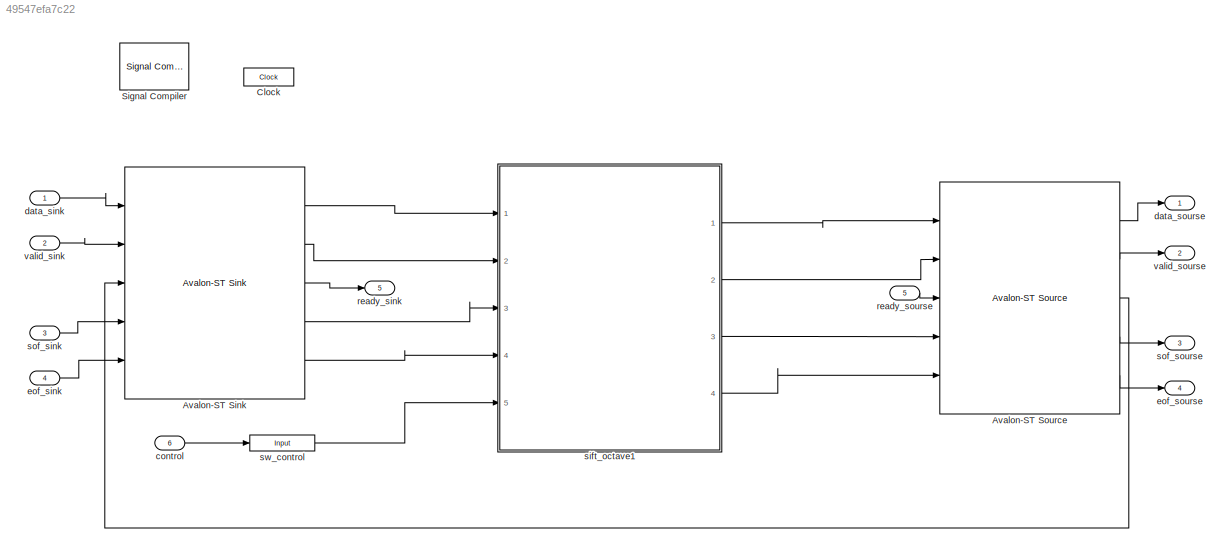
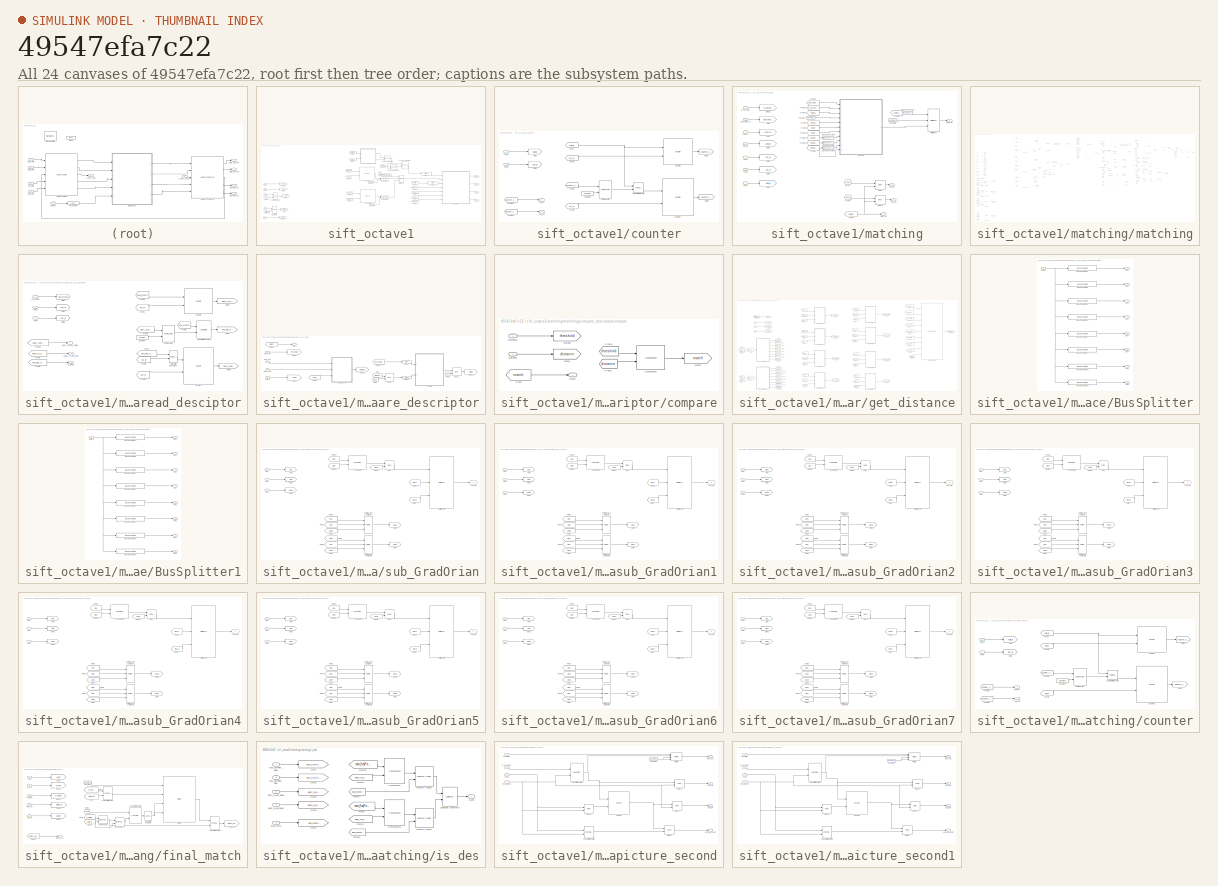
[diagram: thumbnail index - all 24 canvases of the model, root first then tree order]
MODEL slx_49547efa7c22
KIND model
CONFIG AbsTol = auto
CONFIG FixedStep = auto
CONFIG InitFcn = %% DSPBuilder Start\nalt_dspbuilder_update_model(bdroot)\n%% DSPBuilder End\n
CONFIG MaxStep = auto
CONFIG MinStep = auto
CONFIG RelTol = 1e-3
CONFIG SampleTimeConstraint = Unconstrained
CONFIG Solver = ode45
CONFIG SolverMode = Auto
CONFIG SolverName = ode45
CONFIG StartTime = 0.0
CONFIG StopTime = 10.0
BLOCK [Reference] Avalon-ST Sink  REF=allblocks_alteradspbuilder2/Avalon-ST Sink
  BusType = Unsigned Integer
  PORTTYPE = Output
  Ports = [5, 5]
  SourceBlock = allblocks_alteradspbuilder2/Avalon-ST Sink
  SourceType = Avalon-ST Sink AlteraBlockset
  SpecifyClock = off
  bwl = 24
  bwr = 0
  empty = off
  endOfPacket = on
  externalType = Inferred
  iofile = <userpath>\Desktop\final_sift_fpga\tb_matching\matching_Avalon-ST+Sink_data.salt,<userpath>\Desktop\final_sift_fpga\tb_matching\matching_Avalon-ST+Sink_valid.salt,<userpath>\Desktop\final_sift_fpga\tb_matching\matching_Avalon-ST+Sink_ready.capture,<userpath>\Desktop\final_sift_fpga\tb_matching\matching_Avalon-ST+Sink_startofpacket.salt,<userpath>\Desktop\final_sift_fpga\tb_matching\matching_Avalon...<+26ch>
  numOfChannels = 0
  numOfErrorDescriptors = 0
  readyLatency = 1
  startOfPacket = on
  symbolWidth = 8
  symbolsPerBeat = 3
BLOCK [Reference] Avalon-ST Source  REF=allblocks_alteradspbuilder2/Avalon-ST Source
  BusType = Unsigned Integer
  PORTTYPE = Input
  Ports = [5, 5]
  SourceBlock = allblocks_alteradspbuilder2/Avalon-ST Source
  SourceType = Avalon-ST Source AlteraBlockset
  SpecifyClock = off
  bwl = 24
  bwr = 0
  empty = off
  endOfPacket = on
  externalType = Inferred
  iofile = <userpath>\Desktop\final_sift_fpga\tb_matching\matching_Avalon-ST+Source_data.capture,<userpath>\Desktop\final_sift_fpga\tb_matching\matching_Avalon-ST+Source_valid.capture,<userpath>\Desktop\final_sift_fpga\tb_matching\matching_Avalon-ST+Source_ready.salt,<userpath>\Desktop\final_sift_fpga\tb_matching\matching_Avalon-ST+Source_startofpacket.capture,<userpath>\Desktop\final_sift_fpga\tb_matching\m...<+45ch>
  numOfChannels = 0
  numOfErrorDescriptors = 0
  readyLatency = 1
  startOfPacket = on
  symbolWidth = 8
  symbolsPerBeat = 3
BLOCK [Reference] Clock  REF=allblocks_alteradspbuilder2/Clock
  ClockPeriod = 10/1.5
  ClockPeriodUnit = ns
  Export = off
  PhaseOffset = 0
  Ports = []
  Reset = aclr
  ResetLatency = 0
  ResetRegisterCascadeDepth = 0
  ResetType = Active Low
  SampleTime = 1
  SimulationStartCycle = 5
  SourceBlock = allblocks_alteradspbuilder2/Clock
  SourceType = BaseClock AlteraBlockset
BLOCK [Reference] Signal Compiler  REF=allblocks_alteradspbuilder2/Signal Compiler
  DeviceFamily = Cyclone IV GX
  DeviceName = AUTO
  DisableEarlyHDLGeneration = off
  EnableSignalTap = off
  ExportDir = <path>\quartus\dsp_builder
  MAX10_ProgrammingMode = Internal Flash (SDM) Single Boot
  Ports = []
  SignalTapDepth = 128
  SourceBlock = allblocks_alteradspbuilder2/Signal Compiler
  SourceType = Signal Compiler AlteraBlockset
  StpClock = Clock
  StpUseDefaultClock = on
  UseBoardBlock = off
BLOCK [Inport] control
  IconDisplay = Port number
  Port = 6
BLOCK [Inport] data_sink
  IconDisplay = Port number
BLOCK [Outport] data_sourse
  IconDisplay = Port number
BLOCK [Inport] eof_sink
  IconDisplay = Port number
  Port = 4
BLOCK [Outport] eof_sourse
  IconDisplay = Port number
  Port = 4
BLOCK [Outport] ready_sink
  IconDisplay = Port number
  Port = 5
BLOCK [Inport] ready_sourse
  IconDisplay = Port number
  Port = 5
BLOCK [SubSystem] sift_octave1
  Ports = [5, 4]
  RequestExecContextInheritance = off
BLOCK [Reference] sift_octave1/AltBus1  REF=allblocks_alteradspbuilder2/AltBus
  BusType = Unsigned Integer
  Ports = [1, 1]
  SourceBlock = allblocks_alteradspbuilder2/AltBus
  SourceType = AltBus AlteraBlockset
  bwl = 148
  bwr = 0
  floatingPointInput = on
  floatingPointOutput = on
  logFile = <userpath>\Desktop\final_sift_fpga\tb_matching\matching_sift%5Foctave1_AltBus1.fixedpointlog
  logOutputs = off
  saturate = off
BLOCK [Reference] sift_octave1/AltBus5  REF=allblocks_alteradspbuilder2/AltBus
  BusType = Unsigned Integer
  Ports = [1, 1]
  SourceBlock = allblocks_alteradspbuilder2/AltBus
  SourceType = AltBus AlteraBlockset
  bwl = 18
  bwr = 0
  floatingPointInput = on
  floatingPointOutput = on
  logFile = <userpath>\Desktop\final_sift_fpga\tb_matching\matching_sift%5Foctave1_AltBus5.fixedpointlog
  logOutputs = off
  saturate = off
BLOCK [Reference] sift_octave1/Bus Concatenation  REF=allblocks_alteradspbuilder2/Bus Concatenation
  Ports = [2, 1]
  SourceBlock = allblocks_alteradspbuilder2/Bus Concatenation
  SourceType = Bus Concatenate AlteraBlockset
  awidth = 10
  bwidth = 10
  isSigned = off
  pipeline_display = 0
BLOCK [Reference] sift_octave1/Bus Concatenation1  REF=allblocks_alteradspbuilder2/Bus Concatenation
  Ports = [2, 1]
  SourceBlock = allblocks_alteradspbuilder2/Bus Concatenation
  SourceType = Bus Concatenate AlteraBlockset
  awidth = 108
  bwidth = 20
  isSigned = off
  pipeline_display = 0
BLOCK [Reference] sift_octave1/Bus Concatenation2  REF=allblocks_alteradspbuilder2/Bus Concatenation
  Ports = [2, 1]
  SourceBlock = allblocks_alteradspbuilder2/Bus Concatenation
  SourceType = Bus Concatenate AlteraBlockset
  awidth = 20
  bwidth = 128
  isSigned = off
  pipeline_display = 0
BLOCK [Reference] sift_octave1/Bus Conversion  REF=allblocks_alteradspbuilder2/Bus Conversion
  BusType = Unsigned Integer
  Ports = [1, 1]
  SourceBlock = allblocks_alteradspbuilder2/Bus Conversion
  SourceType = Bus Conversion AlteraBlockset
  bitToConnectToOutputLSB = 17
  bwl = 1
  bwr = 1
  ibwl = 18
  ibwr = 1
  pipeline_display = 0
  round = off
  saturate = off
BLOCK [Reference] sift_octave1/Comparator  REF=allblocks_alteradspbuilder2/Comparator
  Ports = [2, 1]
  SourceBlock = allblocks_alteradspbuilder2/Comparator
  SourceType = Comparator AlteraBlockset
  allowFloatingPointOverride = on
  direction = a == b
  logFile = <userpath>\Desktop\final_sift_fpga\tb_matching\matching_sift%5Foctave1_Comparator.fixedpointlog
  logOutputs = off
  pipeline_display = 0
BLOCK [Reference] sift_octave1/Comparator1  REF=allblocks_alteradspbuilder2/Comparator
  Ports = [2, 1]
  SourceBlock = allblocks_alteradspbuilder2/Comparator
  SourceType = Comparator AlteraBlockset
  allowFloatingPointOverride = on
  direction = a == b
  logFile = <userpath>\Desktop\final_sift_fpga\tb_matching\matching_sift%5Foctave1_Comparator1.fixedpointlog
  logOutputs = off
  pipeline_display = 0
BLOCK [Reference] sift_octave1/Constant  REF=allblocks_alteradspbuilder2/Constant
  BusType = Unsigned Integer
  Ports = [0, 1]
  SourceBlock = allblocks_alteradspbuilder2/Constant
  SourceType = Constant AlteraBlockset
  SpecifyClock = off
  allowFloatingPointOverride = on
  bwl = 20
  bwr = 0
  logFile = <userpath>\Desktop\final_sift_fpga\tb_matching\matching_sift%5Foctave1_Constant.fixedpointlog
  logOutputs = off
  mask_cst = 5999
  roundMode = Truncate
  satMode = Wrap
BLOCK [Reference] sift_octave1/Constant1  REF=allblocks_alteradspbuilder2/Constant
  BusType = Unsigned Integer
  Ports = [0, 1]
  SourceBlock = allblocks_alteradspbuilder2/Constant
  SourceType = Constant AlteraBlockset
  SpecifyClock = off
  allowFloatingPointOverride = on
  bwl = 108
  bwr = 0
  logFile = <userpath>\Desktop\final_sift_fpga\tb_matching\matching_sift%5Foctave1_Constant1.fixedpointlog
  logOutputs = off
  mask_cst = 0
  roundMode = Truncate
  satMode = Wrap
BLOCK [Reference] sift_octave1/Constant2  REF=allblocks_alteradspbuilder2/Constant
  BusType = Unsigned Integer
  Ports = [0, 1]
  SourceBlock = allblocks_alteradspbuilder2/Constant
  SourceType = Constant AlteraBlockset
  SpecifyClock = off
  allowFloatingPointOverride = on
  bwl = 20
  bwr = 0
  logFile = <userpath>\Desktop\final_sift_fpga\tb_matching\matching_sift%5Foctave1_Constant2.fixedpointlog
  logOutputs = off
  mask_cst = 4999
  roundMode = Truncate
  satMode = Wrap
BLOCK [Reference] sift_octave1/Counter  REF=allblocks_alteradspbuilder2/Counter
  BusType = Unsigned Integer
  Ports = [2, 1]
  SourceBlock = allblocks_alteradspbuilder2/Counter
  SourceType = Counter AlteraBlockset
  SpecifyClock = off
  bwl = 20
  bwr = 0
  direction = Increment
  modulo = 6000
  pipeline_display = 1
  svalue = 1
  use_clk_ena = off
  use_ena = on
  use_modulo = on
  use_sclr = on
  use_sload = off
  use_sset = off
BLOCK [Reference] sift_octave1/Counter1  REF=allblocks_alteradspbuilder2/Counter
  BusType = Unsigned Integer
  Ports = [2, 1]
  SourceBlock = allblocks_alteradspbuilder2/Counter
  SourceType = Counter AlteraBlockset
  SpecifyClock = off
  bwl = 20
  bwr = 0
  direction = Increment
  modulo = 5000
  pipeline_display = 1
  svalue = 1
  use_clk_ena = off
  use_ena = on
  use_modulo = on
  use_sclr = on
  use_sload = off
  use_sset = off
BLOCK [From] sift_octave1/From
  GotoTag = valid_in
BLOCK [From] sift_octave1/From1
  GotoTag = eof_in
BLOCK [From] sift_octave1/From12
  GotoTag = valid_in
BLOCK [From] sift_octave1/From18
  GotoTag = pixel_in
BLOCK [From] sift_octave1/From19
  GotoTag = eof_in
BLOCK [From] sift_octave1/From2
  GotoTag = valid_in
BLOCK [From] sift_octave1/From20
  GotoTag = sof_in
BLOCK [From] sift_octave1/From21
  GotoTag = control
BLOCK [From] sift_octave1/From3
  GotoTag = eof_in
BLOCK [From] sift_octave1/From4
  GotoTag = control
BLOCK [From] sift_octave1/From5
  GotoTag = valid_in
BLOCK [From] sift_octave1/From6
  GotoTag = valid_in
BLOCK [From] sift_octave1/From7
  GotoTag = valid_in
BLOCK [From] sift_octave1/From8
  GotoTag = eof_in
BLOCK [Goto] sift_octave1/Goto1
  GotoTag = pixel_in
BLOCK [Goto] sift_octave1/Goto11
  GotoTag = control
BLOCK [Goto] sift_octave1/Goto2
  GotoTag = valid_in
BLOCK [Goto] sift_octave1/Goto6
  GotoTag = sof_in
BLOCK [Goto] sift_octave1/Goto7
  GotoTag = eof_in
BLOCK [Reference] sift_octave1/Logical Bit Operator  REF=allblocks_alteradspbuilder2/Logical Bit Operator
  LogicalOperator = AND
  Ports = [2, 1]
  SourceBlock = allblocks_alteradspbuilder2/Logical Bit Operator
  SourceType = Logical Bit Operator AlteraBlockset
  pipeline_display = 0
  user_inputs = 2
BLOCK [Reference] sift_octave1/Logical Bit Operator1  REF=allblocks_alteradspbuilder2/Logical Bit Operator
  LogicalOperator = AND
  Ports = [2, 1]
  SourceBlock = allblocks_alteradspbuilder2/Logical Bit Operator
  SourceType = Logical Bit Operator AlteraBlockset
  pipeline_display = 0
  user_inputs = 2
BLOCK [Reference] sift_octave1/Multiplexer  REF=allblocks_alteradspbuilder2/Multiplexer
  Ports = [3, 1]
  SourceBlock = allblocks_alteradspbuilder2/Multiplexer
  SourceType = Multiplexer AlteraBlockset
  allowFloatingPointOverride = on
  logFile = <userpath>\Desktop\final_sift_fpga\tb_matching\matching_sift%5Foctave1_Multiplexer.fixedpointlog
  logOutputs = off
  numInputs = 2
  oneHot = off
  pipeline = 0
  pipeline_display = 0
  use_aclr = off
  use_ena = off
BLOCK [Inport] sift_octave1/control
  IconDisplay = Port number
  Port = 5
BLOCK [SubSystem] sift_octave1/counter
  Ports = [2, 2]
  RequestExecContextInheritance = off
BLOCK [Reference] sift_octave1/counter/Comparator  REF=allblocks_alteradspbuilder2/Comparator
  Ports = [2, 1]
  SourceBlock = allblocks_alteradspbuilder2/Comparator
  SourceType = Comparator AlteraBlockset
  allowFloatingPointOverride = on
  direction = a == b
  logFile = <userpath>\Desktop\PCIE_Display\custom_IP\tb_SIFT\SIFT_sift%5Foctave1_counter_Comparator.fixedpointlog
  logOutputs = off
  pipeline_display = 0
BLOCK [Reference] sift_octave1/counter/Constant  REF=allblocks_alteradspbuilder2/Constant
  BusType = Unsigned Integer
  Ports = [0, 1]
  SourceBlock = allblocks_alteradspbuilder2/Constant
  SourceType = Constant AlteraBlockset
  SpecifyClock = off
  allowFloatingPointOverride = on
  bwl = 10
  bwr = 0
  logFile = <userpath>\Desktop\PCIE_Display\custom_IP\tb_SIFT\SIFT_sift%5Foctave1_counter_Constant.fixedpointlog
  logOutputs = off
  mask_cst = 639
  roundMode = Truncate
  satMode = Wrap
BLOCK [Reference] sift_octave1/counter/Counter  REF=allblocks_alteradspbuilder2/Counter
  BusType = Unsigned Integer
  Ports = [2, 1]
  SourceBlock = allblocks_alteradspbuilder2/Counter
  SourceType = Counter AlteraBlockset
  SpecifyClock = off
  bwl = 10
  bwr = 0
  direction = Increment
  modulo = 640
  pipeline_display = 1
  svalue = 1
  use_clk_ena = off
  use_ena = on
  use_modulo = on
  use_sclr = on
  use_sload = off
  use_sset = off
BLOCK [Reference] sift_octave1/counter/Counter1  REF=allblocks_alteradspbuilder2/Counter
  BusType = Unsigned Integer
  Ports = [2, 1]
  SourceBlock = allblocks_alteradspbuilder2/Counter
  SourceType = Counter AlteraBlockset
  SpecifyClock = off
  bwl = 10
  bwr = 0
  direction = Increment
  modulo = 480
  pipeline_display = 1
  svalue = 0
  use_clk_ena = off
  use_ena = on
  use_modulo = on
  use_sclr = on
  use_sload = off
  use_sset = off
BLOCK [From] sift_octave1/counter/From
  GotoTag = valid_in
BLOCK [From] sift_octave1/counter/From1
  GotoTag = eof_in
BLOCK [From] sift_octave1/counter/From12
  GotoTag = counter_col
BLOCK [From] sift_octave1/counter/From13
  GotoTag = counter_row
BLOCK [From] sift_octave1/counter/From3
  GotoTag = eof_in
BLOCK [From] sift_octave1/counter/From4
  GotoTag = counter_col
BLOCK [Goto] sift_octave1/counter/Goto
  GotoTag = valid_in
BLOCK [Goto] sift_octave1/counter/Goto1
  GotoTag = eof_in
BLOCK [Goto] sift_octave1/counter/Goto3
  GotoTag = counter_col
BLOCK [Goto] sift_octave1/counter/Goto4
  GotoTag = counter_row
BLOCK [Reference] sift_octave1/counter/Logical Bit Operator  REF=allblocks_alteradspbuilder2/Logical Bit Operator
  LogicalOperator = AND
  Ports = [2, 1]
  SourceBlock = allblocks_alteradspbuilder2/Logical Bit Operator
  SourceType = Logical Bit Operator AlteraBlockset
  pipeline_display = 0
  user_inputs = 2
BLOCK [Outport] sift_octave1/counter/col_out
  IconDisplay = Port number
BLOCK [Inport] sift_octave1/counter/eof_in
  IconDisplay = Port number
  Port = 2
BLOCK [Outport] sift_octave1/counter/row_out
  IconDisplay = Port number
  Port = 2
BLOCK [Inport] sift_octave1/counter/valid_in
  IconDisplay = Port number
BLOCK [Inport] sift_octave1/eof_in
  IconDisplay = Port number
  Port = 4
BLOCK [Outport] sift_octave1/eof_out
  IconDisplay = Port number
  Port = 4
BLOCK [SubSystem] sift_octave1/matching
  Ports = [7, 4]
  RequestExecContextInheritance = off
BLOCK [Reference] sift_octave1/matching/Bus Conversion1  REF=allblocks_alteradspbuilder2/Bus Conversion
  BusType = Unsigned Integer
  Ports = [1, 1]
  SourceBlock = allblocks_alteradspbuilder2/Bus Conversion
  SourceType = Bus Conversion AlteraBlockset
  bitToConnectToOutputLSB = 16
  bwl = 1
  bwr = 1
  ibwl = 18
  ibwr = 1
  pipeline_display = 0
  round = off
  saturate = off
BLOCK [Reference] sift_octave1/matching/Bus Conversion2  REF=allblocks_alteradspbuilder2/Bus Conversion
  BusType = Unsigned Integer
  Ports = [1, 1]
  SourceBlock = allblocks_alteradspbuilder2/Bus Conversion
  SourceType = Bus Conversion AlteraBlockset
  bitToConnectToOutputLSB = 15
  bwl = 1
  bwr = 1
  ibwl = 18
  ibwr = 1
  pipeline_display = 0
  round = off
  saturate = off
BLOCK [Reference] sift_octave1/matching/Bus Conversion3  REF=allblocks_alteradspbuilder2/Bus Conversion
  BusType = Unsigned Integer
  Ports = [1, 1]
  SourceBlock = allblocks_alteradspbuilder2/Bus Conversion
  SourceType = Bus Conversion AlteraBlockset
  bitToConnectToOutputLSB = 3
  bwl = 1
  bwr = 1
  ibwl = 18
  ibwr = 1
  pipeline_display = 0
  round = off
  saturate = off
BLOCK [Reference] sift_octave1/matching/Bus Conversion5  REF=allblocks_alteradspbuilder2/Bus Conversion
  BusType = Unsigned Integer
  Ports = [1, 1]
  SourceBlock = allblocks_alteradspbuilder2/Bus Conversion
  SourceType = Bus Conversion AlteraBlockset
  bitToConnectToOutputLSB = 17
  bwl = 1
  bwr = 1
  ibwl = 18
  ibwr = 1
  pipeline_display = 0
  round = off
  saturate = off
BLOCK [Reference] sift_octave1/matching/Constant  REF=allblocks_alteradspbuilder2/Constant
  BusType = Unsigned Integer
  Ports = [0, 1]
  SourceBlock = allblocks_alteradspbuilder2/Constant
  SourceType = Constant AlteraBlockset
  SpecifyClock = off
  allowFloatingPointOverride = on
  bwl = 16
  bwr = 0
  logFile = <userpath>\Desktop\final_sift_fpga\tb_matching\matching_sift%5Foctave1_matching_Constant.fixedpointlog
  logOutputs = off
  mask_cst = 1
  roundMode = Truncate
  satMode = Wrap
BLOCK [Reference] sift_octave1/matching/Constant2  REF=allblocks_alteradspbuilder2/Constant
  BusType = Unsigned Integer
  Ports = [0, 1]
  SourceBlock = allblocks_alteradspbuilder2/Constant
  SourceType = Constant AlteraBlockset
  SpecifyClock = off
  allowFloatingPointOverride = on
  bwl = 24
  bwr = 0
  logFile = <userpath>\Desktop\final_sift_fpga\tb_matching\matching_sift%5Foctave1_matching_Constant2.fixedpointlog
  logOutputs = off
  mask_cst = 16711680
  roundMode = Truncate
  satMode = Wrap
BLOCK [Reference] sift_octave1/matching/Delay  REF=allblocks_alteradspbuilder2/Delay
  ClockPhase = 1
  Ports = [2, 1]
  SourceBlock = allblocks_alteradspbuilder2/Delay
  SourceType = Delay AlteraBlockset
  allowFloatingPointOverride = on
  logFile = <userpath>\Desktop\final_sift_fpga\tb_matching\matching_sift%5Foctave1_matching_Delay.fixedpointlog
  logOutputs = off
  pipeline = 4
  pipeline_display = 4
  reset_value = 1
  use_ena = on
  use_init = off
  use_sclr = off
BLOCK [Reference] sift_octave1/matching/Delay1  REF=allblocks_alteradspbuilder2/Delay
  ClockPhase = 1
  Ports = [2, 1]
  SourceBlock = allblocks_alteradspbuilder2/Delay
  SourceType = Delay AlteraBlockset
  allowFloatingPointOverride = on
  logFile = <userpath>\Desktop\final_sift_fpga\tb_matching\matching_sift%5Foctave1_matching_Delay1.fixedpointlog
  logOutputs = off
  pipeline = 4
  pipeline_display = 4
  reset_value = 1
  use_ena = on
  use_init = off
  use_sclr = off
BLOCK [From] sift_octave1/matching/From
  GotoTag = sof_in
BLOCK [From] sift_octave1/matching/From1
  GotoTag = control
BLOCK [From] sift_octave1/matching/From2
  GotoTag = pixel_in
BLOCK [From] sift_octave1/matching/From20
  GotoTag = eof_in
BLOCK [From] sift_octave1/matching/From21
  GotoTag = descriptor_in
BLOCK [From] sift_octave1/matching/From28
  GotoTag = control
BLOCK [From] sift_octave1/matching/From3
  GotoTag = sof_in
BLOCK [From] sift_octave1/matching/From34
  GotoTag = is_KeyPoint
BLOCK [From] sift_octave1/matching/From38
  GotoTag = valid_in
BLOCK [From] sift_octave1/matching/From39
  GotoTag = control
BLOCK [From] sift_octave1/matching/From4
  GotoTag = eof_in
BLOCK [From] sift_octave1/matching/From5
  GotoTag = valid_in
BLOCK [From] sift_octave1/matching/From6
  GotoTag = control
BLOCK [Goto] sift_octave1/matching/Goto
  GotoTag = descriptor_in
BLOCK [Goto] sift_octave1/matching/Goto1
  GotoTag = control
BLOCK [Goto] sift_octave1/matching/Goto2
  GotoTag = eof_in
BLOCK [Goto] sift_octave1/matching/Goto22
  GotoTag = is_KeyPoint
BLOCK [Goto] sift_octave1/matching/Goto3
  GotoTag = sof_in
BLOCK [Goto] sift_octave1/matching/Goto4
  GotoTag = valid_in
BLOCK [Goto] sift_octave1/matching/Goto6
  GotoTag = pixel_in
BLOCK [Reference] sift_octave1/matching/Multiplexer  REF=allblocks_alteradspbuilder2/Multiplexer
  Ports = [3, 1]
  SourceBlock = allblocks_alteradspbuilder2/Multiplexer
  SourceType = Multiplexer AlteraBlockset
  allowFloatingPointOverride = on
  logFile = <userpath>\Desktop\final_sift_fpga\tb_matching\matching_sift%5Foctave1_matching_Multiplexer.fixedpointlog
  logOutputs = off
  numInputs = 2
  oneHot = off
  pipeline = 0
  pipeline_display = 0
  use_aclr = off
  use_ena = off
BLOCK [Inport] sift_octave1/matching/control
  IconDisplay = Port number
  Port = 3
BLOCK [Inport] sift_octave1/matching/descriptor_in
  IconDisplay = Port number
BLOCK [Inport] sift_octave1/matching/eof_in
  IconDisplay = Port number
  Port = 5
BLOCK [Outport] sift_octave1/matching/eof_out
  IconDisplay = Port number
  Port = 3
BLOCK [Inport] sift_octave1/matching/is_KeyPoint
  IconDisplay = Port number
  Port = 2
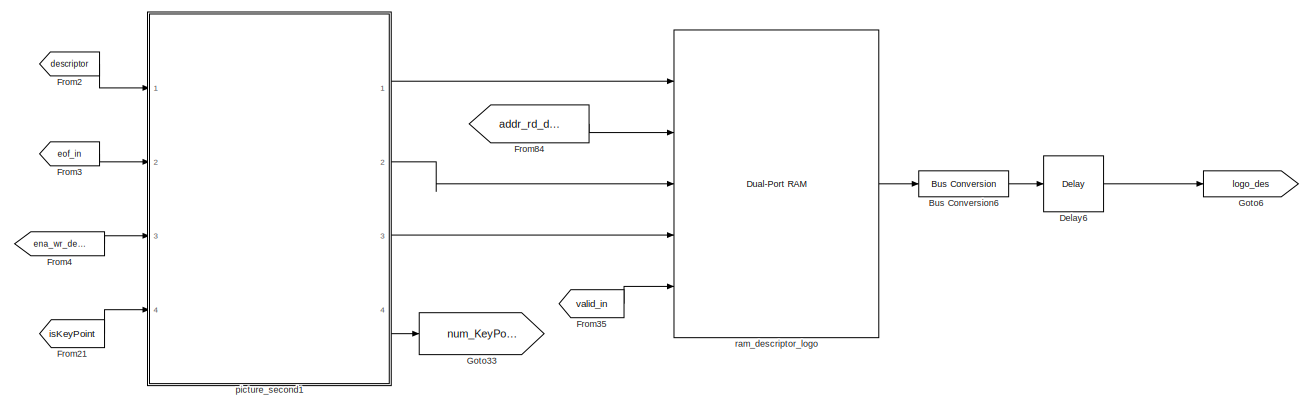
[diagram: sift_octave1/matching/matching - part 1/8, top left region]
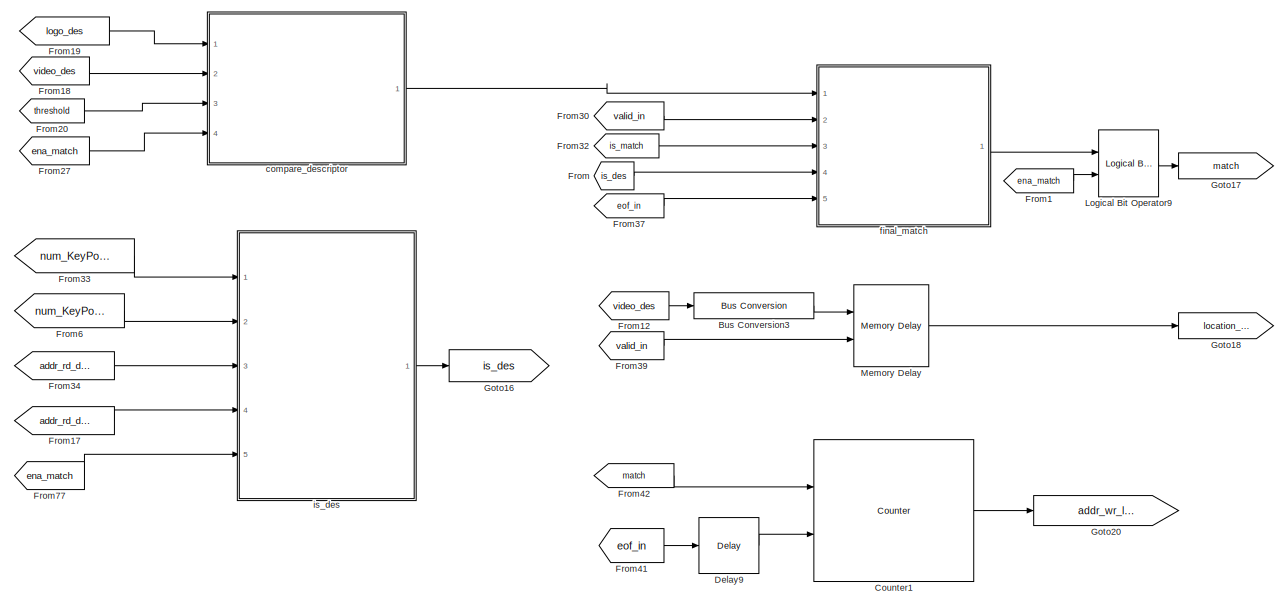
[diagram: sift_octave1/matching/matching - part 2/8, top center region]
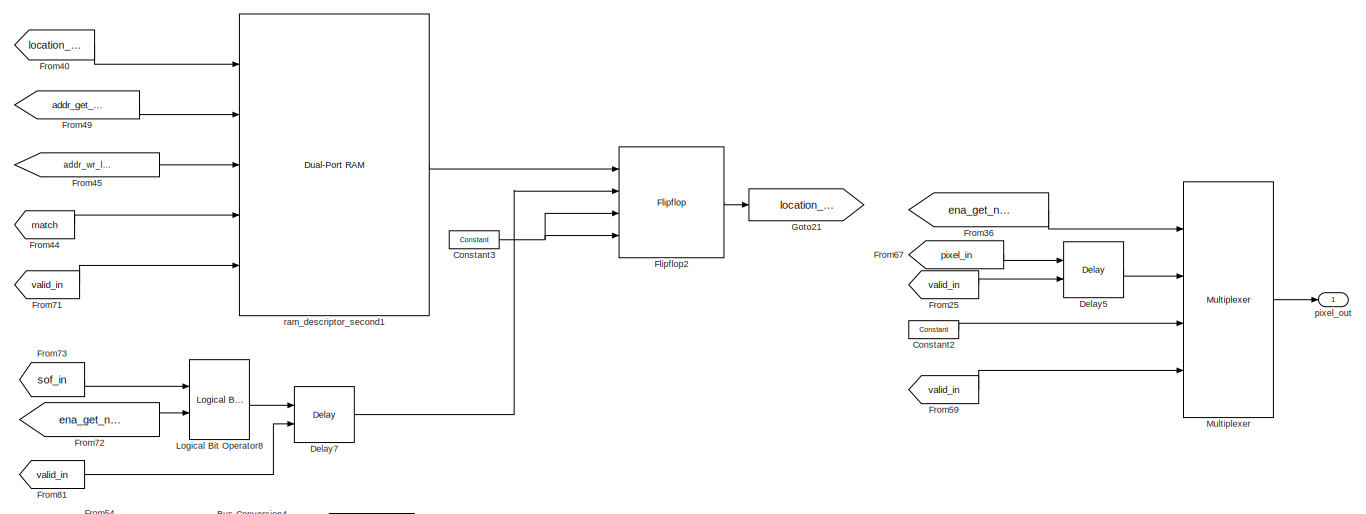
[diagram: sift_octave1/matching/matching - part 3/8, top right region]
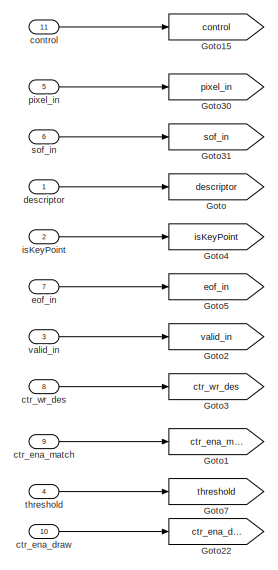
[diagram: sift_octave1/matching/matching - part 4/8, middle left region]
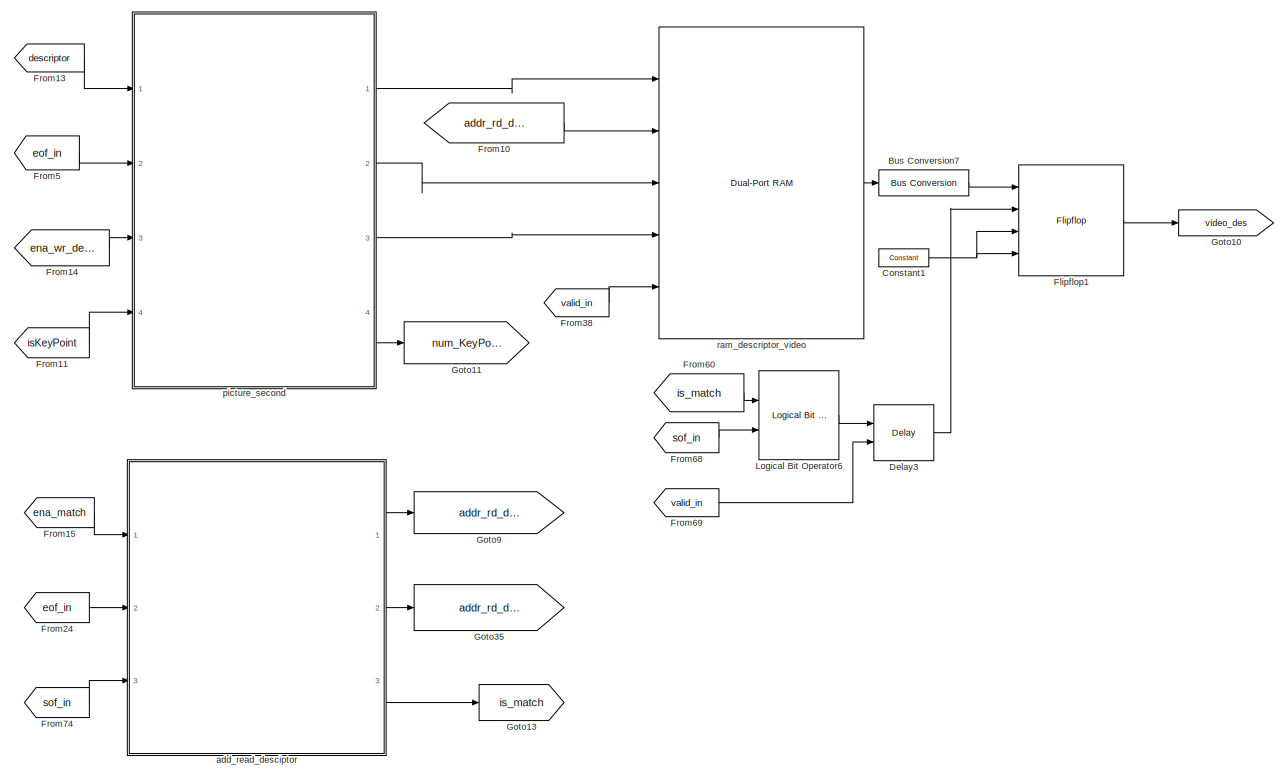
[diagram: sift_octave1/matching/matching - part 5/8, middle left region]
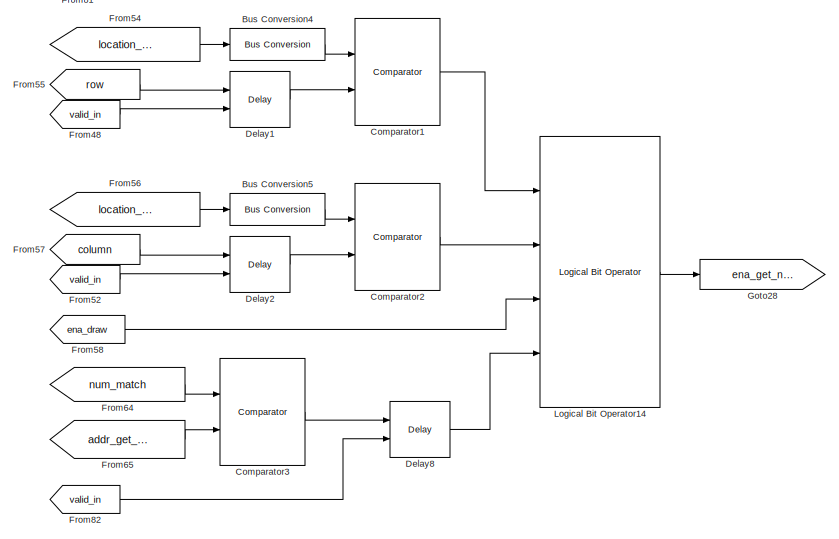
[diagram: sift_octave1/matching/matching - part 6/8, middle right region]
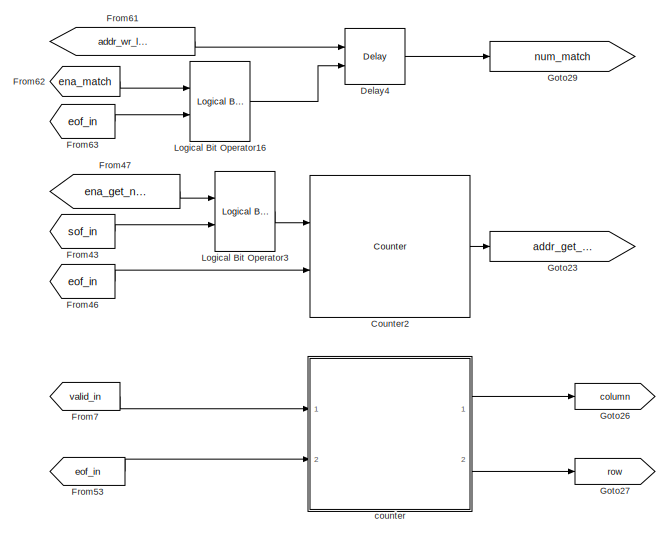
[diagram: sift_octave1/matching/matching - part 7/8, central region]
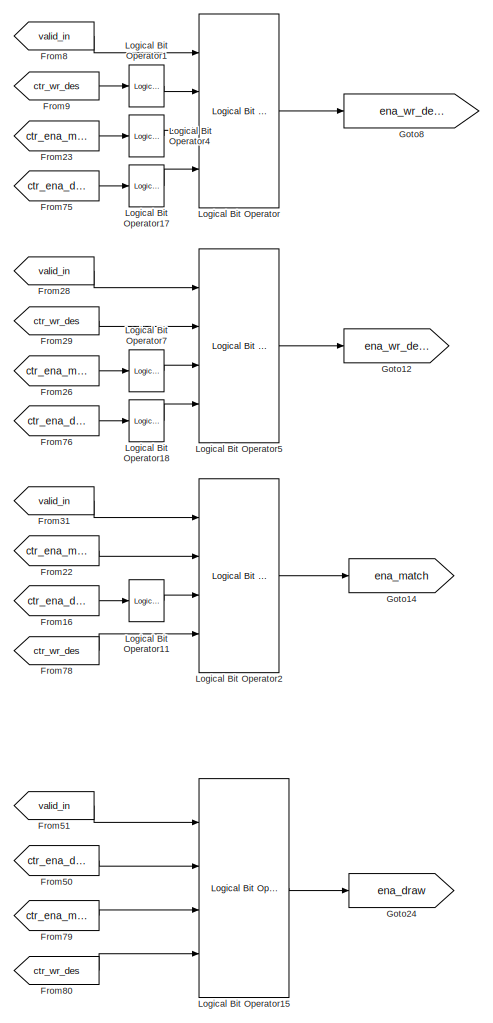
[diagram: sift_octave1/matching/matching - part 8/8, bottom left region]
BLOCK [SubSystem] sift_octave1/matching/matching
  Ports = [11, 1]
  RequestExecContextInheritance = off
BLOCK [Reference] sift_octave1/matching/matching/Bus Conversion3  REF=allblocks_alteradspbuilder2/Bus Conversion
  BusType = Unsigned Integer
  Ports = [1, 1]
  SourceBlock = allblocks_alteradspbuilder2/Bus Conversion
  SourceType = Bus Conversion AlteraBlockset
  bitToConnectToOutputLSB = 128
  bwl = 20
  bwr = 1
  ibwl = 148
  ibwr = 1
  pipeline_display = 0
  round = off
  saturate = off
BLOCK [Reference] sift_octave1/matching/matching/Bus Conversion4  REF=allblocks_alteradspbuilder2/Bus Conversion
  BusType = Unsigned Integer
  Ports = [1, 1]
  SourceBlock = allblocks_alteradspbuilder2/Bus Conversion
  SourceType = Bus Conversion AlteraBlockset
  bitToConnectToOutputLSB = 0
  bwl = 10
  bwr = 1
  ibwl = 20
  ibwr = 1
  pipeline_display = 0
  round = off
  saturate = off
BLOCK [Reference] sift_octave1/matching/matching/Bus Conversion5  REF=allblocks_alteradspbuilder2/Bus Conversion
  BusType = Unsigned Integer
  Ports = [1, 1]
  SourceBlock = allblocks_alteradspbuilder2/Bus Conversion
  SourceType = Bus Conversion AlteraBlockset
  bitToConnectToOutputLSB = 10
  bwl = 10
  bwr = 1
  ibwl = 20
  ibwr = 1
  pipeline_display = 0
  round = off
  saturate = off
BLOCK [Reference] sift_octave1/matching/matching/Bus Conversion6  REF=allblocks_alteradspbuilder2/Bus Conversion
  BusType = Unsigned Integer
  Ports = [1, 1]
  SourceBlock = allblocks_alteradspbuilder2/Bus Conversion
  SourceType = Bus Conversion AlteraBlockset
  bitToConnectToOutputLSB = 0
  bwl = 128
  bwr = 1
  ibwl = 148
  ibwr = 1
  pipeline_display = 0
  round = off
  saturate = off
BLOCK [Reference] sift_octave1/matching/matching/Bus Conversion7  REF=allblocks_alteradspbuilder2/Bus Conversion
  BusType = Unsigned Integer
  Ports = [1, 1]
  SourceBlock = allblocks_alteradspbuilder2/Bus Conversion
  SourceType = Bus Conversion AlteraBlockset
  bitToConnectToOutputLSB = 0
  bwl = 128
  bwr = 1
  ibwl = 148
  ibwr = 1
  pipeline_display = 0
  round = off
  saturate = off
BLOCK [Reference] sift_octave1/matching/matching/Comparator1  REF=allblocks_alteradspbuilder2/Comparator
  Ports = [2, 1]
  SourceBlock = allblocks_alteradspbuilder2/Comparator
  SourceType = Comparator AlteraBlockset
  allowFloatingPointOverride = on
  direction = a == b
  logFile = <userpath>\Desktop\final_sift_fpga\tb_matching\matching_sift%5Foctave1_matching_matching_Comparator1.fixedpointlog
  logOutputs = off
  pipeline_display = 0
BLOCK [Reference] sift_octave1/matching/matching/Comparator2  REF=allblocks_alteradspbuilder2/Comparator
  Ports = [2, 1]
  SourceBlock = allblocks_alteradspbuilder2/Comparator
  SourceType = Comparator AlteraBlockset
  allowFloatingPointOverride = on
  direction = a == b
  logFile = <userpath>\Desktop\final_sift_fpga\tb_matching\matching_sift%5Foctave1_matching_matching_Comparator2.fixedpointlog
  logOutputs = off
  pipeline_display = 0
BLOCK [Reference] sift_octave1/matching/matching/Comparator3  REF=allblocks_alteradspbuilder2/Comparator
  Ports = [2, 1]
  SourceBlock = allblocks_alteradspbuilder2/Comparator
  SourceType = Comparator AlteraBlockset
  allowFloatingPointOverride = on
  direction = a >= b
  logFile = <userpath>\Desktop\final_sift_fpga\tb_matching\matching_sift%5Foctave1_matching_matching_Comparator3.fixedpointlog
  logOutputs = off
  pipeline_display = 0
BLOCK [Reference] sift_octave1/matching/matching/Constant1  REF=allblocks_alteradspbuilder2/Constant
  BusType = Single Bit
  Ports = [0, 1]
  SourceBlock = allblocks_alteradspbuilder2/Constant
  SourceType = Constant AlteraBlockset
  SpecifyClock = off
  allowFloatingPointOverride = on
  bwl = 24
  bwr = 0
  logFile = <userpath>\Desktop\final_sift_fpga\tb_matching\matching_sift%5Foctave1_matching_matching_Constant1.fixedpointlog
  logOutputs = off
  mask_cst = 1
  roundMode = Truncate
  satMode = Wrap
BLOCK [Reference] sift_octave1/matching/matching/Constant2  REF=allblocks_alteradspbuilder2/Constant
  BusType = Unsigned Integer
  Ports = [0, 1]
  SourceBlock = allblocks_alteradspbuilder2/Constant
  SourceType = Constant AlteraBlockset
  SpecifyClock = off
  allowFloatingPointOverride = on
  bwl = 24
  bwr = 0
  logFile = <userpath>\Desktop\final_sift_fpga\tb_matching\matching_sift%5Foctave1_matching_matching_Constant2.fixedpointlog
  logOutputs = off
  mask_cst = 16711680
  roundMode = Truncate
  satMode = Wrap
BLOCK [Reference] sift_octave1/matching/matching/Constant3  REF=allblocks_alteradspbuilder2/Constant
  BusType = Single Bit
  Ports = [0, 1]
  SourceBlock = allblocks_alteradspbuilder2/Constant
  SourceType = Constant AlteraBlockset
  SpecifyClock = off
  allowFloatingPointOverride = on
  bwl = 24
  bwr = 0
  logFile = <userpath>\Desktop\final_sift_fpga\tb_matching\matching_sift%5Foctave1_matching_matching_Constant3.fixedpointlog
  logOutputs = off
  mask_cst = 1
  roundMode = Truncate
  satMode = Wrap
BLOCK [Reference] sift_octave1/matching/matching/Counter1  REF=allblocks_alteradspbuilder2/Counter
  BusType = Unsigned Integer
  Ports = [2, 1]
  SourceBlock = allblocks_alteradspbuilder2/Counter
  SourceType = Counter AlteraBlockset
  SpecifyClock = off
  bwl = 8
  bwr = 0
  direction = Increment
  modulo = 200
  pipeline_display = 1
  svalue = 1
  use_clk_ena = off
  use_ena = on
  use_modulo = on
  use_sclr = on
  use_sload = off
  use_sset = off
BLOCK [Reference] sift_octave1/matching/matching/Counter2  REF=allblocks_alteradspbuilder2/Counter
  BusType = Unsigned Integer
  Ports = [2, 1]
  SourceBlock = allblocks_alteradspbuilder2/Counter
  SourceType = Counter AlteraBlockset
  SpecifyClock = off
  bwl = 8
  bwr = 0
  direction = Increment
  modulo = 200
  pipeline_display = 1
  svalue = 1
  use_clk_ena = off
  use_ena = on
  use_modulo = on
  use_sclr = on
  use_sload = off
  use_sset = off
BLOCK [Reference] sift_octave1/matching/matching/Delay1  REF=allblocks_alteradspbuilder2/Delay
  ClockPhase = 1
  Ports = [2, 1]
  SourceBlock = allblocks_alteradspbuilder2/Delay
  SourceType = Delay AlteraBlockset
  allowFloatingPointOverride = on
  logFile = <userpath>\Desktop\final_sift_fpga\tb_matching\matching_sift%5Foctave1_matching_matching_Delay1.fixedpointlog
  logOutputs = off
  pipeline = 3
  pipeline_display = 3
  reset_value = 1
  use_ena = on
  use_init = off
  use_sclr = off
BLOCK [Reference] sift_octave1/matching/matching/Delay2  REF=allblocks_alteradspbuilder2/Delay
  ClockPhase = 1
  Ports = [2, 1]
  SourceBlock = allblocks_alteradspbuilder2/Delay
  SourceType = Delay AlteraBlockset
  allowFloatingPointOverride = on
  logFile = <userpath>\Desktop\final_sift_fpga\tb_matching\matching_sift%5Foctave1_matching_matching_Delay2.fixedpointlog
  logOutputs = off
  pipeline = 3
  pipeline_display = 3
  reset_value = 1
  use_ena = on
  use_init = off
  use_sclr = off
BLOCK [Reference] sift_octave1/matching/matching/Delay3  REF=allblocks_alteradspbuilder2/Delay
  ClockPhase = 1
  Ports = [2, 1]
  SourceBlock = allblocks_alteradspbuilder2/Delay
  SourceType = Delay AlteraBlockset
  allowFloatingPointOverride = on
  logFile = <userpath>\Desktop\final_sift_fpga\tb_matching\matching_sift%5Foctave1_matching_matching_Delay3.fixedpointlog
  logOutputs = off
  pipeline = 2
  pipeline_display = 2
  reset_value = 1
  use_ena = on
  use_init = off
  use_sclr = off
BLOCK [Reference] sift_octave1/matching/matching/Delay4  REF=allblocks_alteradspbuilder2/Delay
  ClockPhase = 1
  Ports = [2, 1]
  SourceBlock = allblocks_alteradspbuilder2/Delay
  SourceType = Delay AlteraBlockset
  allowFloatingPointOverride = on
  logFile = <userpath>\Desktop\final_sift_fpga\tb_matching\matching_sift%5Foctave1_matching_matching_Delay4.fixedpointlog
  logOutputs = off
  pipeline = 1
  pipeline_display = 1
  reset_value = 1
  use_ena = on
  use_init = off
  use_sclr = off
BLOCK [Reference] sift_octave1/matching/matching/Delay5  REF=allblocks_alteradspbuilder2/Delay
  ClockPhase = 1
  Ports = [2, 1]
  SourceBlock = allblocks_alteradspbuilder2/Delay
  SourceType = Delay AlteraBlockset
  allowFloatingPointOverride = on
  logFile = <userpath>\Desktop\final_sift_fpga\tb_matching\matching_sift%5Foctave1_matching_matching_Delay5.fixedpointlog
  logOutputs = off
  pipeline = 3
  pipeline_display = 3
  reset_value = 1
  use_ena = on
  use_init = off
  use_sclr = off
BLOCK [Reference] sift_octave1/matching/matching/Delay6  REF=allblocks_alteradspbuilder2/Delay
  ClockPhase = 1
  Ports = [1, 1]
  SourceBlock = allblocks_alteradspbuilder2/Delay
  SourceType = Delay AlteraBlockset
  allowFloatingPointOverride = on
  logFile = <userpath>\Desktop\final_sift_fpga\tb_matching\matching_sift%5Foctave1_matching_matching_Delay6.fixedpointlog
  logOutputs = off
  pipeline = 1
  pipeline_display = 1
  reset_value = 1
  use_ena = off
  use_init = off
  use_sclr = off
BLOCK [Reference] sift_octave1/matching/matching/Delay7  REF=allblocks_alteradspbuilder2/Delay
  ClockPhase = 1
  Ports = [2, 1]
  SourceBlock = allblocks_alteradspbuilder2/Delay
  SourceType = Delay AlteraBlockset
  allowFloatingPointOverride = on
  logFile = <userpath>\Desktop\final_sift_fpga\tb_matching\matching_sift%5Foctave1_matching_matching_Delay7.fixedpointlog
  logOutputs = off
  pipeline = 2
  pipeline_display = 2
  reset_value = 1
  use_ena = on
  use_init = off
  use_sclr = off
BLOCK [Reference] sift_octave1/matching/matching/Delay8  REF=allblocks_alteradspbuilder2/Delay
  ClockPhase = 1
  Ports = [2, 1]
  SourceBlock = allblocks_alteradspbuilder2/Delay
  SourceType = Delay AlteraBlockset
  allowFloatingPointOverride = on
  logFile = <userpath>\Desktop\final_sift_fpga\tb_matching\matching_sift%5Foctave1_matching_matching_Delay8.fixedpointlog
  logOutputs = off
  pipeline = 3
  pipeline_display = 3
  reset_value = 1
  use_ena = on
  use_init = off
  use_sclr = off
BLOCK [Reference] sift_octave1/matching/matching/Delay9  REF=allblocks_alteradspbuilder2/Delay
  ClockPhase = 1
  Ports = [1, 1]
  SourceBlock = allblocks_alteradspbuilder2/Delay
  SourceType = Delay AlteraBlockset
  allowFloatingPointOverride = on
  logFile = <userpath>\Desktop\final_sift_fpga\tb_matching\matching_sift%5Foctave1_matching_matching_Delay9.fixedpointlog
  logOutputs = off
  pipeline = 5
  pipeline_display = 5
  reset_value = 1
  use_ena = off
  use_init = off
  use_sclr = off
BLOCK [Reference] sift_octave1/matching/matching/Flipflop1  REF=allblocks_alteradspbuilder2/Flipflop
  BusType = Unsigned Integer
  Ports = [4, 1]
  SourceBlock = allblocks_alteradspbuilder2/Flipflop
  SourceType = Flipflop AlteraBlockset
  bwl = 128
  bwr = 2
  mode = DFFE
  pipeline_display = 1
BLOCK [Reference] sift_octave1/matching/matching/Flipflop2  REF=allblocks_alteradspbuilder2/Flipflop
  BusType = Unsigned Integer
  Ports = [4, 1]
  SourceBlock = allblocks_alteradspbuilder2/Flipflop
  SourceType = Flipflop AlteraBlockset
  bwl = 20
  bwr = 2
  mode = DFFE
  pipeline_display = 1
BLOCK [From] sift_octave1/matching/matching/From
  GotoTag = is_des
BLOCK [From] sift_octave1/matching/matching/From1
  GotoTag = ena_match
BLOCK [From] sift_octave1/matching/matching/From10
  GotoTag = addr_rd_des_video
BLOCK [From] sift_octave1/matching/matching/From11
  GotoTag = isKeyPoint
BLOCK [From] sift_octave1/matching/matching/From12
  GotoTag = video_des
BLOCK [From] sift_octave1/matching/matching/From13
  GotoTag = descriptor
BLOCK [From] sift_octave1/matching/matching/From14
  GotoTag = ena_wr_des_video
BLOCK [From] sift_octave1/matching/matching/From15
  GotoTag = ena_match
BLOCK [From] sift_octave1/matching/matching/From16
  GotoTag = ctr_ena_draw
BLOCK [From] sift_octave1/matching/matching/From17
  GotoTag = addr_rd_des_logo
BLOCK [From] sift_octave1/matching/matching/From18
  GotoTag = video_des
BLOCK [From] sift_octave1/matching/matching/From19
  GotoTag = logo_des
BLOCK [From] sift_octave1/matching/matching/From2
  GotoTag = descriptor
BLOCK [From] sift_octave1/matching/matching/From20
  GotoTag = threshold
BLOCK [From] sift_octave1/matching/matching/From21
  GotoTag = isKeyPoint
BLOCK [From] sift_octave1/matching/matching/From22
  GotoTag = ctr_ena_match
BLOCK [From] sift_octave1/matching/matching/From23
  GotoTag = ctr_ena_match
BLOCK [From] sift_octave1/matching/matching/From24
  GotoTag = eof_in
BLOCK [From] sift_octave1/matching/matching/From25
  GotoTag = valid_in
BLOCK [From] sift_octave1/matching/matching/From26
  GotoTag = ctr_ena_match
BLOCK [From] sift_octave1/matching/matching/From27
  GotoTag = ena_match
BLOCK [From] sift_octave1/matching/matching/From28
  GotoTag = valid_in
BLOCK [From] sift_octave1/matching/matching/From29
  GotoTag = ctr_wr_des
BLOCK [From] sift_octave1/matching/matching/From3
  GotoTag = eof_in
BLOCK [From] sift_octave1/matching/matching/From30
  GotoTag = valid_in
BLOCK [From] sift_octave1/matching/matching/From31
  GotoTag = valid_in
BLOCK [From] sift_octave1/matching/matching/From32
  GotoTag = is_match
BLOCK [From] sift_octave1/matching/matching/From33
  GotoTag = num_KeyPoint_video
BLOCK [From] sift_octave1/matching/matching/From34
  GotoTag = addr_rd_des_video
BLOCK [From] sift_octave1/matching/matching/From35
  GotoTag = valid_in
BLOCK [From] sift_octave1/matching/matching/From36
  GotoTag = ena_get_next_location
BLOCK [From] sift_octave1/matching/matching/From37
  GotoTag = eof_in
BLOCK [From] sift_octave1/matching/matching/From38
  GotoTag = valid_in
BLOCK [From] sift_octave1/matching/matching/From39
  GotoTag = valid_in
BLOCK [From] sift_octave1/matching/matching/From4
  GotoTag = ena_wr_des_logo
BLOCK [From] sift_octave1/matching/matching/From40
  GotoTag = location_match
BLOCK [From] sift_octave1/matching/matching/From41
  GotoTag = eof_in
BLOCK [From] sift_octave1/matching/matching/From42
  GotoTag = match
BLOCK [From] sift_octave1/matching/matching/From43
  GotoTag = sof_in
BLOCK [From] sift_octave1/matching/matching/From44
  GotoTag = match
BLOCK [From] sift_octave1/matching/matching/From45
  GotoTag = addr_wr_location_match
BLOCK [From] sift_octave1/matching/matching/From46
  GotoTag = eof_in
BLOCK [From] sift_octave1/matching/matching/From47
  GotoTag = ena_get_next_location
BLOCK [From] sift_octave1/matching/matching/From48
  GotoTag = valid_in
BLOCK [From] sift_octave1/matching/matching/From49
  GotoTag = addr_get_location
BLOCK [From] sift_octave1/matching/matching/From5
  GotoTag = eof_in
BLOCK [From] sift_octave1/matching/matching/From50
  GotoTag = ctr_ena_draw
BLOCK [From] sift_octave1/matching/matching/From51
  GotoTag = valid_in
BLOCK [From] sift_octave1/matching/matching/From52
  GotoTag = valid_in
BLOCK [From] sift_octave1/matching/matching/From53
  GotoTag = eof_in
BLOCK [From] sift_octave1/matching/matching/From54
  GotoTag = location_match_out
BLOCK [From] sift_octave1/matching/matching/From55
  GotoTag = row
BLOCK [From] sift_octave1/matching/matching/From56
  GotoTag = location_match_out
BLOCK [From] sift_octave1/matching/matching/From57
  GotoTag = column
BLOCK [From] sift_octave1/matching/matching/From58
  GotoTag = ena_draw
BLOCK [From] sift_octave1/matching/matching/From59
  GotoTag = valid_in
BLOCK [From] sift_octave1/matching/matching/From6
  GotoTag = num_KeyPoint_logo
BLOCK [From] sift_octave1/matching/matching/From60
  GotoTag = is_match
BLOCK [From] sift_octave1/matching/matching/From61
  GotoTag = addr_wr_location_match
BLOCK [From] sift_octave1/matching/matching/From62
  GotoTag = ena_match
BLOCK [From] sift_octave1/matching/matching/From63
  GotoTag = eof_in
BLOCK [From] sift_octave1/matching/matching/From64
  GotoTag = num_match
BLOCK [From] sift_octave1/matching/matching/From65
  GotoTag = addr_get_location
BLOCK [From] sift_octave1/matching/matching/From67
  GotoTag = pixel_in
BLOCK [From] sift_octave1/matching/matching/From68
  GotoTag = sof_in
BLOCK [From] sift_octave1/matching/matching/From69
  GotoTag = valid_in
BLOCK [From] sift_octave1/matching/matching/From7
  GotoTag = valid_in
BLOCK [From] sift_octave1/matching/matching/From71
  GotoTag = valid_in
BLOCK [From] sift_octave1/matching/matching/From72
  GotoTag = ena_get_next_location
BLOCK [From] sift_octave1/matching/matching/From73
  GotoTag = sof_in
BLOCK [From] sift_octave1/matching/matching/From74
  GotoTag = sof_in
BLOCK [From] sift_octave1/matching/matching/From75
  GotoTag = ctr_ena_draw
BLOCK [From] sift_octave1/matching/matching/From76
  GotoTag = ctr_ena_draw
BLOCK [From] sift_octave1/matching/matching/From77
  GotoTag = ena_match
BLOCK [From] sift_octave1/matching/matching/From78
  GotoTag = ctr_wr_des
BLOCK [From] sift_octave1/matching/matching/From79
  GotoTag = ctr_ena_match
BLOCK [From] sift_octave1/matching/matching/From8
  GotoTag = valid_in
BLOCK [From] sift_octave1/matching/matching/From80
  GotoTag = ctr_wr_des
BLOCK [From] sift_octave1/matching/matching/From81
  GotoTag = valid_in
BLOCK [From] sift_octave1/matching/matching/From82
  GotoTag = valid_in
BLOCK [From] sift_octave1/matching/matching/From84
  GotoTag = addr_rd_des_logo
BLOCK [From] sift_octave1/matching/matching/From9
  GotoTag = ctr_wr_des
BLOCK [Goto] sift_octave1/matching/matching/Goto
  GotoTag = descriptor
BLOCK [Goto] sift_octave1/matching/matching/Goto1
  GotoTag = ctr_ena_match
BLOCK [Goto] sift_octave1/matching/matching/Goto10
  GotoTag = video_des
BLOCK [Goto] sift_octave1/matching/matching/Goto11
  GotoTag = num_KeyPoint_video
BLOCK [Goto] sift_octave1/matching/matching/Goto12
  GotoTag = ena_wr_des_video
BLOCK [Goto] sift_octave1/matching/matching/Goto13
  GotoTag = is_match
BLOCK [Goto] sift_octave1/matching/matching/Goto14
  GotoTag = ena_match
BLOCK [Goto] sift_octave1/matching/matching/Goto15
  GotoTag = control
BLOCK [Goto] sift_octave1/matching/matching/Goto16
  GotoTag = is_des
BLOCK [Goto] sift_octave1/matching/matching/Goto17
  GotoTag = match
BLOCK [Goto] sift_octave1/matching/matching/Goto18
  GotoTag = location_match
BLOCK [Goto] sift_octave1/matching/matching/Goto2
  GotoTag = valid_in
BLOCK [Goto] sift_octave1/matching/matching/Goto20
  GotoTag = addr_wr_location_match
BLOCK [Goto] sift_octave1/matching/matching/Goto21
  GotoTag = location_match_out
BLOCK [Goto] sift_octave1/matching/matching/Goto22
  GotoTag = ctr_ena_draw
BLOCK [Goto] sift_octave1/matching/matching/Goto23
  GotoTag = addr_get_location
BLOCK [Goto] sift_octave1/matching/matching/Goto24
  GotoTag = ena_draw
BLOCK [Goto] sift_octave1/matching/matching/Goto26
  GotoTag = column
BLOCK [Goto] sift_octave1/matching/matching/Goto27
  GotoTag = row
BLOCK [Goto] sift_octave1/matching/matching/Goto28
  GotoTag = ena_get_next_location
BLOCK [Goto] sift_octave1/matching/matching/Goto29
  GotoTag = num_match
BLOCK [Goto] sift_octave1/matching/matching/Goto3
  GotoTag = ctr_wr_des
BLOCK [Goto] sift_octave1/matching/matching/Goto30
  GotoTag = pixel_in
BLOCK [Goto] sift_octave1/matching/matching/Goto31
  GotoTag = sof_in
BLOCK [Goto] sift_octave1/matching/matching/Goto33
  GotoTag = num_KeyPoint_logo
BLOCK [Goto] sift_octave1/matching/matching/Goto35
  GotoTag = addr_rd_des_logo
BLOCK [Goto] sift_octave1/matching/matching/Goto4
  GotoTag = isKeyPoint
BLOCK [Goto] sift_octave1/matching/matching/Goto5
  GotoTag = eof_in
BLOCK [Goto] sift_octave1/matching/matching/Goto6
  GotoTag = logo_des
BLOCK [Goto] sift_octave1/matching/matching/Goto7
  GotoTag = threshold
BLOCK [Goto] sift_octave1/matching/matching/Goto8
  GotoTag = ena_wr_des_logo
BLOCK [Goto] sift_octave1/matching/matching/Goto9
  GotoTag = addr_rd_des_video
BLOCK [Reference] sift_octave1/matching/matching/Logical Bit Operator  REF=allblocks_alteradspbuilder2/Logical Bit Operator
  LogicalOperator = AND
  Ports = [4, 1]
  SourceBlock = allblocks_alteradspbuilder2/Logical Bit Operator
  SourceType = Logical Bit Operator AlteraBlockset
  pipeline_display = 0
  user_inputs = 4
BLOCK [Reference] sift_octave1/matching/matching/Logical Bit Operator1  REF=allblocks_alteradspbuilder2/Logical Bit Operator
  LogicalOperator = NOT
  Ports = [1, 1]
  SourceBlock = allblocks_alteradspbuilder2/Logical Bit Operator
  SourceType = Logical Bit Operator AlteraBlockset
  pipeline_display = 0
  user_inputs = 2
BLOCK [Reference] sift_octave1/matching/matching/Logical Bit Operator11  REF=allblocks_alteradspbuilder2/Logical Bit Operator
  LogicalOperator = NOT
  Ports = [1, 1]
  SourceBlock = allblocks_alteradspbuilder2/Logical Bit Operator
  SourceType = Logical Bit Operator AlteraBlockset
  pipeline_display = 0
  user_inputs = 2
BLOCK [Reference] sift_octave1/matching/matching/Logical Bit Operator14  REF=allblocks_alteradspbuilder2/Logical Bit Operator
  LogicalOperator = AND
  Ports = [4, 1]
  SourceBlock = allblocks_alteradspbuilder2/Logical Bit Operator
  SourceType = Logical Bit Operator AlteraBlockset
  pipeline_display = 0
  user_inputs = 4
BLOCK [Reference] sift_octave1/matching/matching/Logical Bit Operator15  REF=allblocks_alteradspbuilder2/Logical Bit Operator
  LogicalOperator = AND
  Ports = [4, 1]
  SourceBlock = allblocks_alteradspbuilder2/Logical Bit Operator
  SourceType = Logical Bit Operator AlteraBlockset
  pipeline_display = 0
  user_inputs = 4
BLOCK [Reference] sift_octave1/matching/matching/Logical Bit Operator16  REF=allblocks_alteradspbuilder2/Logical Bit Operator
  LogicalOperator = AND
  Ports = [2, 1]
  SourceBlock = allblocks_alteradspbuilder2/Logical Bit Operator
  SourceType = Logical Bit Operator AlteraBlockset
  pipeline_display = 0
  user_inputs = 2
BLOCK [Reference] sift_octave1/matching/matching/Logical Bit Operator17  REF=allblocks_alteradspbuilder2/Logical Bit Operator
  LogicalOperator = NOT
  Ports = [1, 1]
  SourceBlock = allblocks_alteradspbuilder2/Logical Bit Operator
  SourceType = Logical Bit Operator AlteraBlockset
  pipeline_display = 0
  user_inputs = 2
BLOCK [Reference] sift_octave1/matching/matching/Logical Bit Operator18  REF=allblocks_alteradspbuilder2/Logical Bit Operator
  LogicalOperator = NOT
  Ports = [1, 1]
  SourceBlock = allblocks_alteradspbuilder2/Logical Bit Operator
  SourceType = Logical Bit Operator AlteraBlockset
  pipeline_display = 0
  user_inputs = 2
BLOCK [Reference] sift_octave1/matching/matching/Logical Bit Operator2  REF=allblocks_alteradspbuilder2/Logical Bit Operator
  LogicalOperator = AND
  Ports = [4, 1]
  SourceBlock = allblocks_alteradspbuilder2/Logical Bit Operator
  SourceType = Logical Bit Operator AlteraBlockset
  pipeline_display = 0
  user_inputs = 4
BLOCK [Reference] sift_octave1/matching/matching/Logical Bit Operator3  REF=allblocks_alteradspbuilder2/Logical Bit Operator
  LogicalOperator = OR
  Ports = [2, 1]
  SourceBlock = allblocks_alteradspbuilder2/Logical Bit Operator
  SourceType = Logical Bit Operator AlteraBlockset
  pipeline_display = 0
  user_inputs = 2
BLOCK [Reference] sift_octave1/matching/matching/Logical Bit Operator4  REF=allblocks_alteradspbuilder2/Logical Bit Operator
  LogicalOperator = NOT
  Ports = [1, 1]
  SourceBlock = allblocks_alteradspbuilder2/Logical Bit Operator
  SourceType = Logical Bit Operator AlteraBlockset
  pipeline_display = 0
  user_inputs = 2
BLOCK [Reference] sift_octave1/matching/matching/Logical Bit Operator5  REF=allblocks_alteradspbuilder2/Logical Bit Operator
  LogicalOperator = AND
  Ports = [4, 1]
  SourceBlock = allblocks_alteradspbuilder2/Logical Bit Operator
  SourceType = Logical Bit Operator AlteraBlockset
  pipeline_display = 0
  user_inputs = 4
BLOCK [Reference] sift_octave1/matching/matching/Logical Bit Operator6  REF=allblocks_alteradspbuilder2/Logical Bit Operator
  LogicalOperator = OR
  Ports = [2, 1]
  SourceBlock = allblocks_alteradspbuilder2/Logical Bit Operator
  SourceType = Logical Bit Operator AlteraBlockset
  pipeline_display = 0
  user_inputs = 2
BLOCK [Reference] sift_octave1/matching/matching/Logical Bit Operator7  REF=allblocks_alteradspbuilder2/Logical Bit Operator
  LogicalOperator = NOT
  Ports = [1, 1]
  SourceBlock = allblocks_alteradspbuilder2/Logical Bit Operator
  SourceType = Logical Bit Operator AlteraBlockset
  pipeline_display = 0
  user_inputs = 2
BLOCK [Reference] sift_octave1/matching/matching/Logical Bit Operator8  REF=allblocks_alteradspbuilder2/Logical Bit Operator
  LogicalOperator = OR
  Ports = [2, 1]
  SourceBlock = allblocks_alteradspbuilder2/Logical Bit Operator
  SourceType = Logical Bit Operator AlteraBlockset
  pipeline_display = 0
  user_inputs = 2
BLOCK [Reference] sift_octave1/matching/matching/Logical Bit Operator9  REF=allblocks_alteradspbuilder2/Logical Bit Operator
  LogicalOperator = AND
  Ports = [2, 1]
  SourceBlock = allblocks_alteradspbuilder2/Logical Bit Operator
  SourceType = Logical Bit Operator AlteraBlockset
  pipeline_display = 0
  user_inputs = 2
BLOCK [Reference] sift_octave1/matching/matching/Memory Delay  REF=allblocks_alteradspbuilder2/Memory Delay
  BusType = Unsigned Integer
  Ports = [2, 1]
  SourceBlock = allblocks_alteradspbuilder2/Memory Delay
  SourceType = Memory Delay AlteraBlockset
  allowFloatingPointOverride = on
  bwl = 20
  bwr = 0
  logFile = <userpath>\Desktop\final_sift_fpga\tb_matching\matching_sift%5Foctave1_matching_matching_Memory+Delay.fixedpointlog
  logOutputs = off
  pipeline = 211
  pipeline_display = 211
  ram_type = AUTO
  use_ena = on
  use_sclr = off
BLOCK [Reference] sift_octave1/matching/matching/Multiplexer  REF=allblocks_alteradspbuilder2/Multiplexer
  Ports = [4, 1]
  SourceBlock = allblocks_alteradspbuilder2/Multiplexer
  SourceType = Multiplexer AlteraBlockset
  allowFloatingPointOverride = on
  logFile = <userpath>\Desktop\final_sift_fpga\tb_matching\matching_sift%5Foctave1_matching_matching_Multiplexer.fixedpointlog
  logOutputs = off
  numInputs = 2
  oneHot = off
  pipeline = 1
  pipeline_display = 1
  use_aclr = off
  use_ena = on
BLOCK [SubSystem] sift_octave1/matching/matching/add_read_desciptor
  Ports = [3, 3]
  RequestExecContextInheritance = off
BLOCK [Reference] sift_octave1/matching/matching/add_read_desciptor/Comparator  REF=allblocks_alteradspbuilder2/Comparator
  Ports = [2, 1]
  SourceBlock = allblocks_alteradspbuilder2/Comparator
  SourceType = Comparator AlteraBlockset
  allowFloatingPointOverride = on
  direction = a == b
  logFile = <userpath>\Desktop\PCIE_Display\custom_IP\tb_SIFT\SIFT_sift%5Foctave1_matching_matching_add%5Fread%5Fdesciptor_Comparator.fixedpointlog
  logOutputs = off
  pipeline_display = 0
BLOCK [Reference] sift_octave1/matching/matching/add_read_desciptor/Constant  REF=allblocks_alteradspbuilder2/Constant
  BusType = Unsigned Integer
  Ports = [0, 1]
  SourceBlock = allblocks_alteradspbuilder2/Constant
  SourceType = Constant AlteraBlockset
  SpecifyClock = off
  allowFloatingPointOverride = on
  bwl = 10
  bwr = 0
  logFile = <userpath>\Desktop\PCIE_Display\custom_IP\tb_SIFT\SIFT_sift%5Foctave1_matching_matching_add%5Fread%5Fdesciptor_Constant.fixedpointlog
  logOutputs = off
  mask_cst = 199
  roundMode = Truncate
  satMode = Wrap
BLOCK [Reference] sift_octave1/matching/matching/add_read_desciptor/Counter  REF=allblocks_alteradspbuilder2/Counter
  BusType = Unsigned Integer
  Ports = [2, 1]
  SourceBlock = allblocks_alteradspbuilder2/Counter
  SourceType = Counter AlteraBlockset
  SpecifyClock = off
  bwl = 8
  bwr = 0
  direction = Increment
  modulo = 200
  pipeline_display = 1
  svalue = 1
  use_clk_ena = off
  use_ena = on
  use_modulo = on
  use_sclr = on
  use_sload = off
  use_sset = off
BLOCK [Reference] sift_octave1/matching/matching/add_read_desciptor/Counter1  REF=allblocks_alteradspbuilder2/Counter
  BusType = Unsigned Integer
  Ports = [2, 1]
  SourceBlock = allblocks_alteradspbuilder2/Counter
  SourceType = Counter AlteraBlockset
  SpecifyClock = off
  bwl = 11
  bwr = 0
  direction = Increment
  modulo = 1536
  pipeline_display = 1
  svalue = 0
  use_clk_ena = off
  use_ena = on
  use_modulo = on
  use_sclr = on
  use_sload = off
  use_sset = off
BLOCK [From] sift_octave1/matching/matching/add_read_desciptor/From
  GotoTag = ena_get_next_addr
BLOCK [From] sift_octave1/matching/matching/add_read_desciptor/From1
  GotoTag = eof_in
BLOCK [From] sift_octave1/matching/matching/add_read_desciptor/From13
  GotoTag = addr_read_des_video
BLOCK [From] sift_octave1/matching/matching/add_read_desciptor/From2
  GotoTag = ena_get_next_addr
BLOCK [From] sift_octave1/matching/matching/add_read_desciptor/From3
  GotoTag = ena_match
BLOCK [From] sift_octave1/matching/matching/add_read_desciptor/From4
  GotoTag = addr_rd_des_logo
BLOCK [From] sift_octave1/matching/matching/add_read_desciptor/From5
  GotoTag = ena_match
BLOCK [From] sift_octave1/matching/matching/add_read_desciptor/From6
  GotoTag = eof_in
BLOCK [From] sift_octave1/matching/matching/add_read_desciptor/From7
  GotoTag = addr_rd_des_logo
BLOCK [From] sift_octave1/matching/matching/add_read_desciptor/From8
  GotoTag = sof_in
BLOCK [Goto] sift_octave1/matching/matching/add_read_desciptor/Goto1
  GotoTag = ena_match
BLOCK [Goto] sift_octave1/matching/matching/add_read_desciptor/Goto2
  GotoTag = eof_in
BLOCK [Goto] sift_octave1/matching/matching/add_read_desciptor/Goto3
  GotoTag = addr_rd_des_logo
BLOCK [Goto] sift_octave1/matching/matching/add_read_desciptor/Goto4
  GotoTag = addr_read_des_video
BLOCK [Goto] sift_octave1/matching/matching/add_read_desciptor/Goto5
  GotoTag = sof_in
BLOCK [Goto] sift_octave1/matching/matching/add_read_desciptor/Goto6
  GotoTag = ena_get_next_addr
BLOCK [Reference] sift_octave1/matching/matching/add_read_desciptor/Logical Bit Operator2  REF=allblocks_alteradspbuilder2/Logical Bit Operator
  LogicalOperator = OR
  Ports = [2, 1]
  SourceBlock = allblocks_alteradspbuilder2/Logical Bit Operator
  SourceType = Logical Bit Operator AlteraBlockset
  pipeline_display = 0
  user_inputs = 2
BLOCK [Reference] sift_octave1/matching/matching/add_read_desciptor/Logical Bit Operator6  REF=allblocks_alteradspbuilder2/Logical Bit Operator
  LogicalOperator = AND
  Ports = [2, 1]
  SourceBlock = allblocks_alteradspbuilder2/Logical Bit Operator
  SourceType = Logical Bit Operator AlteraBlockset
  pipeline_display = 0
  user_inputs = 2
BLOCK [Outport] sift_octave1/matching/matching/add_read_desciptor/addr_rd_des_logo
  IconDisplay = Port number
  Port = 2
BLOCK [Outport] sift_octave1/matching/matching/add_read_desciptor/addr_rd_des_video
  IconDisplay = Port number
BLOCK [Inport] sift_octave1/matching/matching/add_read_desciptor/ena_match
  IconDisplay = Port number
BLOCK [Inport] sift_octave1/matching/matching/add_read_desciptor/eof_in
  IconDisplay = Port number
  Port = 2
BLOCK [Outport] sift_octave1/matching/matching/add_read_desciptor/is_match
  IconDisplay = Port number
  Port = 3
BLOCK [Inport] sift_octave1/matching/matching/add_read_desciptor/sof_in
  IconDisplay = Port number
  Port = 3
BLOCK [SubSystem] sift_octave1/matching/matching/compare_descriptor
  Ports = [4, 1]
  RequestExecContextInheritance = off
BLOCK [Reference] sift_octave1/matching/matching/compare_descriptor/AltBus2  REF=allblocks_alteradspbuilder2/AltBus
  BusType = Unsigned Integer
  Ports = [1, 1]
  SourceBlock = allblocks_alteradspbuilder2/AltBus
  SourceType = AltBus AlteraBlockset
  bwl = 16
  bwr = 0
  floatingPointInput = on
  floatingPointOutput = on
  logFile = <userpath>\Desktop\final_sift_fpga\tb_matching\matching_sift%5Foctave1_matching_matching_compare%5Fdescriptor_AltBus2.fixedpointlog
  logOutputs = off
  saturate = off
BLOCK [Reference] sift_octave1/matching/matching/compare_descriptor/AltBus3  REF=allblocks_alteradspbuilder2/AltBus
  BusType = Unsigned Integer
  Ports = [1, 1]
  SourceBlock = allblocks_alteradspbuilder2/AltBus
  SourceType = AltBus AlteraBlockset
  bwl = 16
  bwr = 0
  floatingPointInput = on
  floatingPointOutput = on
  logFile = <userpath>\Desktop\final_sift_fpga\tb_matching\matching_sift%5Foctave1_matching_matching_compare%5Fdescriptor_AltBus3.fixedpointlog
  logOutputs = off
  saturate = off
BLOCK [Reference] sift_octave1/matching/matching/compare_descriptor/Delay  REF=allblocks_alteradspbuilder2/Delay
  ClockPhase = 1
  Ports = [2, 1]
  SourceBlock = allblocks_alteradspbuilder2/Delay
  SourceType = Delay AlteraBlockset
  allowFloatingPointOverride = on
  logFile = <userpath>\Desktop\final_sift_fpga\tb_matching\matching_sift%5Foctave1_matching_matching_compare%5Fdescriptor_Delay.fixedpointlog
  logOutputs = off
  pipeline = 4
  pipeline_display = 4
  reset_value = 1
  use_ena = on
  use_init = off
  use_sclr = off
BLOCK [Reference] sift_octave1/matching/matching/compare_descriptor/Delay1  REF=allblocks_alteradspbuilder2/Delay
  ClockPhase = 1
  Ports = [2, 1]
  SourceBlock = allblocks_alteradspbuilder2/Delay
  SourceType = Delay AlteraBlockset
  allowFloatingPointOverride = on
  logFile = <userpath>\Desktop\final_sift_fpga\tb_matching\matching_sift%5Foctave1_matching_matching_compare%5Fdescriptor_Delay1.fixedpointlog
  logOutputs = off
  pipeline = 1
  pipeline_display = 1
  reset_value = 1
  use_ena = on
  use_init = off
  use_sclr = off
BLOCK [From] sift_octave1/matching/matching/compare_descriptor/From
  GotoTag = distance
BLOCK [From] sift_octave1/matching/matching/compare_descriptor/From1
  GotoTag = clken
BLOCK [From] sift_octave1/matching/matching/compare_descriptor/From2
  GotoTag = clken
BLOCK [From] sift_octave1/matching/matching/compare_descriptor/From3
  GotoTag = clken
BLOCK [From] sift_octave1/matching/matching/compare_descriptor/From40
  GotoTag = threshold
BLOCK [From] sift_octave1/matching/matching/compare_descriptor/From43
  GotoTag = match
BLOCK [Goto] sift_octave1/matching/matching/compare_descriptor/Goto20
  GotoTag = clken
BLOCK [Goto] sift_octave1/matching/matching/compare_descriptor/Goto21
  GotoTag = distance
BLOCK [Goto] sift_octave1/matching/matching/compare_descriptor/Goto31
  GotoTag = threshold
BLOCK [Goto] sift_octave1/matching/matching/compare_descriptor/Goto32
  GotoTag = match
BLOCK [SubSystem] sift_octave1/matching/matching/compare_descriptor/compare
  Ports = [2, 1]
  RequestExecContextInheritance = off
BLOCK [Reference] sift_octave1/matching/matching/compare_descriptor/compare/Comparator  REF=allblocks_alteradspbuilder2/Comparator
  Ports = [2, 1]
  SourceBlock = allblocks_alteradspbuilder2/Comparator
  SourceType = Comparator AlteraBlockset
  allowFloatingPointOverride = on
  direction = a > b
  logFile = <userpath>\Desktop\final_sift_fpga\tb_matching\matching_sift%5Foctave1_matching_matching_compare%5Fdescriptor_compare_Comparator.fixedpointlog
  logOutputs = off
  pipeline_display = 0
BLOCK [From] sift_octave1/matching/matching/compare_descriptor/compare/From
  GotoTag = match
BLOCK [From] sift_octave1/matching/matching/compare_descriptor/compare/From1
  GotoTag = threshold
BLOCK [From] sift_octave1/matching/matching/compare_descriptor/compare/From2
  GotoTag = distance
BLOCK [Goto] sift_octave1/matching/matching/compare_descriptor/compare/Goto1
  GotoTag = distance
BLOCK [Goto] sift_octave1/matching/matching/compare_descriptor/compare/Goto2
  GotoTag = match
BLOCK [Goto] sift_octave1/matching/matching/compare_descriptor/compare/Goto32
  GotoTag = threshold
BLOCK [Inport] sift_octave1/matching/matching/compare_descriptor/compare/distance
  IconDisplay = Port number
  Port = 2
BLOCK [Outport] sift_octave1/matching/matching/compare_descriptor/compare/match
  IconDisplay = Port number
BLOCK [Inport] sift_octave1/matching/matching/compare_descriptor/compare/threshold
  IconDisplay = Port number
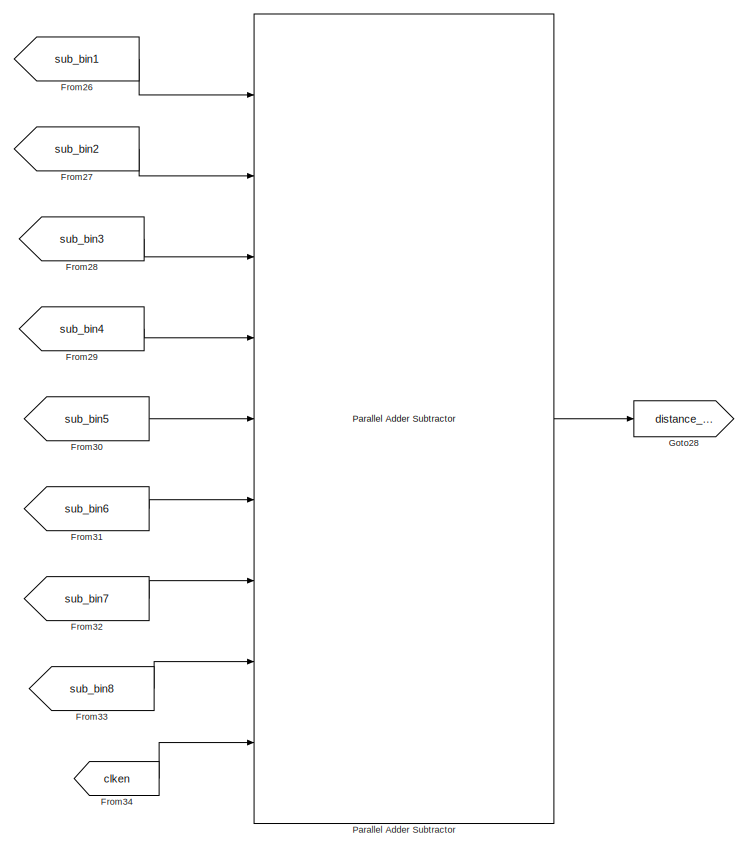
[diagram: sift_octave1/matching/matching/compare_descriptor/get_distance - part 1/4, middle right region]
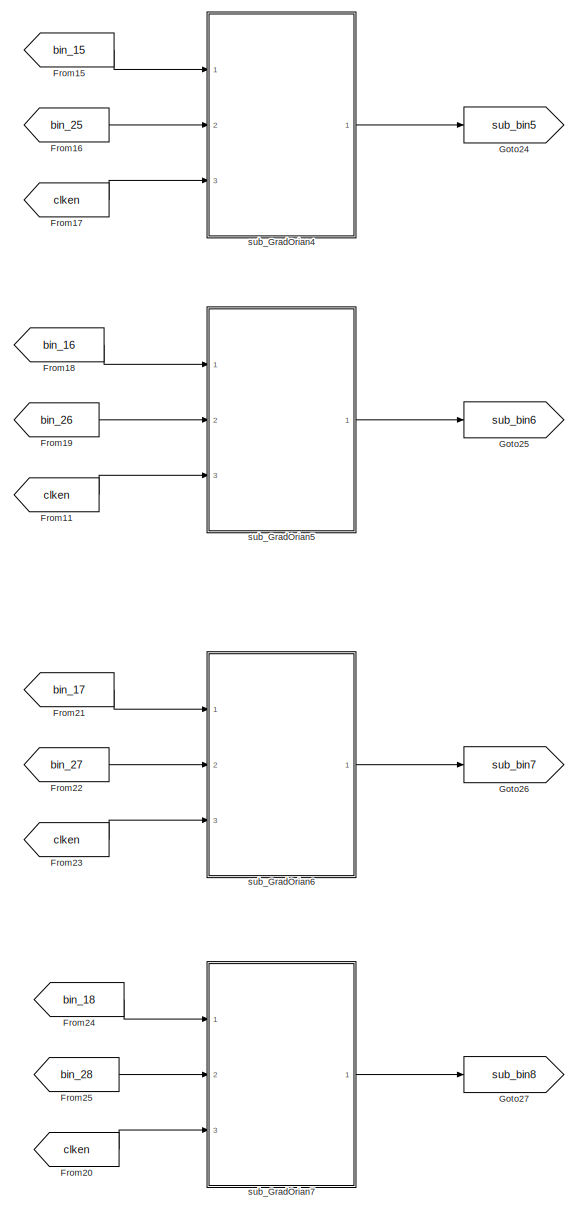
[diagram: sift_octave1/matching/matching/compare_descriptor/get_distance - part 2/4, center side, full height]
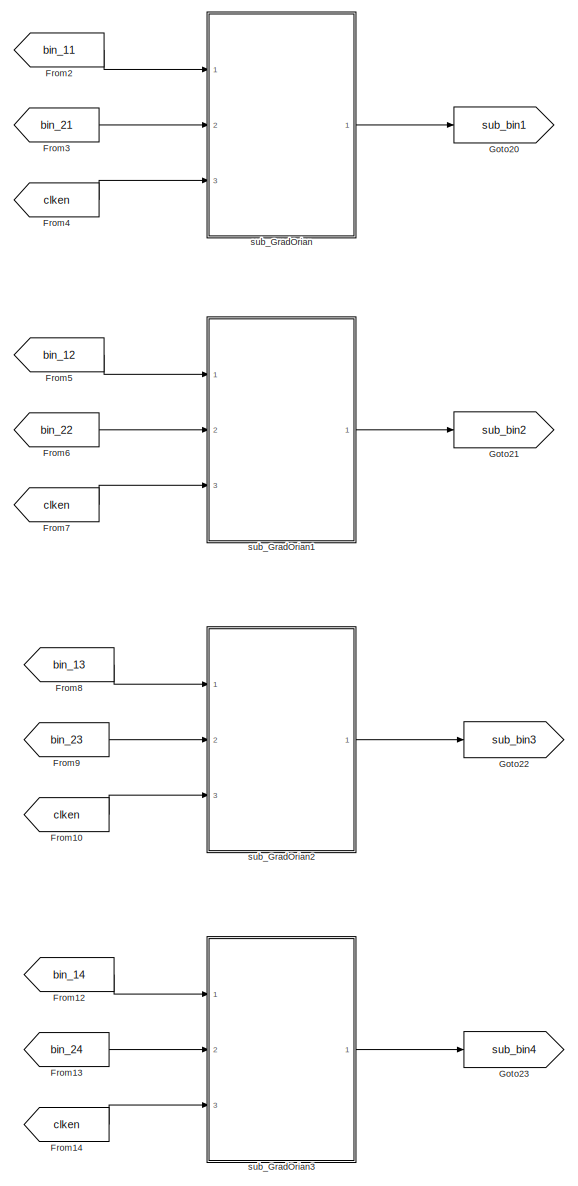
[diagram: sift_octave1/matching/matching/compare_descriptor/get_distance - part 3/4, center side, full height]
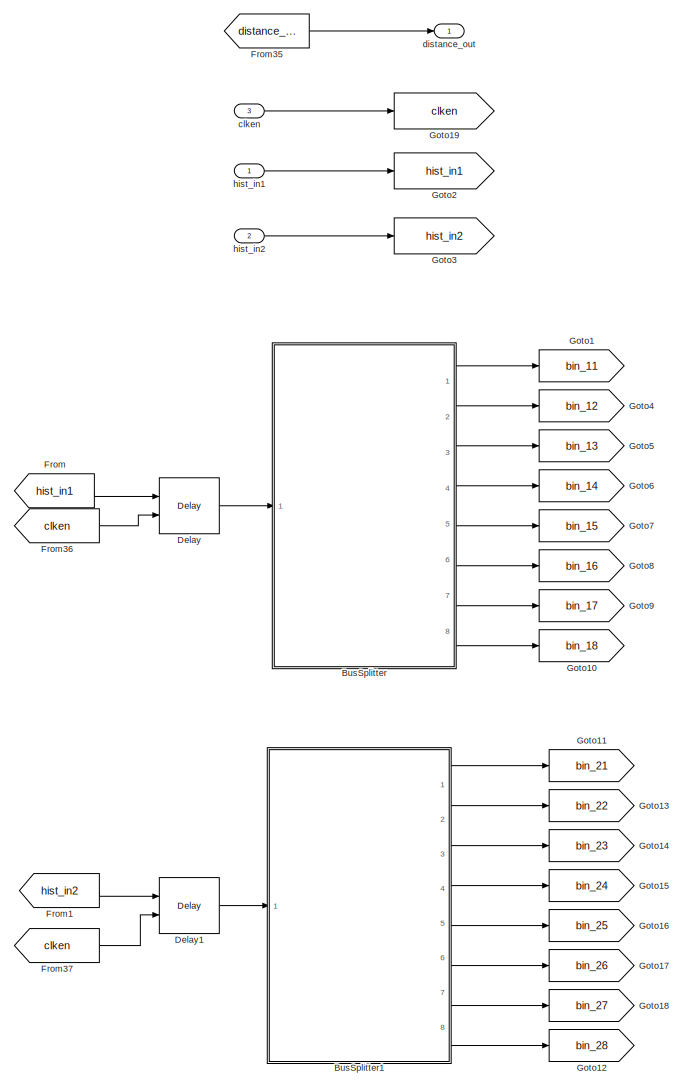
[diagram: sift_octave1/matching/matching/compare_descriptor/get_distance - part 4/4, left side, full height]
BLOCK [SubSystem] sift_octave1/matching/matching/compare_descriptor/get_distance
  Ports = [3, 1]
  RequestExecContextInheritance = off
BLOCK [SubSystem] sift_octave1/matching/matching/compare_descriptor/get_distance/BusSplitter
  Ports = [1, 8]
  RequestExecContextInheritance = off
BLOCK [Reference] sift_octave1/matching/matching/compare_descriptor/get_distance/BusSplitter/Bus Conversion  REF=allblocks_alteradspbuilder2/Bus Conversion
  BusType = Unsigned Integer
  Ports = [1, 1]
  SourceBlock = allblocks_alteradspbuilder2/Bus Conversion
  SourceType = Bus Conversion AlteraBlockset
  bitToConnectToOutputLSB = 96
  bwl = 16
  bwr = 1
  ibwl = 128
  ibwr = 1
  pipeline_display = 0
  round = off
  saturate = off
BLOCK [Reference] sift_octave1/matching/matching/compare_descriptor/get_distance/BusSplitter/Bus Conversion1  REF=allblocks_alteradspbuilder2/Bus Conversion
  BusType = Unsigned Integer
  Ports = [1, 1]
  SourceBlock = allblocks_alteradspbuilder2/Bus Conversion
  SourceType = Bus Conversion AlteraBlockset
  bitToConnectToOutputLSB = 80
  bwl = 16
  bwr = 1
  ibwl = 128
  ibwr = 1
  pipeline_display = 0
  round = off
  saturate = off
BLOCK [Reference] sift_octave1/matching/matching/compare_descriptor/get_distance/BusSplitter/Bus Conversion2  REF=allblocks_alteradspbuilder2/Bus Conversion
  BusType = Unsigned Integer
  Ports = [1, 1]
  SourceBlock = allblocks_alteradspbuilder2/Bus Conversion
  SourceType = Bus Conversion AlteraBlockset
  bitToConnectToOutputLSB = 64
  bwl = 16
  bwr = 1
  ibwl = 128
  ibwr = 1
  pipeline_display = 0
  round = off
  saturate = off
BLOCK [Reference] sift_octave1/matching/matching/compare_descriptor/get_distance/BusSplitter/Bus Conversion3  REF=allblocks_alteradspbuilder2/Bus Conversion
  BusType = Unsigned Integer
  Ports = [1, 1]
  SourceBlock = allblocks_alteradspbuilder2/Bus Conversion
  SourceType = Bus Conversion AlteraBlockset
  bitToConnectToOutputLSB = 48
  bwl = 16
  bwr = 1
  ibwl = 128
  ibwr = 1
  pipeline_display = 0
  round = off
  saturate = off
BLOCK [Reference] sift_octave1/matching/matching/compare_descriptor/get_distance/BusSplitter/Bus Conversion4  REF=allblocks_alteradspbuilder2/Bus Conversion
  BusType = Unsigned Integer
  Ports = [1, 1]
  SourceBlock = allblocks_alteradspbuilder2/Bus Conversion
  SourceType = Bus Conversion AlteraBlockset
  bitToConnectToOutputLSB = 32
  bwl = 16
  bwr = 1
  ibwl = 128
  ibwr = 1
  pipeline_display = 0
  round = off
  saturate = off
BLOCK [Reference] sift_octave1/matching/matching/compare_descriptor/get_distance/BusSplitter/Bus Conversion5  REF=allblocks_alteradspbuilder2/Bus Conversion
  BusType = Unsigned Integer
  Ports = [1, 1]
  SourceBlock = allblocks_alteradspbuilder2/Bus Conversion
  SourceType = Bus Conversion AlteraBlockset
  bitToConnectToOutputLSB = 16
  bwl = 16
  bwr = 1
  ibwl = 128
  ibwr = 1
  pipeline_display = 0
  round = off
  saturate = off
BLOCK [Reference] sift_octave1/matching/matching/compare_descriptor/get_distance/BusSplitter/Bus Conversion6  REF=allblocks_alteradspbuilder2/Bus Conversion
  BusType = Unsigned Integer
  Ports = [1, 1]
  SourceBlock = allblocks_alteradspbuilder2/Bus Conversion
  SourceType = Bus Conversion AlteraBlockset
  bitToConnectToOutputLSB = 0
  bwl = 16
  bwr = 1
  ibwl = 128
  ibwr = 1
  pipeline_display = 0
  round = off
  saturate = off
BLOCK [Reference] sift_octave1/matching/matching/compare_descriptor/get_distance/BusSplitter/Bus Conversion7  REF=allblocks_alteradspbuilder2/Bus Conversion
  BusType = Unsigned Integer
  Ports = [1, 1]
  SourceBlock = allblocks_alteradspbuilder2/Bus Conversion
  SourceType = Bus Conversion AlteraBlockset
  bitToConnectToOutputLSB = 112
  bwl = 16
  bwr = 1
  ibwl = 128
  ibwr = 1
  pipeline_display = 0
  round = off
  saturate = off
BLOCK [Outport] sift_octave1/matching/matching/compare_descriptor/get_distance/BusSplitter/bin1
  IconDisplay = Port number
BLOCK [Outport] sift_octave1/matching/matching/compare_descriptor/get_distance/BusSplitter/bin2
  IconDisplay = Port number
  Port = 2
BLOCK [Outport] sift_octave1/matching/matching/compare_descriptor/get_distance/BusSplitter/bin3
  IconDisplay = Port number
  Port = 3
BLOCK [Outport] sift_octave1/matching/matching/compare_descriptor/get_distance/BusSplitter/bin4
  IconDisplay = Port number
  Port = 4
BLOCK [Outport] sift_octave1/matching/matching/compare_descriptor/get_distance/BusSplitter/bin5
  IconDisplay = Port number
  Port = 5
BLOCK [Outport] sift_octave1/matching/matching/compare_descriptor/get_distance/BusSplitter/bin6
  IconDisplay = Port number
  Port = 6
BLOCK [Outport] sift_octave1/matching/matching/compare_descriptor/get_distance/BusSplitter/bin7
  IconDisplay = Port number
  Port = 7
BLOCK [Outport] sift_octave1/matching/matching/compare_descriptor/get_distance/BusSplitter/bin8
  IconDisplay = Port number
  Port = 8
BLOCK [Inport] sift_octave1/matching/matching/compare_descriptor/get_distance/BusSplitter/data_in
  IconDisplay = Port number
BLOCK [SubSystem] sift_octave1/matching/matching/compare_descriptor/get_distance/BusSplitter1
  Ports = [1, 8]
  RequestExecContextInheritance = off
BLOCK [Reference] sift_octave1/matching/matching/compare_descriptor/get_distance/BusSplitter1/Bus Conversion  REF=allblocks_alteradspbuilder2/Bus Conversion
  BusType = Unsigned Integer
  Ports = [1, 1]
  SourceBlock = allblocks_alteradspbuilder2/Bus Conversion
  SourceType = Bus Conversion AlteraBlockset
  bitToConnectToOutputLSB = 96
  bwl = 16
  bwr = 1
  ibwl = 128
  ibwr = 1
  pipeline_display = 0
  round = off
  saturate = off
BLOCK [Reference] sift_octave1/matching/matching/compare_descriptor/get_distance/BusSplitter1/Bus Conversion1  REF=allblocks_alteradspbuilder2/Bus Conversion
  BusType = Unsigned Integer
  Ports = [1, 1]
  SourceBlock = allblocks_alteradspbuilder2/Bus Conversion
  SourceType = Bus Conversion AlteraBlockset
  bitToConnectToOutputLSB = 80
  bwl = 16
  bwr = 1
  ibwl = 128
  ibwr = 1
  pipeline_display = 0
  round = off
  saturate = off
BLOCK [Reference] sift_octave1/matching/matching/compare_descriptor/get_distance/BusSplitter1/Bus Conversion2  REF=allblocks_alteradspbuilder2/Bus Conversion
  BusType = Unsigned Integer
  Ports = [1, 1]
  SourceBlock = allblocks_alteradspbuilder2/Bus Conversion
  SourceType = Bus Conversion AlteraBlockset
  bitToConnectToOutputLSB = 64
  bwl = 16
  bwr = 1
  ibwl = 128
  ibwr = 1
  pipeline_display = 0
  round = off
  saturate = off
BLOCK [Reference] sift_octave1/matching/matching/compare_descriptor/get_distance/BusSplitter1/Bus Conversion3  REF=allblocks_alteradspbuilder2/Bus Conversion
  BusType = Unsigned Integer
  Ports = [1, 1]
  SourceBlock = allblocks_alteradspbuilder2/Bus Conversion
  SourceType = Bus Conversion AlteraBlockset
  bitToConnectToOutputLSB = 48
  bwl = 16
  bwr = 1
  ibwl = 128
  ibwr = 1
  pipeline_display = 0
  round = off
  saturate = off
BLOCK [Reference] sift_octave1/matching/matching/compare_descriptor/get_distance/BusSplitter1/Bus Conversion4  REF=allblocks_alteradspbuilder2/Bus Conversion
  BusType = Unsigned Integer
  Ports = [1, 1]
  SourceBlock = allblocks_alteradspbuilder2/Bus Conversion
  SourceType = Bus Conversion AlteraBlockset
  bitToConnectToOutputLSB = 32
  bwl = 16
  bwr = 1
  ibwl = 128
  ibwr = 1
  pipeline_display = 0
  round = off
  saturate = off
BLOCK [Reference] sift_octave1/matching/matching/compare_descriptor/get_distance/BusSplitter1/Bus Conversion5  REF=allblocks_alteradspbuilder2/Bus Conversion
  BusType = Unsigned Integer
  Ports = [1, 1]
  SourceBlock = allblocks_alteradspbuilder2/Bus Conversion
  SourceType = Bus Conversion AlteraBlockset
  bitToConnectToOutputLSB = 16
  bwl = 16
  bwr = 1
  ibwl = 128
  ibwr = 1
  pipeline_display = 0
  round = off
  saturate = off
BLOCK [Reference] sift_octave1/matching/matching/compare_descriptor/get_distance/BusSplitter1/Bus Conversion6  REF=allblocks_alteradspbuilder2/Bus Conversion
  BusType = Unsigned Integer
  Ports = [1, 1]
  SourceBlock = allblocks_alteradspbuilder2/Bus Conversion
  SourceType = Bus Conversion AlteraBlockset
  bitToConnectToOutputLSB = 0
  bwl = 16
  bwr = 1
  ibwl = 128
  ibwr = 1
  pipeline_display = 0
  round = off
  saturate = off
BLOCK [Reference] sift_octave1/matching/matching/compare_descriptor/get_distance/BusSplitter1/Bus Conversion7  REF=allblocks_alteradspbuilder2/Bus Conversion
  BusType = Unsigned Integer
  Ports = [1, 1]
  SourceBlock = allblocks_alteradspbuilder2/Bus Conversion
  SourceType = Bus Conversion AlteraBlockset
  bitToConnectToOutputLSB = 112
  bwl = 16
  bwr = 1
  ibwl = 128
  ibwr = 1
  pipeline_display = 0
  round = off
  saturate = off
BLOCK [Outport] sift_octave1/matching/matching/compare_descriptor/get_distance/BusSplitter1/bin1
  IconDisplay = Port number
BLOCK [Outport] sift_octave1/matching/matching/compare_descriptor/get_distance/BusSplitter1/bin2
  IconDisplay = Port number
  Port = 2
BLOCK [Outport] sift_octave1/matching/matching/compare_descriptor/get_distance/BusSplitter1/bin3
  IconDisplay = Port number
  Port = 3
BLOCK [Outport] sift_octave1/matching/matching/compare_descriptor/get_distance/BusSplitter1/bin4
  IconDisplay = Port number
  Port = 4
BLOCK [Outport] sift_octave1/matching/matching/compare_descriptor/get_distance/BusSplitter1/bin5
  IconDisplay = Port number
  Port = 5
BLOCK [Outport] sift_octave1/matching/matching/compare_descriptor/get_distance/BusSplitter1/bin6
  IconDisplay = Port number
  Port = 6
BLOCK [Outport] sift_octave1/matching/matching/compare_descriptor/get_distance/BusSplitter1/bin7
  IconDisplay = Port number
  Port = 7
BLOCK [Outport] sift_octave1/matching/matching/compare_descriptor/get_distance/BusSplitter1/bin8
  IconDisplay = Port number
  Port = 8
BLOCK [Inport] sift_octave1/matching/matching/compare_descriptor/get_distance/BusSplitter1/data_in
  IconDisplay = Port number
BLOCK [Reference] sift_octave1/matching/matching/compare_descriptor/get_distance/Delay  REF=allblocks_alteradspbuilder2/Delay
  ClockPhase = 1
  Ports = [2, 1]
  SourceBlock = allblocks_alteradspbuilder2/Delay
  SourceType = Delay AlteraBlockset
  allowFloatingPointOverride = on
  logFile = <userpath>\Desktop\final_sift_fpga\tb_matching\matching_sift%5Foctave1_matching_matching_compare%5Fdescriptor_get%5Fdistance_Delay.fixedpointlog
  logOutputs = off
  pipeline = 1
  pipeline_display = 1
  reset_value = 1
  use_ena = on
  use_init = off
  use_sclr = off
BLOCK [Reference] sift_octave1/matching/matching/compare_descriptor/get_distance/Delay1  REF=allblocks_alteradspbuilder2/Delay
  ClockPhase = 1
  Ports = [2, 1]
  SourceBlock = allblocks_alteradspbuilder2/Delay
  SourceType = Delay AlteraBlockset
  allowFloatingPointOverride = on
  logFile = <userpath>\Desktop\final_sift_fpga\tb_matching\matching_sift%5Foctave1_matching_matching_compare%5Fdescriptor_get%5Fdistance_Delay1.fixedpointlog
  logOutputs = off
  pipeline = 1
  pipeline_display = 1
  reset_value = 1
  use_ena = on
  use_init = off
  use_sclr = off
BLOCK [From] sift_octave1/matching/matching/compare_descriptor/get_distance/From
  GotoTag = hist_in1
BLOCK [From] sift_octave1/matching/matching/compare_descriptor/get_distance/From1
  GotoTag = hist_in2
BLOCK [From] sift_octave1/matching/matching/compare_descriptor/get_distance/From10
  GotoTag = clken
BLOCK [From] sift_octave1/matching/matching/compare_descriptor/get_distance/From11
  GotoTag = clken
BLOCK [From] sift_octave1/matching/matching/compare_descriptor/get_distance/From12
  GotoTag = bin_14
BLOCK [From] sift_octave1/matching/matching/compare_descriptor/get_distance/From13
  GotoTag = bin_24
BLOCK [From] sift_octave1/matching/matching/compare_descriptor/get_distance/From14
  GotoTag = clken
BLOCK [From] sift_octave1/matching/matching/compare_descriptor/get_distance/From15
  GotoTag = bin_15
BLOCK [From] sift_octave1/matching/matching/compare_descriptor/get_distance/From16
  GotoTag = bin_25
BLOCK [From] sift_octave1/matching/matching/compare_descriptor/get_distance/From17
  GotoTag = clken
BLOCK [From] sift_octave1/matching/matching/compare_descriptor/get_distance/From18
  GotoTag = bin_16
BLOCK [From] sift_octave1/matching/matching/compare_descriptor/get_distance/From19
  GotoTag = bin_26
BLOCK [From] sift_octave1/matching/matching/compare_descriptor/get_distance/From2
  GotoTag = bin_11
BLOCK [From] sift_octave1/matching/matching/compare_descriptor/get_distance/From20
  GotoTag = clken
BLOCK [From] sift_octave1/matching/matching/compare_descriptor/get_distance/From21
  GotoTag = bin_17
BLOCK [From] sift_octave1/matching/matching/compare_descriptor/get_distance/From22
  GotoTag = bin_27
BLOCK [From] sift_octave1/matching/matching/compare_descriptor/get_distance/From23
  GotoTag = clken
BLOCK [From] sift_octave1/matching/matching/compare_descriptor/get_distance/From24
  GotoTag = bin_18
BLOCK [From] sift_octave1/matching/matching/compare_descriptor/get_distance/From25
  GotoTag = bin_28
BLOCK [From] sift_octave1/matching/matching/compare_descriptor/get_distance/From26
  GotoTag = sub_bin1
BLOCK [From] sift_octave1/matching/matching/compare_descriptor/get_distance/From27
  GotoTag = sub_bin2
BLOCK [From] sift_octave1/matching/matching/compare_descriptor/get_distance/From28
  GotoTag = sub_bin3
BLOCK [From] sift_octave1/matching/matching/compare_descriptor/get_distance/From29
  GotoTag = sub_bin4
BLOCK [From] sift_octave1/matching/matching/compare_descriptor/get_distance/From3
  GotoTag = bin_21
BLOCK [From] sift_octave1/matching/matching/compare_descriptor/get_distance/From30
  GotoTag = sub_bin5
BLOCK [From] sift_octave1/matching/matching/compare_descriptor/get_distance/From31
  GotoTag = sub_bin6
BLOCK [From] sift_octave1/matching/matching/compare_descriptor/get_distance/From32
  GotoTag = sub_bin7
BLOCK [From] sift_octave1/matching/matching/compare_descriptor/get_distance/From33
  GotoTag = sub_bin8
BLOCK [From] sift_octave1/matching/matching/compare_descriptor/get_distance/From34
  GotoTag = clken
BLOCK [From] sift_octave1/matching/matching/compare_descriptor/get_distance/From35
  GotoTag = distance_out
BLOCK [From] sift_octave1/matching/matching/compare_descriptor/get_distance/From36
  GotoTag = clken
BLOCK [From] sift_octave1/matching/matching/compare_descriptor/get_distance/From37
  GotoTag = clken
BLOCK [From] sift_octave1/matching/matching/compare_descriptor/get_distance/From4
  GotoTag = clken
BLOCK [From] sift_octave1/matching/matching/compare_descriptor/get_distance/From5
  GotoTag = bin_12
BLOCK [From] sift_octave1/matching/matching/compare_descriptor/get_distance/From6
  GotoTag = bin_22
BLOCK [From] sift_octave1/matching/matching/compare_descriptor/get_distance/From7
  GotoTag = clken
BLOCK [From] sift_octave1/matching/matching/compare_descriptor/get_distance/From8
  GotoTag = bin_13
BLOCK [From] sift_octave1/matching/matching/compare_descriptor/get_distance/From9
  GotoTag = bin_23
BLOCK [Goto] sift_octave1/matching/matching/compare_descriptor/get_distance/Goto1
  GotoTag = bin_11
BLOCK [Goto] sift_octave1/matching/matching/compare_descriptor/get_distance/Goto10
  GotoTag = bin_18
BLOCK [Goto] sift_octave1/matching/matching/compare_descriptor/get_distance/Goto11
  GotoTag = bin_21
BLOCK [Goto] sift_octave1/matching/matching/compare_descriptor/get_distance/Goto12
  GotoTag = bin_28
BLOCK [Goto] sift_octave1/matching/matching/compare_descriptor/get_distance/Goto13
  GotoTag = bin_22
BLOCK [Goto] sift_octave1/matching/matching/compare_descriptor/get_distance/Goto14
  GotoTag = bin_23
BLOCK [Goto] sift_octave1/matching/matching/compare_descriptor/get_distance/Goto15
  GotoTag = bin_24
BLOCK [Goto] sift_octave1/matching/matching/compare_descriptor/get_distance/Goto16
  GotoTag = bin_25
BLOCK [Goto] sift_octave1/matching/matching/compare_descriptor/get_distance/Goto17
  GotoTag = bin_26
BLOCK [Goto] sift_octave1/matching/matching/compare_descriptor/get_distance/Goto18
  GotoTag = bin_27
BLOCK [Goto] sift_octave1/matching/matching/compare_descriptor/get_distance/Goto19
  GotoTag = clken
BLOCK [Goto] sift_octave1/matching/matching/compare_descriptor/get_distance/Goto2
  GotoTag = hist_in1
BLOCK [Goto] sift_octave1/matching/matching/compare_descriptor/get_distance/Goto20
  GotoTag = sub_bin1
BLOCK [Goto] sift_octave1/matching/matching/compare_descriptor/get_distance/Goto21
  GotoTag = sub_bin2
BLOCK [Goto] sift_octave1/matching/matching/compare_descriptor/get_distance/Goto22
  GotoTag = sub_bin3
BLOCK [Goto] sift_octave1/matching/matching/compare_descriptor/get_distance/Goto23
  GotoTag = sub_bin4
BLOCK [Goto] sift_octave1/matching/matching/compare_descriptor/get_distance/Goto24
  GotoTag = sub_bin5
BLOCK [Goto] sift_octave1/matching/matching/compare_descriptor/get_distance/Goto25
  GotoTag = sub_bin6
BLOCK [Goto] sift_octave1/matching/matching/compare_descriptor/get_distance/Goto26
  GotoTag = sub_bin7
BLOCK [Goto] sift_octave1/matching/matching/compare_descriptor/get_distance/Goto27
  GotoTag = sub_bin8
BLOCK [Goto] sift_octave1/matching/matching/compare_descriptor/get_distance/Goto28
  GotoTag = distance_out
BLOCK [Goto] sift_octave1/matching/matching/compare_descriptor/get_distance/Goto3
  GotoTag = hist_in2
BLOCK [Goto] sift_octave1/matching/matching/compare_descriptor/get_distance/Goto4
  GotoTag = bin_12
BLOCK [Goto] sift_octave1/matching/matching/compare_descriptor/get_distance/Goto5
  GotoTag = bin_13
BLOCK [Goto] sift_octave1/matching/matching/compare_descriptor/get_distance/Goto6
  GotoTag = bin_14
BLOCK [Goto] sift_octave1/matching/matching/compare_descriptor/get_distance/Goto7
  GotoTag = bin_15
BLOCK [Goto] sift_octave1/matching/matching/compare_descriptor/get_distance/Goto8
  GotoTag = bin_16
BLOCK [Goto] sift_octave1/matching/matching/compare_descriptor/get_distance/Goto9
  GotoTag = bin_17
BLOCK [Reference] sift_octave1/matching/matching/compare_descriptor/get_distance/Parallel Adder Subtractor  REF=allblocks_alteradspbuilder2/Parallel Adder Subtractor
  Ports = [9, 1]
  SourceBlock = allblocks_alteradspbuilder2/Parallel Adder Subtractor
  SourceType = ParallelAdder AlteraBlockset
  allowFloatingPointOverride = on
  direction = +
  logFile = C:\matching_sift%5Foctave1_matching_matching_compare%5Fdescriptor_get%5Fdistance_Parallel+Adder+Subtractor.fixedpointlog
  logOutputs = off
  number_of_inputs = 8
  phase_selection = 1
  pipeline_display = 3
  use_aclr = off
  use_ena = on
  use_pipeline = on
BLOCK [Inport] sift_octave1/matching/matching/compare_descriptor/get_distance/clken
  IconDisplay = Port number
  Port = 3
BLOCK [Outport] sift_octave1/matching/matching/compare_descriptor/get_distance/distance_out
  IconDisplay = Port number
BLOCK [Inport] sift_octave1/matching/matching/compare_descriptor/get_distance/hist_in1
  IconDisplay = Port number
BLOCK [Inport] sift_octave1/matching/matching/compare_descriptor/get_distance/hist_in2
  IconDisplay = Port number
  Port = 2
BLOCK [SubSystem] sift_octave1/matching/matching/compare_descriptor/get_distance/sub_GradOrian
  Ports = [3, 1]
  RequestExecContextInheritance = off
BLOCK [Reference] sift_octave1/matching/matching/compare_descriptor/get_distance/sub_GradOrian/Comparator3  REF=allblocks_alteradspbuilder2/Comparator
  Ports = [2, 1]
  SourceBlock = allblocks_alteradspbuilder2/Comparator
  SourceType = Comparator AlteraBlockset
  allowFloatingPointOverride = on
  direction = a > b
  logFile = <userpath>\Desktop\PCIE_Display\custom_IP\tb_SIFT\SIFT_sift%5Foctave1_matching_matching_compare%5Fdescriptor_get%5Fdistance_sub%5FGradOrian_Comparator3.fixedpointlog
  logOutputs = off
  pipeline_display = 0
BLOCK [Reference] sift_octave1/matching/matching/compare_descriptor/get_distance/sub_GradOrian/Delay  REF=allblocks_alteradspbuilder2/Delay
  ClockPhase = 1
  Ports = [2, 1]
  SourceBlock = allblocks_alteradspbuilder2/Delay
  SourceType = Delay AlteraBlockset
  allowFloatingPointOverride = on
  logFile = <userpath>\Desktop\PCIE_Display\custom_IP\tb_SIFT\SIFT_sift%5Foctave1_matching_matching_compare%5Fdescriptor_get%5Fdistance_sub%5FGradOrian_Delay.fixedpointlog
  logOutputs = off
  pipeline = 1
  pipeline_display = 1
  reset_value = 1
  use_ena = on
  use_init = off
  use_sclr = off
BLOCK [From] sift_octave1/matching/matching/compare_descriptor/get_distance/sub_GradOrian/From
  GotoTag = bin12
BLOCK [From] sift_octave1/matching/matching/compare_descriptor/get_distance/sub_GradOrian/From1
  GotoTag = bin21
BLOCK [From] sift_octave1/matching/matching/compare_descriptor/get_distance/sub_GradOrian/From2
  GotoTag = bin2
BLOCK [From] sift_octave1/matching/matching/compare_descriptor/get_distance/sub_GradOrian/From23
  GotoTag = bin1
BLOCK [From] sift_octave1/matching/matching/compare_descriptor/get_distance/sub_GradOrian/From24
  GotoTag = bin2
BLOCK [From] sift_octave1/matching/matching/compare_descriptor/get_distance/sub_GradOrian/From27
  GotoTag = clken
BLOCK [From] sift_octave1/matching/matching/compare_descriptor/get_distance/sub_GradOrian/From3
  GotoTag = bin1
BLOCK [From] sift_octave1/matching/matching/compare_descriptor/get_distance/sub_GradOrian/From4
  GotoTag = clken
BLOCK [From] sift_octave1/matching/matching/compare_descriptor/get_distance/sub_GradOrian/From5
  GotoTag = bin1
BLOCK [From] sift_octave1/matching/matching/compare_descriptor/get_distance/sub_GradOrian/From6
  GotoTag = bin2
BLOCK [From] sift_octave1/matching/matching/compare_descriptor/get_distance/sub_GradOrian/From7
  GotoTag = clken
BLOCK [Goto] sift_octave1/matching/matching/compare_descriptor/get_distance/sub_GradOrian/Goto
  GotoTag = bin1
BLOCK [Goto] sift_octave1/matching/matching/compare_descriptor/get_distance/sub_GradOrian/Goto1
  GotoTag = bin2
BLOCK [Goto] sift_octave1/matching/matching/compare_descriptor/get_distance/sub_GradOrian/Goto2
  GotoTag = clken
BLOCK [Goto] sift_octave1/matching/matching/compare_descriptor/get_distance/sub_GradOrian/Goto6
  GotoTag = bin12
BLOCK [Goto] sift_octave1/matching/matching/compare_descriptor/get_distance/sub_GradOrian/Goto7
  GotoTag = bin21
BLOCK [Reference] sift_octave1/matching/matching/compare_descriptor/get_distance/sub_GradOrian/Multiplexer2  REF=allblocks_alteradspbuilder2/Multiplexer
  Ports = [3, 1]
  SourceBlock = allblocks_alteradspbuilder2/Multiplexer
  SourceType = Multiplexer AlteraBlockset
  allowFloatingPointOverride = on
  logFile = <userpath>\Desktop\PCIE_Display\custom_IP\tb_SIFT\SIFT_sift%5Foctave1_matching_matching_compare%5Fdescriptor_get%5Fdistance_sub%5FGradOrian_Multiplexer2.fixedpointlog
  logOutputs = off
  numInputs = 2
  oneHot = off
  pipeline = 0
  pipeline_display = 0
  use_aclr = off
  use_ena = off
BLOCK [Reference] sift_octave1/matching/matching/compare_descriptor/get_distance/sub_GradOrian/Parallel Adder Subtractor  REF=allblocks_alteradspbuilder2/Parallel Adder Subtractor
  Ports = [3, 1]
  SourceBlock = allblocks_alteradspbuilder2/Parallel Adder Subtractor
  SourceType = ParallelAdder AlteraBlockset
  allowFloatingPointOverride = on
  direction = +-
  logFile = <userpath>\Desktop\PCIE_Display\custom_IP\tb_SIFT\SIFT_sift%5Foctave1_matching_matching_compare%5Fdescriptor_get%5Fdistance_sub%5FGradOrian_Parallel+Adder+Subtractor.fixedpointlog
  logOutputs = off
  number_of_inputs = 2
  phase_selection = 1
  pipeline_display = 1
  use_aclr = off
  use_ena = on
  use_pipeline = on
BLOCK [Reference] sift_octave1/matching/matching/compare_descriptor/get_distance/sub_GradOrian/Parallel Adder Subtractor1  REF=allblocks_alteradspbuilder2/Parallel Adder Subtractor
  Ports = [3, 1]
  SourceBlock = allblocks_alteradspbuilder2/Parallel Adder Subtractor
  SourceType = ParallelAdder AlteraBlockset
  allowFloatingPointOverride = on
  direction = +-
  logFile = <userpath>\Desktop\PCIE_Display\custom_IP\tb_SIFT\SIFT_sift%5Foctave1_matching_matching_compare%5Fdescriptor_get%5Fdistance_sub%5FGradOrian_Parallel+Adder+Subtractor1.fixedpointlog
  logOutputs = off
  number_of_inputs = 2
  phase_selection = 1
  pipeline_display = 1
  use_aclr = off
  use_ena = on
  use_pipeline = on
BLOCK [Inport] sift_octave1/matching/matching/compare_descriptor/get_distance/sub_GradOrian/bin1
  IconDisplay = Port number
BLOCK [Inport] sift_octave1/matching/matching/compare_descriptor/get_distance/sub_GradOrian/bin2
  IconDisplay = Port number
  Port = 2
BLOCK [Inport] sift_octave1/matching/matching/compare_descriptor/get_distance/sub_GradOrian/clken
  IconDisplay = Port number
  Port = 3
BLOCK [Outport] sift_octave1/matching/matching/compare_descriptor/get_distance/sub_GradOrian/sub_bin
  IconDisplay = Port number
BLOCK [SubSystem] sift_octave1/matching/matching/compare_descriptor/get_distance/sub_GradOrian1
  Ports = [3, 1]
  RequestExecContextInheritance = off
BLOCK [Reference] sift_octave1/matching/matching/compare_descriptor/get_distance/sub_GradOrian1/Comparator3  REF=allblocks_alteradspbuilder2/Comparator
  Ports = [2, 1]
  SourceBlock = allblocks_alteradspbuilder2/Comparator
  SourceType = Comparator AlteraBlockset
  allowFloatingPointOverride = on
  direction = a > b
  logFile = <userpath>\Desktop\PCIE_Display\custom_IP\tb_SIFT\SIFT_sift%5Foctave1_matching_matching_compare%5Fdescriptor_get%5Fdistance_sub%5FGradOrian1_Comparator3.fixedpointlog
  logOutputs = off
  pipeline_display = 0
BLOCK [Reference] sift_octave1/matching/matching/compare_descriptor/get_distance/sub_GradOrian1/Delay  REF=allblocks_alteradspbuilder2/Delay
  ClockPhase = 1
  Ports = [2, 1]
  SourceBlock = allblocks_alteradspbuilder2/Delay
  SourceType = Delay AlteraBlockset
  allowFloatingPointOverride = on
  logFile = <userpath>\Desktop\PCIE_Display\custom_IP\tb_SIFT\SIFT_sift%5Foctave1_matching_matching_compare%5Fdescriptor_get%5Fdistance_sub%5FGradOrian1_Delay.fixedpointlog
  logOutputs = off
  pipeline = 1
  pipeline_display = 1
  reset_value = 1
  use_ena = on
  use_init = off
  use_sclr = off
BLOCK [From] sift_octave1/matching/matching/compare_descriptor/get_distance/sub_GradOrian1/From
  GotoTag = bin12
BLOCK [From] sift_octave1/matching/matching/compare_descriptor/get_distance/sub_GradOrian1/From1
  GotoTag = bin21
BLOCK [From] sift_octave1/matching/matching/compare_descriptor/get_distance/sub_GradOrian1/From2
  GotoTag = bin2
BLOCK [From] sift_octave1/matching/matching/compare_descriptor/get_distance/sub_GradOrian1/From23
  GotoTag = bin1
BLOCK [From] sift_octave1/matching/matching/compare_descriptor/get_distance/sub_GradOrian1/From24
  GotoTag = bin2
BLOCK [From] sift_octave1/matching/matching/compare_descriptor/get_distance/sub_GradOrian1/From27
  GotoTag = clken
BLOCK [From] sift_octave1/matching/matching/compare_descriptor/get_distance/sub_GradOrian1/From3
  GotoTag = bin1
BLOCK [From] sift_octave1/matching/matching/compare_descriptor/get_distance/sub_GradOrian1/From4
  GotoTag = clken
BLOCK [From] sift_octave1/matching/matching/compare_descriptor/get_distance/sub_GradOrian1/From5
  GotoTag = bin1
BLOCK [From] sift_octave1/matching/matching/compare_descriptor/get_distance/sub_GradOrian1/From6
  GotoTag = bin2
BLOCK [From] sift_octave1/matching/matching/compare_descriptor/get_distance/sub_GradOrian1/From7
  GotoTag = clken
BLOCK [Goto] sift_octave1/matching/matching/compare_descriptor/get_distance/sub_GradOrian1/Goto
  GotoTag = bin1
BLOCK [Goto] sift_octave1/matching/matching/compare_descriptor/get_distance/sub_GradOrian1/Goto1
  GotoTag = bin2
BLOCK [Goto] sift_octave1/matching/matching/compare_descriptor/get_distance/sub_GradOrian1/Goto2
  GotoTag = clken
BLOCK [Goto] sift_octave1/matching/matching/compare_descriptor/get_distance/sub_GradOrian1/Goto6
  GotoTag = bin12
BLOCK [Goto] sift_octave1/matching/matching/compare_descriptor/get_distance/sub_GradOrian1/Goto7
  GotoTag = bin21
BLOCK [Reference] sift_octave1/matching/matching/compare_descriptor/get_distance/sub_GradOrian1/Multiplexer2  REF=allblocks_alteradspbuilder2/Multiplexer
  Ports = [3, 1]
  SourceBlock = allblocks_alteradspbuilder2/Multiplexer
  SourceType = Multiplexer AlteraBlockset
  allowFloatingPointOverride = on
  logFile = <userpath>\Desktop\PCIE_Display\custom_IP\tb_SIFT\SIFT_sift%5Foctave1_matching_matching_compare%5Fdescriptor_get%5Fdistance_sub%5FGradOrian1_Multiplexer2.fixedpointlog
  logOutputs = off
  numInputs = 2
  oneHot = off
  pipeline = 0
  pipeline_display = 0
  use_aclr = off
  use_ena = off
BLOCK [Reference] sift_octave1/matching/matching/compare_descriptor/get_distance/sub_GradOrian1/Parallel Adder Subtractor  REF=allblocks_alteradspbuilder2/Parallel Adder Subtractor
  Ports = [3, 1]
  SourceBlock = allblocks_alteradspbuilder2/Parallel Adder Subtractor
  SourceType = ParallelAdder AlteraBlockset
  allowFloatingPointOverride = on
  direction = +-
  logFile = <userpath>\Desktop\PCIE_Display\custom_IP\tb_SIFT\SIFT_sift%5Foctave1_matching_matching_compare%5Fdescriptor_get%5Fdistance_sub%5FGradOrian1_Parallel+Adder+Subtractor.fixedpointlog
  logOutputs = off
  number_of_inputs = 2
  phase_selection = 1
  pipeline_display = 1
  use_aclr = off
  use_ena = on
  use_pipeline = on
BLOCK [Reference] sift_octave1/matching/matching/compare_descriptor/get_distance/sub_GradOrian1/Parallel Adder Subtractor1  REF=allblocks_alteradspbuilder2/Parallel Adder Subtractor
  Ports = [3, 1]
  SourceBlock = allblocks_alteradspbuilder2/Parallel Adder Subtractor
  SourceType = ParallelAdder AlteraBlockset
  allowFloatingPointOverride = on
  direction = +-
  logFile = <userpath>\Desktop\PCIE_Display\custom_IP\tb_SIFT\SIFT_sift%5Foctave1_matching_matching_compare%5Fdescriptor_get%5Fdistance_sub%5FGradOrian1_Parallel+Adder+Subtractor1.fixedpointlog
  logOutputs = off
  number_of_inputs = 2
  phase_selection = 1
  pipeline_display = 1
  use_aclr = off
  use_ena = on
  use_pipeline = on
BLOCK [Inport] sift_octave1/matching/matching/compare_descriptor/get_distance/sub_GradOrian1/bin1
  IconDisplay = Port number
BLOCK [Inport] sift_octave1/matching/matching/compare_descriptor/get_distance/sub_GradOrian1/bin2
  IconDisplay = Port number
  Port = 2
BLOCK [Inport] sift_octave1/matching/matching/compare_descriptor/get_distance/sub_GradOrian1/clken
  IconDisplay = Port number
  Port = 3
BLOCK [Outport] sift_octave1/matching/matching/compare_descriptor/get_distance/sub_GradOrian1/sub_bin
  IconDisplay = Port number
BLOCK [SubSystem] sift_octave1/matching/matching/compare_descriptor/get_distance/sub_GradOrian2
  Ports = [3, 1]
  RequestExecContextInheritance = off
BLOCK [Reference] sift_octave1/matching/matching/compare_descriptor/get_distance/sub_GradOrian2/Comparator3  REF=allblocks_alteradspbuilder2/Comparator
  Ports = [2, 1]
  SourceBlock = allblocks_alteradspbuilder2/Comparator
  SourceType = Comparator AlteraBlockset
  allowFloatingPointOverride = on
  direction = a > b
  logFile = <userpath>\Desktop\PCIE_Display\custom_IP\tb_SIFT\SIFT_sift%5Foctave1_matching_matching_compare%5Fdescriptor_get%5Fdistance_sub%5FGradOrian2_Comparator3.fixedpointlog
  logOutputs = off
  pipeline_display = 0
BLOCK [Reference] sift_octave1/matching/matching/compare_descriptor/get_distance/sub_GradOrian2/Delay  REF=allblocks_alteradspbuilder2/Delay
  ClockPhase = 1
  Ports = [2, 1]
  SourceBlock = allblocks_alteradspbuilder2/Delay
  SourceType = Delay AlteraBlockset
  allowFloatingPointOverride = on
  logFile = <userpath>\Desktop\PCIE_Display\custom_IP\tb_SIFT\SIFT_sift%5Foctave1_matching_matching_compare%5Fdescriptor_get%5Fdistance_sub%5FGradOrian2_Delay.fixedpointlog
  logOutputs = off
  pipeline = 1
  pipeline_display = 1
  reset_value = 1
  use_ena = on
  use_init = off
  use_sclr = off
BLOCK [From] sift_octave1/matching/matching/compare_descriptor/get_distance/sub_GradOrian2/From
  GotoTag = bin12
BLOCK [From] sift_octave1/matching/matching/compare_descriptor/get_distance/sub_GradOrian2/From1
  GotoTag = bin21
BLOCK [From] sift_octave1/matching/matching/compare_descriptor/get_distance/sub_GradOrian2/From2
  GotoTag = bin2
BLOCK [From] sift_octave1/matching/matching/compare_descriptor/get_distance/sub_GradOrian2/From23
  GotoTag = bin1
BLOCK [From] sift_octave1/matching/matching/compare_descriptor/get_distance/sub_GradOrian2/From24
  GotoTag = bin2
BLOCK [From] sift_octave1/matching/matching/compare_descriptor/get_distance/sub_GradOrian2/From27
  GotoTag = clken
BLOCK [From] sift_octave1/matching/matching/compare_descriptor/get_distance/sub_GradOrian2/From3
  GotoTag = bin1
BLOCK [From] sift_octave1/matching/matching/compare_descriptor/get_distance/sub_GradOrian2/From4
  GotoTag = clken
BLOCK [From] sift_octave1/matching/matching/compare_descriptor/get_distance/sub_GradOrian2/From5
  GotoTag = bin1
BLOCK [From] sift_octave1/matching/matching/compare_descriptor/get_distance/sub_GradOrian2/From6
  GotoTag = bin2
BLOCK [From] sift_octave1/matching/matching/compare_descriptor/get_distance/sub_GradOrian2/From7
  GotoTag = clken
BLOCK [Goto] sift_octave1/matching/matching/compare_descriptor/get_distance/sub_GradOrian2/Goto
  GotoTag = bin1
BLOCK [Goto] sift_octave1/matching/matching/compare_descriptor/get_distance/sub_GradOrian2/Goto1
  GotoTag = bin2
BLOCK [Goto] sift_octave1/matching/matching/compare_descriptor/get_distance/sub_GradOrian2/Goto2
  GotoTag = clken
BLOCK [Goto] sift_octave1/matching/matching/compare_descriptor/get_distance/sub_GradOrian2/Goto6
  GotoTag = bin12
BLOCK [Goto] sift_octave1/matching/matching/compare_descriptor/get_distance/sub_GradOrian2/Goto7
  GotoTag = bin21
BLOCK [Reference] sift_octave1/matching/matching/compare_descriptor/get_distance/sub_GradOrian2/Multiplexer2  REF=allblocks_alteradspbuilder2/Multiplexer
  Ports = [3, 1]
  SourceBlock = allblocks_alteradspbuilder2/Multiplexer
  SourceType = Multiplexer AlteraBlockset
  allowFloatingPointOverride = on
  logFile = <userpath>\Desktop\PCIE_Display\custom_IP\tb_SIFT\SIFT_sift%5Foctave1_matching_matching_compare%5Fdescriptor_get%5Fdistance_sub%5FGradOrian2_Multiplexer2.fixedpointlog
  logOutputs = off
  numInputs = 2
  oneHot = off
  pipeline = 0
  pipeline_display = 0
  use_aclr = off
  use_ena = off
BLOCK [Reference] sift_octave1/matching/matching/compare_descriptor/get_distance/sub_GradOrian2/Parallel Adder Subtractor  REF=allblocks_alteradspbuilder2/Parallel Adder Subtractor
  Ports = [3, 1]
  SourceBlock = allblocks_alteradspbuilder2/Parallel Adder Subtractor
  SourceType = ParallelAdder AlteraBlockset
  allowFloatingPointOverride = on
  direction = +-
  logFile = <userpath>\Desktop\PCIE_Display\custom_IP\tb_SIFT\SIFT_sift%5Foctave1_matching_matching_compare%5Fdescriptor_get%5Fdistance_sub%5FGradOrian2_Parallel+Adder+Subtractor.fixedpointlog
  logOutputs = off
  number_of_inputs = 2
  phase_selection = 1
  pipeline_display = 1
  use_aclr = off
  use_ena = on
  use_pipeline = on
BLOCK [Reference] sift_octave1/matching/matching/compare_descriptor/get_distance/sub_GradOrian2/Parallel Adder Subtractor1  REF=allblocks_alteradspbuilder2/Parallel Adder Subtractor
  Ports = [3, 1]
  SourceBlock = allblocks_alteradspbuilder2/Parallel Adder Subtractor
  SourceType = ParallelAdder AlteraBlockset
  allowFloatingPointOverride = on
  direction = +-
  logFile = <userpath>\Desktop\PCIE_Display\custom_IP\tb_SIFT\SIFT_sift%5Foctave1_matching_matching_compare%5Fdescriptor_get%5Fdistance_sub%5FGradOrian2_Parallel+Adder+Subtractor1.fixedpointlog
  logOutputs = off
  number_of_inputs = 2
  phase_selection = 1
  pipeline_display = 1
  use_aclr = off
  use_ena = on
  use_pipeline = on
BLOCK [Inport] sift_octave1/matching/matching/compare_descriptor/get_distance/sub_GradOrian2/bin1
  IconDisplay = Port number
BLOCK [Inport] sift_octave1/matching/matching/compare_descriptor/get_distance/sub_GradOrian2/bin2
  IconDisplay = Port number
  Port = 2
BLOCK [Inport] sift_octave1/matching/matching/compare_descriptor/get_distance/sub_GradOrian2/clken
  IconDisplay = Port number
  Port = 3
BLOCK [Outport] sift_octave1/matching/matching/compare_descriptor/get_distance/sub_GradOrian2/sub_bin
  IconDisplay = Port number
BLOCK [SubSystem] sift_octave1/matching/matching/compare_descriptor/get_distance/sub_GradOrian3
  Ports = [3, 1]
  RequestExecContextInheritance = off
BLOCK [Reference] sift_octave1/matching/matching/compare_descriptor/get_distance/sub_GradOrian3/Comparator3  REF=allblocks_alteradspbuilder2/Comparator
  Ports = [2, 1]
  SourceBlock = allblocks_alteradspbuilder2/Comparator
  SourceType = Comparator AlteraBlockset
  allowFloatingPointOverride = on
  direction = a > b
  logFile = <userpath>\Desktop\PCIE_Display\custom_IP\tb_SIFT\SIFT_sift%5Foctave1_matching_matching_compare%5Fdescriptor_get%5Fdistance_sub%5FGradOrian3_Comparator3.fixedpointlog
  logOutputs = off
  pipeline_display = 0
BLOCK [Reference] sift_octave1/matching/matching/compare_descriptor/get_distance/sub_GradOrian3/Delay  REF=allblocks_alteradspbuilder2/Delay
  ClockPhase = 1
  Ports = [2, 1]
  SourceBlock = allblocks_alteradspbuilder2/Delay
  SourceType = Delay AlteraBlockset
  allowFloatingPointOverride = on
  logFile = <userpath>\Desktop\PCIE_Display\custom_IP\tb_SIFT\SIFT_sift%5Foctave1_matching_matching_compare%5Fdescriptor_get%5Fdistance_sub%5FGradOrian3_Delay.fixedpointlog
  logOutputs = off
  pipeline = 1
  pipeline_display = 1
  reset_value = 1
  use_ena = on
  use_init = off
  use_sclr = off
BLOCK [From] sift_octave1/matching/matching/compare_descriptor/get_distance/sub_GradOrian3/From
  GotoTag = bin12
BLOCK [From] sift_octave1/matching/matching/compare_descriptor/get_distance/sub_GradOrian3/From1
  GotoTag = bin21
BLOCK [From] sift_octave1/matching/matching/compare_descriptor/get_distance/sub_GradOrian3/From2
  GotoTag = bin2
BLOCK [From] sift_octave1/matching/matching/compare_descriptor/get_distance/sub_GradOrian3/From23
  GotoTag = bin1
BLOCK [From] sift_octave1/matching/matching/compare_descriptor/get_distance/sub_GradOrian3/From24
  GotoTag = bin2
BLOCK [From] sift_octave1/matching/matching/compare_descriptor/get_distance/sub_GradOrian3/From27
  GotoTag = clken
BLOCK [From] sift_octave1/matching/matching/compare_descriptor/get_distance/sub_GradOrian3/From3
  GotoTag = bin1
BLOCK [From] sift_octave1/matching/matching/compare_descriptor/get_distance/sub_GradOrian3/From4
  GotoTag = clken
BLOCK [From] sift_octave1/matching/matching/compare_descriptor/get_distance/sub_GradOrian3/From5
  GotoTag = bin1
BLOCK [From] sift_octave1/matching/matching/compare_descriptor/get_distance/sub_GradOrian3/From6
  GotoTag = bin2
BLOCK [From] sift_octave1/matching/matching/compare_descriptor/get_distance/sub_GradOrian3/From7
  GotoTag = clken
BLOCK [Goto] sift_octave1/matching/matching/compare_descriptor/get_distance/sub_GradOrian3/Goto
  GotoTag = bin1
BLOCK [Goto] sift_octave1/matching/matching/compare_descriptor/get_distance/sub_GradOrian3/Goto1
  GotoTag = bin2
BLOCK [Goto] sift_octave1/matching/matching/compare_descriptor/get_distance/sub_GradOrian3/Goto2
  GotoTag = clken
BLOCK [Goto] sift_octave1/matching/matching/compare_descriptor/get_distance/sub_GradOrian3/Goto6
  GotoTag = bin12
BLOCK [Goto] sift_octave1/matching/matching/compare_descriptor/get_distance/sub_GradOrian3/Goto7
  GotoTag = bin21
BLOCK [Reference] sift_octave1/matching/matching/compare_descriptor/get_distance/sub_GradOrian3/Multiplexer2  REF=allblocks_alteradspbuilder2/Multiplexer
  Ports = [3, 1]
  SourceBlock = allblocks_alteradspbuilder2/Multiplexer
  SourceType = Multiplexer AlteraBlockset
  allowFloatingPointOverride = on
  logFile = <userpath>\Desktop\PCIE_Display\custom_IP\tb_SIFT\SIFT_sift%5Foctave1_matching_matching_compare%5Fdescriptor_get%5Fdistance_sub%5FGradOrian3_Multiplexer2.fixedpointlog
  logOutputs = off
  numInputs = 2
  oneHot = off
  pipeline = 0
  pipeline_display = 0
  use_aclr = off
  use_ena = off
BLOCK [Reference] sift_octave1/matching/matching/compare_descriptor/get_distance/sub_GradOrian3/Parallel Adder Subtractor  REF=allblocks_alteradspbuilder2/Parallel Adder Subtractor
  Ports = [3, 1]
  SourceBlock = allblocks_alteradspbuilder2/Parallel Adder Subtractor
  SourceType = ParallelAdder AlteraBlockset
  allowFloatingPointOverride = on
  direction = +-
  logFile = <userpath>\Desktop\PCIE_Display\custom_IP\tb_SIFT\SIFT_sift%5Foctave1_matching_matching_compare%5Fdescriptor_get%5Fdistance_sub%5FGradOrian3_Parallel+Adder+Subtractor.fixedpointlog
  logOutputs = off
  number_of_inputs = 2
  phase_selection = 1
  pipeline_display = 1
  use_aclr = off
  use_ena = on
  use_pipeline = on
BLOCK [Reference] sift_octave1/matching/matching/compare_descriptor/get_distance/sub_GradOrian3/Parallel Adder Subtractor1  REF=allblocks_alteradspbuilder2/Parallel Adder Subtractor
  Ports = [3, 1]
  SourceBlock = allblocks_alteradspbuilder2/Parallel Adder Subtractor
  SourceType = ParallelAdder AlteraBlockset
  allowFloatingPointOverride = on
  direction = +-
  logFile = <userpath>\Desktop\PCIE_Display\custom_IP\tb_SIFT\SIFT_sift%5Foctave1_matching_matching_compare%5Fdescriptor_get%5Fdistance_sub%5FGradOrian3_Parallel+Adder+Subtractor1.fixedpointlog
  logOutputs = off
  number_of_inputs = 2
  phase_selection = 1
  pipeline_display = 1
  use_aclr = off
  use_ena = on
  use_pipeline = on
BLOCK [Inport] sift_octave1/matching/matching/compare_descriptor/get_distance/sub_GradOrian3/bin1
  IconDisplay = Port number
BLOCK [Inport] sift_octave1/matching/matching/compare_descriptor/get_distance/sub_GradOrian3/bin2
  IconDisplay = Port number
  Port = 2
BLOCK [Inport] sift_octave1/matching/matching/compare_descriptor/get_distance/sub_GradOrian3/clken
  IconDisplay = Port number
  Port = 3
BLOCK [Outport] sift_octave1/matching/matching/compare_descriptor/get_distance/sub_GradOrian3/sub_bin
  IconDisplay = Port number
BLOCK [SubSystem] sift_octave1/matching/matching/compare_descriptor/get_distance/sub_GradOrian4
  Ports = [3, 1]
  RequestExecContextInheritance = off
BLOCK [Reference] sift_octave1/matching/matching/compare_descriptor/get_distance/sub_GradOrian4/Comparator3  REF=allblocks_alteradspbuilder2/Comparator
  Ports = [2, 1]
  SourceBlock = allblocks_alteradspbuilder2/Comparator
  SourceType = Comparator AlteraBlockset
  allowFloatingPointOverride = on
  direction = a > b
  logFile = <userpath>\Desktop\PCIE_Display\custom_IP\tb_SIFT\SIFT_sift%5Foctave1_matching_matching_compare%5Fdescriptor_get%5Fdistance_sub%5FGradOrian4_Comparator3.fixedpointlog
  logOutputs = off
  pipeline_display = 0
BLOCK [Reference] sift_octave1/matching/matching/compare_descriptor/get_distance/sub_GradOrian4/Delay  REF=allblocks_alteradspbuilder2/Delay
  ClockPhase = 1
  Ports = [2, 1]
  SourceBlock = allblocks_alteradspbuilder2/Delay
  SourceType = Delay AlteraBlockset
  allowFloatingPointOverride = on
  logFile = <userpath>\Desktop\PCIE_Display\custom_IP\tb_SIFT\SIFT_sift%5Foctave1_matching_matching_compare%5Fdescriptor_get%5Fdistance_sub%5FGradOrian4_Delay.fixedpointlog
  logOutputs = off
  pipeline = 1
  pipeline_display = 1
  reset_value = 1
  use_ena = on
  use_init = off
  use_sclr = off
BLOCK [From] sift_octave1/matching/matching/compare_descriptor/get_distance/sub_GradOrian4/From
  GotoTag = bin12
BLOCK [From] sift_octave1/matching/matching/compare_descriptor/get_distance/sub_GradOrian4/From1
  GotoTag = bin21
BLOCK [From] sift_octave1/matching/matching/compare_descriptor/get_distance/sub_GradOrian4/From2
  GotoTag = bin2
BLOCK [From] sift_octave1/matching/matching/compare_descriptor/get_distance/sub_GradOrian4/From23
  GotoTag = bin1
BLOCK [From] sift_octave1/matching/matching/compare_descriptor/get_distance/sub_GradOrian4/From24
  GotoTag = bin2
BLOCK [From] sift_octave1/matching/matching/compare_descriptor/get_distance/sub_GradOrian4/From27
  GotoTag = clken
BLOCK [From] sift_octave1/matching/matching/compare_descriptor/get_distance/sub_GradOrian4/From3
  GotoTag = bin1
BLOCK [From] sift_octave1/matching/matching/compare_descriptor/get_distance/sub_GradOrian4/From4
  GotoTag = clken
BLOCK [From] sift_octave1/matching/matching/compare_descriptor/get_distance/sub_GradOrian4/From5
  GotoTag = bin1
BLOCK [From] sift_octave1/matching/matching/compare_descriptor/get_distance/sub_GradOrian4/From6
  GotoTag = bin2
BLOCK [From] sift_octave1/matching/matching/compare_descriptor/get_distance/sub_GradOrian4/From7
  GotoTag = clken
BLOCK [Goto] sift_octave1/matching/matching/compare_descriptor/get_distance/sub_GradOrian4/Goto
  GotoTag = bin1
BLOCK [Goto] sift_octave1/matching/matching/compare_descriptor/get_distance/sub_GradOrian4/Goto1
  GotoTag = bin2
BLOCK [Goto] sift_octave1/matching/matching/compare_descriptor/get_distance/sub_GradOrian4/Goto2
  GotoTag = clken
BLOCK [Goto] sift_octave1/matching/matching/compare_descriptor/get_distance/sub_GradOrian4/Goto6
  GotoTag = bin12
BLOCK [Goto] sift_octave1/matching/matching/compare_descriptor/get_distance/sub_GradOrian4/Goto7
  GotoTag = bin21
BLOCK [Reference] sift_octave1/matching/matching/compare_descriptor/get_distance/sub_GradOrian4/Multiplexer2  REF=allblocks_alteradspbuilder2/Multiplexer
  Ports = [3, 1]
  SourceBlock = allblocks_alteradspbuilder2/Multiplexer
  SourceType = Multiplexer AlteraBlockset
  allowFloatingPointOverride = on
  logFile = <userpath>\Desktop\PCIE_Display\custom_IP\tb_SIFT\SIFT_sift%5Foctave1_matching_matching_compare%5Fdescriptor_get%5Fdistance_sub%5FGradOrian4_Multiplexer2.fixedpointlog
  logOutputs = off
  numInputs = 2
  oneHot = off
  pipeline = 0
  pipeline_display = 0
  use_aclr = off
  use_ena = off
BLOCK [Reference] sift_octave1/matching/matching/compare_descriptor/get_distance/sub_GradOrian4/Parallel Adder Subtractor  REF=allblocks_alteradspbuilder2/Parallel Adder Subtractor
  Ports = [3, 1]
  SourceBlock = allblocks_alteradspbuilder2/Parallel Adder Subtractor
  SourceType = ParallelAdder AlteraBlockset
  allowFloatingPointOverride = on
  direction = +-
  logFile = <userpath>\Desktop\PCIE_Display\custom_IP\tb_SIFT\SIFT_sift%5Foctave1_matching_matching_compare%5Fdescriptor_get%5Fdistance_sub%5FGradOrian4_Parallel+Adder+Subtractor.fixedpointlog
  logOutputs = off
  number_of_inputs = 2
  phase_selection = 1
  pipeline_display = 1
  use_aclr = off
  use_ena = on
  use_pipeline = on
BLOCK [Reference] sift_octave1/matching/matching/compare_descriptor/get_distance/sub_GradOrian4/Parallel Adder Subtractor1  REF=allblocks_alteradspbuilder2/Parallel Adder Subtractor
  Ports = [3, 1]
  SourceBlock = allblocks_alteradspbuilder2/Parallel Adder Subtractor
  SourceType = ParallelAdder AlteraBlockset
  allowFloatingPointOverride = on
  direction = +-
  logFile = <userpath>\Desktop\PCIE_Display\custom_IP\tb_SIFT\SIFT_sift%5Foctave1_matching_matching_compare%5Fdescriptor_get%5Fdistance_sub%5FGradOrian4_Parallel+Adder+Subtractor1.fixedpointlog
  logOutputs = off
  number_of_inputs = 2
  phase_selection = 1
  pipeline_display = 1
  use_aclr = off
  use_ena = on
  use_pipeline = on
BLOCK [Inport] sift_octave1/matching/matching/compare_descriptor/get_distance/sub_GradOrian4/bin1
  IconDisplay = Port number
BLOCK [Inport] sift_octave1/matching/matching/compare_descriptor/get_distance/sub_GradOrian4/bin2
  IconDisplay = Port number
  Port = 2
BLOCK [Inport] sift_octave1/matching/matching/compare_descriptor/get_distance/sub_GradOrian4/clken
  IconDisplay = Port number
  Port = 3
BLOCK [Outport] sift_octave1/matching/matching/compare_descriptor/get_distance/sub_GradOrian4/sub_bin
  IconDisplay = Port number
BLOCK [SubSystem] sift_octave1/matching/matching/compare_descriptor/get_distance/sub_GradOrian5
  Ports = [3, 1]
  RequestExecContextInheritance = off
BLOCK [Reference] sift_octave1/matching/matching/compare_descriptor/get_distance/sub_GradOrian5/Comparator3  REF=allblocks_alteradspbuilder2/Comparator
  Ports = [2, 1]
  SourceBlock = allblocks_alteradspbuilder2/Comparator
  SourceType = Comparator AlteraBlockset
  allowFloatingPointOverride = on
  direction = a > b
  logFile = <userpath>\Desktop\PCIE_Display\custom_IP\tb_SIFT\SIFT_sift%5Foctave1_matching_matching_compare%5Fdescriptor_get%5Fdistance_sub%5FGradOrian5_Comparator3.fixedpointlog
  logOutputs = off
  pipeline_display = 0
BLOCK [Reference] sift_octave1/matching/matching/compare_descriptor/get_distance/sub_GradOrian5/Delay  REF=allblocks_alteradspbuilder2/Delay
  ClockPhase = 1
  Ports = [2, 1]
  SourceBlock = allblocks_alteradspbuilder2/Delay
  SourceType = Delay AlteraBlockset
  allowFloatingPointOverride = on
  logFile = <userpath>\Desktop\PCIE_Display\custom_IP\tb_SIFT\SIFT_sift%5Foctave1_matching_matching_compare%5Fdescriptor_get%5Fdistance_sub%5FGradOrian5_Delay.fixedpointlog
  logOutputs = off
  pipeline = 1
  pipeline_display = 1
  reset_value = 1
  use_ena = on
  use_init = off
  use_sclr = off
BLOCK [From] sift_octave1/matching/matching/compare_descriptor/get_distance/sub_GradOrian5/From
  GotoTag = bin12
BLOCK [From] sift_octave1/matching/matching/compare_descriptor/get_distance/sub_GradOrian5/From1
  GotoTag = bin21
BLOCK [From] sift_octave1/matching/matching/compare_descriptor/get_distance/sub_GradOrian5/From2
  GotoTag = bin2
BLOCK [From] sift_octave1/matching/matching/compare_descriptor/get_distance/sub_GradOrian5/From23
  GotoTag = bin1
BLOCK [From] sift_octave1/matching/matching/compare_descriptor/get_distance/sub_GradOrian5/From24
  GotoTag = bin2
BLOCK [From] sift_octave1/matching/matching/compare_descriptor/get_distance/sub_GradOrian5/From27
  GotoTag = clken
BLOCK [From] sift_octave1/matching/matching/compare_descriptor/get_distance/sub_GradOrian5/From3
  GotoTag = bin1
BLOCK [From] sift_octave1/matching/matching/compare_descriptor/get_distance/sub_GradOrian5/From4
  GotoTag = clken
BLOCK [From] sift_octave1/matching/matching/compare_descriptor/get_distance/sub_GradOrian5/From5
  GotoTag = bin1
BLOCK [From] sift_octave1/matching/matching/compare_descriptor/get_distance/sub_GradOrian5/From6
  GotoTag = bin2
BLOCK [From] sift_octave1/matching/matching/compare_descriptor/get_distance/sub_GradOrian5/From7
  GotoTag = clken
BLOCK [Goto] sift_octave1/matching/matching/compare_descriptor/get_distance/sub_GradOrian5/Goto
  GotoTag = bin1
BLOCK [Goto] sift_octave1/matching/matching/compare_descriptor/get_distance/sub_GradOrian5/Goto1
  GotoTag = bin2
BLOCK [Goto] sift_octave1/matching/matching/compare_descriptor/get_distance/sub_GradOrian5/Goto2
  GotoTag = clken
BLOCK [Goto] sift_octave1/matching/matching/compare_descriptor/get_distance/sub_GradOrian5/Goto6
  GotoTag = bin12
BLOCK [Goto] sift_octave1/matching/matching/compare_descriptor/get_distance/sub_GradOrian5/Goto7
  GotoTag = bin21
BLOCK [Reference] sift_octave1/matching/matching/compare_descriptor/get_distance/sub_GradOrian5/Multiplexer2  REF=allblocks_alteradspbuilder2/Multiplexer
  Ports = [3, 1]
  SourceBlock = allblocks_alteradspbuilder2/Multiplexer
  SourceType = Multiplexer AlteraBlockset
  allowFloatingPointOverride = on
  logFile = <userpath>\Desktop\PCIE_Display\custom_IP\tb_SIFT\SIFT_sift%5Foctave1_matching_matching_compare%5Fdescriptor_get%5Fdistance_sub%5FGradOrian5_Multiplexer2.fixedpointlog
  logOutputs = off
  numInputs = 2
  oneHot = off
  pipeline = 0
  pipeline_display = 0
  use_aclr = off
  use_ena = off
BLOCK [Reference] sift_octave1/matching/matching/compare_descriptor/get_distance/sub_GradOrian5/Parallel Adder Subtractor  REF=allblocks_alteradspbuilder2/Parallel Adder Subtractor
  Ports = [3, 1]
  SourceBlock = allblocks_alteradspbuilder2/Parallel Adder Subtractor
  SourceType = ParallelAdder AlteraBlockset
  allowFloatingPointOverride = on
  direction = +-
  logFile = <userpath>\Desktop\PCIE_Display\custom_IP\tb_SIFT\SIFT_sift%5Foctave1_matching_matching_compare%5Fdescriptor_get%5Fdistance_sub%5FGradOrian5_Parallel+Adder+Subtractor.fixedpointlog
  logOutputs = off
  number_of_inputs = 2
  phase_selection = 1
  pipeline_display = 1
  use_aclr = off
  use_ena = on
  use_pipeline = on
BLOCK [Reference] sift_octave1/matching/matching/compare_descriptor/get_distance/sub_GradOrian5/Parallel Adder Subtractor1  REF=allblocks_alteradspbuilder2/Parallel Adder Subtractor
  Ports = [3, 1]
  SourceBlock = allblocks_alteradspbuilder2/Parallel Adder Subtractor
  SourceType = ParallelAdder AlteraBlockset
  allowFloatingPointOverride = on
  direction = +-
  logFile = <userpath>\Desktop\PCIE_Display\custom_IP\tb_SIFT\SIFT_sift%5Foctave1_matching_matching_compare%5Fdescriptor_get%5Fdistance_sub%5FGradOrian5_Parallel+Adder+Subtractor1.fixedpointlog
  logOutputs = off
  number_of_inputs = 2
  phase_selection = 1
  pipeline_display = 1
  use_aclr = off
  use_ena = on
  use_pipeline = on
BLOCK [Inport] sift_octave1/matching/matching/compare_descriptor/get_distance/sub_GradOrian5/bin1
  IconDisplay = Port number
BLOCK [Inport] sift_octave1/matching/matching/compare_descriptor/get_distance/sub_GradOrian5/bin2
  IconDisplay = Port number
  Port = 2
BLOCK [Inport] sift_octave1/matching/matching/compare_descriptor/get_distance/sub_GradOrian5/clken
  IconDisplay = Port number
  Port = 3
BLOCK [Outport] sift_octave1/matching/matching/compare_descriptor/get_distance/sub_GradOrian5/sub_bin
  IconDisplay = Port number
BLOCK [SubSystem] sift_octave1/matching/matching/compare_descriptor/get_distance/sub_GradOrian6
  Ports = [3, 1]
  RequestExecContextInheritance = off
BLOCK [Reference] sift_octave1/matching/matching/compare_descriptor/get_distance/sub_GradOrian6/Comparator3  REF=allblocks_alteradspbuilder2/Comparator
  Ports = [2, 1]
  SourceBlock = allblocks_alteradspbuilder2/Comparator
  SourceType = Comparator AlteraBlockset
  allowFloatingPointOverride = on
  direction = a > b
  logFile = <userpath>\Desktop\PCIE_Display\custom_IP\tb_SIFT\SIFT_sift%5Foctave1_matching_matching_compare%5Fdescriptor_get%5Fdistance_sub%5FGradOrian6_Comparator3.fixedpointlog
  logOutputs = off
  pipeline_display = 0
BLOCK [Reference] sift_octave1/matching/matching/compare_descriptor/get_distance/sub_GradOrian6/Delay  REF=allblocks_alteradspbuilder2/Delay
  ClockPhase = 1
  Ports = [2, 1]
  SourceBlock = allblocks_alteradspbuilder2/Delay
  SourceType = Delay AlteraBlockset
  allowFloatingPointOverride = on
  logFile = <userpath>\Desktop\PCIE_Display\custom_IP\tb_SIFT\SIFT_sift%5Foctave1_matching_matching_compare%5Fdescriptor_get%5Fdistance_sub%5FGradOrian6_Delay.fixedpointlog
  logOutputs = off
  pipeline = 1
  pipeline_display = 1
  reset_value = 1
  use_ena = on
  use_init = off
  use_sclr = off
BLOCK [From] sift_octave1/matching/matching/compare_descriptor/get_distance/sub_GradOrian6/From
  GotoTag = bin12
BLOCK [From] sift_octave1/matching/matching/compare_descriptor/get_distance/sub_GradOrian6/From1
  GotoTag = bin21
BLOCK [From] sift_octave1/matching/matching/compare_descriptor/get_distance/sub_GradOrian6/From2
  GotoTag = bin2
BLOCK [From] sift_octave1/matching/matching/compare_descriptor/get_distance/sub_GradOrian6/From23
  GotoTag = bin1
BLOCK [From] sift_octave1/matching/matching/compare_descriptor/get_distance/sub_GradOrian6/From24
  GotoTag = bin2
BLOCK [From] sift_octave1/matching/matching/compare_descriptor/get_distance/sub_GradOrian6/From27
  GotoTag = clken
BLOCK [From] sift_octave1/matching/matching/compare_descriptor/get_distance/sub_GradOrian6/From3
  GotoTag = bin1
BLOCK [From] sift_octave1/matching/matching/compare_descriptor/get_distance/sub_GradOrian6/From4
  GotoTag = clken
BLOCK [From] sift_octave1/matching/matching/compare_descriptor/get_distance/sub_GradOrian6/From5
  GotoTag = bin1
BLOCK [From] sift_octave1/matching/matching/compare_descriptor/get_distance/sub_GradOrian6/From6
  GotoTag = bin2
BLOCK [From] sift_octave1/matching/matching/compare_descriptor/get_distance/sub_GradOrian6/From7
  GotoTag = clken
BLOCK [Goto] sift_octave1/matching/matching/compare_descriptor/get_distance/sub_GradOrian6/Goto
  GotoTag = bin1
BLOCK [Goto] sift_octave1/matching/matching/compare_descriptor/get_distance/sub_GradOrian6/Goto1
  GotoTag = bin2
BLOCK [Goto] sift_octave1/matching/matching/compare_descriptor/get_distance/sub_GradOrian6/Goto2
  GotoTag = clken
BLOCK [Goto] sift_octave1/matching/matching/compare_descriptor/get_distance/sub_GradOrian6/Goto6
  GotoTag = bin12
BLOCK [Goto] sift_octave1/matching/matching/compare_descriptor/get_distance/sub_GradOrian6/Goto7
  GotoTag = bin21
BLOCK [Reference] sift_octave1/matching/matching/compare_descriptor/get_distance/sub_GradOrian6/Multiplexer2  REF=allblocks_alteradspbuilder2/Multiplexer
  Ports = [3, 1]
  SourceBlock = allblocks_alteradspbuilder2/Multiplexer
  SourceType = Multiplexer AlteraBlockset
  allowFloatingPointOverride = on
  logFile = <userpath>\Desktop\PCIE_Display\custom_IP\tb_SIFT\SIFT_sift%5Foctave1_matching_matching_compare%5Fdescriptor_get%5Fdistance_sub%5FGradOrian6_Multiplexer2.fixedpointlog
  logOutputs = off
  numInputs = 2
  oneHot = off
  pipeline = 0
  pipeline_display = 0
  use_aclr = off
  use_ena = off
BLOCK [Reference] sift_octave1/matching/matching/compare_descriptor/get_distance/sub_GradOrian6/Parallel Adder Subtractor  REF=allblocks_alteradspbuilder2/Parallel Adder Subtractor
  Ports = [3, 1]
  SourceBlock = allblocks_alteradspbuilder2/Parallel Adder Subtractor
  SourceType = ParallelAdder AlteraBlockset
  allowFloatingPointOverride = on
  direction = +-
  logFile = <userpath>\Desktop\PCIE_Display\custom_IP\tb_SIFT\SIFT_sift%5Foctave1_matching_matching_compare%5Fdescriptor_get%5Fdistance_sub%5FGradOrian6_Parallel+Adder+Subtractor.fixedpointlog
  logOutputs = off
  number_of_inputs = 2
  phase_selection = 1
  pipeline_display = 1
  use_aclr = off
  use_ena = on
  use_pipeline = on
BLOCK [Reference] sift_octave1/matching/matching/compare_descriptor/get_distance/sub_GradOrian6/Parallel Adder Subtractor1  REF=allblocks_alteradspbuilder2/Parallel Adder Subtractor
  Ports = [3, 1]
  SourceBlock = allblocks_alteradspbuilder2/Parallel Adder Subtractor
  SourceType = ParallelAdder AlteraBlockset
  allowFloatingPointOverride = on
  direction = +-
  logFile = <userpath>\Desktop\PCIE_Display\custom_IP\tb_SIFT\SIFT_sift%5Foctave1_matching_matching_compare%5Fdescriptor_get%5Fdistance_sub%5FGradOrian6_Parallel+Adder+Subtractor1.fixedpointlog
  logOutputs = off
  number_of_inputs = 2
  phase_selection = 1
  pipeline_display = 1
  use_aclr = off
  use_ena = on
  use_pipeline = on
BLOCK [Inport] sift_octave1/matching/matching/compare_descriptor/get_distance/sub_GradOrian6/bin1
  IconDisplay = Port number
BLOCK [Inport] sift_octave1/matching/matching/compare_descriptor/get_distance/sub_GradOrian6/bin2
  IconDisplay = Port number
  Port = 2
BLOCK [Inport] sift_octave1/matching/matching/compare_descriptor/get_distance/sub_GradOrian6/clken
  IconDisplay = Port number
  Port = 3
BLOCK [Outport] sift_octave1/matching/matching/compare_descriptor/get_distance/sub_GradOrian6/sub_bin
  IconDisplay = Port number
BLOCK [SubSystem] sift_octave1/matching/matching/compare_descriptor/get_distance/sub_GradOrian7
  Ports = [3, 1]
  RequestExecContextInheritance = off
BLOCK [Reference] sift_octave1/matching/matching/compare_descriptor/get_distance/sub_GradOrian7/Comparator3  REF=allblocks_alteradspbuilder2/Comparator
  Ports = [2, 1]
  SourceBlock = allblocks_alteradspbuilder2/Comparator
  SourceType = Comparator AlteraBlockset
  allowFloatingPointOverride = on
  direction = a > b
  logFile = <userpath>\Desktop\PCIE_Display\custom_IP\tb_SIFT\SIFT_sift%5Foctave1_matching_matching_compare%5Fdescriptor_get%5Fdistance_sub%5FGradOrian7_Comparator3.fixedpointlog
  logOutputs = off
  pipeline_display = 0
BLOCK [Reference] sift_octave1/matching/matching/compare_descriptor/get_distance/sub_GradOrian7/Delay  REF=allblocks_alteradspbuilder2/Delay
  ClockPhase = 1
  Ports = [2, 1]
  SourceBlock = allblocks_alteradspbuilder2/Delay
  SourceType = Delay AlteraBlockset
  allowFloatingPointOverride = on
  logFile = <userpath>\Desktop\PCIE_Display\custom_IP\tb_SIFT\SIFT_sift%5Foctave1_matching_matching_compare%5Fdescriptor_get%5Fdistance_sub%5FGradOrian7_Delay.fixedpointlog
  logOutputs = off
  pipeline = 1
  pipeline_display = 1
  reset_value = 1
  use_ena = on
  use_init = off
  use_sclr = off
BLOCK [From] sift_octave1/matching/matching/compare_descriptor/get_distance/sub_GradOrian7/From
  GotoTag = bin12
BLOCK [From] sift_octave1/matching/matching/compare_descriptor/get_distance/sub_GradOrian7/From1
  GotoTag = bin21
BLOCK [From] sift_octave1/matching/matching/compare_descriptor/get_distance/sub_GradOrian7/From2
  GotoTag = bin2
BLOCK [From] sift_octave1/matching/matching/compare_descriptor/get_distance/sub_GradOrian7/From23
  GotoTag = bin1
BLOCK [From] sift_octave1/matching/matching/compare_descriptor/get_distance/sub_GradOrian7/From24
  GotoTag = bin2
BLOCK [From] sift_octave1/matching/matching/compare_descriptor/get_distance/sub_GradOrian7/From27
  GotoTag = clken
BLOCK [From] sift_octave1/matching/matching/compare_descriptor/get_distance/sub_GradOrian7/From3
  GotoTag = bin1
BLOCK [From] sift_octave1/matching/matching/compare_descriptor/get_distance/sub_GradOrian7/From4
  GotoTag = clken
BLOCK [From] sift_octave1/matching/matching/compare_descriptor/get_distance/sub_GradOrian7/From5
  GotoTag = bin1
BLOCK [From] sift_octave1/matching/matching/compare_descriptor/get_distance/sub_GradOrian7/From6
  GotoTag = bin2
BLOCK [From] sift_octave1/matching/matching/compare_descriptor/get_distance/sub_GradOrian7/From7
  GotoTag = clken
BLOCK [Goto] sift_octave1/matching/matching/compare_descriptor/get_distance/sub_GradOrian7/Goto
  GotoTag = bin1
BLOCK [Goto] sift_octave1/matching/matching/compare_descriptor/get_distance/sub_GradOrian7/Goto1
  GotoTag = bin2
BLOCK [Goto] sift_octave1/matching/matching/compare_descriptor/get_distance/sub_GradOrian7/Goto2
  GotoTag = clken
BLOCK [Goto] sift_octave1/matching/matching/compare_descriptor/get_distance/sub_GradOrian7/Goto6
  GotoTag = bin12
BLOCK [Goto] sift_octave1/matching/matching/compare_descriptor/get_distance/sub_GradOrian7/Goto7
  GotoTag = bin21
BLOCK [Reference] sift_octave1/matching/matching/compare_descriptor/get_distance/sub_GradOrian7/Multiplexer2  REF=allblocks_alteradspbuilder2/Multiplexer
  Ports = [3, 1]
  SourceBlock = allblocks_alteradspbuilder2/Multiplexer
  SourceType = Multiplexer AlteraBlockset
  allowFloatingPointOverride = on
  logFile = <userpath>\Desktop\PCIE_Display\custom_IP\tb_SIFT\SIFT_sift%5Foctave1_matching_matching_compare%5Fdescriptor_get%5Fdistance_sub%5FGradOrian7_Multiplexer2.fixedpointlog
  logOutputs = off
  numInputs = 2
  oneHot = off
  pipeline = 0
  pipeline_display = 0
  use_aclr = off
  use_ena = off
BLOCK [Reference] sift_octave1/matching/matching/compare_descriptor/get_distance/sub_GradOrian7/Parallel Adder Subtractor  REF=allblocks_alteradspbuilder2/Parallel Adder Subtractor
  Ports = [3, 1]
  SourceBlock = allblocks_alteradspbuilder2/Parallel Adder Subtractor
  SourceType = ParallelAdder AlteraBlockset
  allowFloatingPointOverride = on
  direction = +-
  logFile = <userpath>\Desktop\PCIE_Display\custom_IP\tb_SIFT\SIFT_sift%5Foctave1_matching_matching_compare%5Fdescriptor_get%5Fdistance_sub%5FGradOrian7_Parallel+Adder+Subtractor.fixedpointlog
  logOutputs = off
  number_of_inputs = 2
  phase_selection = 1
  pipeline_display = 1
  use_aclr = off
  use_ena = on
  use_pipeline = on
BLOCK [Reference] sift_octave1/matching/matching/compare_descriptor/get_distance/sub_GradOrian7/Parallel Adder Subtractor1  REF=allblocks_alteradspbuilder2/Parallel Adder Subtractor
  Ports = [3, 1]
  SourceBlock = allblocks_alteradspbuilder2/Parallel Adder Subtractor
  SourceType = ParallelAdder AlteraBlockset
  allowFloatingPointOverride = on
  direction = +-
  logFile = <userpath>\Desktop\PCIE_Display\custom_IP\tb_SIFT\SIFT_sift%5Foctave1_matching_matching_compare%5Fdescriptor_get%5Fdistance_sub%5FGradOrian7_Parallel+Adder+Subtractor1.fixedpointlog
  logOutputs = off
  number_of_inputs = 2
  phase_selection = 1
  pipeline_display = 1
  use_aclr = off
  use_ena = on
  use_pipeline = on
BLOCK [Inport] sift_octave1/matching/matching/compare_descriptor/get_distance/sub_GradOrian7/bin1
  IconDisplay = Port number
BLOCK [Inport] sift_octave1/matching/matching/compare_descriptor/get_distance/sub_GradOrian7/bin2
  IconDisplay = Port number
  Port = 2
BLOCK [Inport] sift_octave1/matching/matching/compare_descriptor/get_distance/sub_GradOrian7/clken
  IconDisplay = Port number
  Port = 3
BLOCK [Outport] sift_octave1/matching/matching/compare_descriptor/get_distance/sub_GradOrian7/sub_bin
  IconDisplay = Port number
BLOCK [Inport] sift_octave1/matching/matching/compare_descriptor/logo_des
  IconDisplay = Port number
BLOCK [Outport] sift_octave1/matching/matching/compare_descriptor/match
  IconDisplay = Port number
BLOCK [Inport] sift_octave1/matching/matching/compare_descriptor/threshold
  IconDisplay = Port number
  Port = 3
BLOCK [Inport] sift_octave1/matching/matching/compare_descriptor/valid_in
  IconDisplay = Port number
  Port = 4
BLOCK [Inport] sift_octave1/matching/matching/compare_descriptor/video_des
  IconDisplay = Port number
  Port = 2
BLOCK [Inport] sift_octave1/matching/matching/control
  IconDisplay = Port number
  Port = 11
BLOCK [SubSystem] sift_octave1/matching/matching/counter
  Ports = [2, 2]
  RequestExecContextInheritance = off
BLOCK [Reference] sift_octave1/matching/matching/counter/Comparator  REF=allblocks_alteradspbuilder2/Comparator
  Ports = [2, 1]
  SourceBlock = allblocks_alteradspbuilder2/Comparator
  SourceType = Comparator AlteraBlockset
  allowFloatingPointOverride = on
  direction = a == b
  logFile = <userpath>\Desktop\PCIE_Display\custom_IP\tb_SIFT\SIFT_sift%5Foctave1_matching_matching_counter_Comparator.fixedpointlog
  logOutputs = off
  pipeline_display = 0
BLOCK [Reference] sift_octave1/matching/matching/counter/Constant  REF=allblocks_alteradspbuilder2/Constant
  BusType = Unsigned Integer
  Ports = [0, 1]
  SourceBlock = allblocks_alteradspbuilder2/Constant
  SourceType = Constant AlteraBlockset
  SpecifyClock = off
  allowFloatingPointOverride = on
  bwl = 10
  bwr = 0
  logFile = <userpath>\Desktop\PCIE_Display\custom_IP\tb_SIFT\SIFT_sift%5Foctave1_matching_matching_counter_Constant.fixedpointlog
  logOutputs = off
  mask_cst = 639
  roundMode = Truncate
  satMode = Wrap
BLOCK [Reference] sift_octave1/matching/matching/counter/Counter  REF=allblocks_alteradspbuilder2/Counter
  BusType = Unsigned Integer
  Ports = [2, 1]
  SourceBlock = allblocks_alteradspbuilder2/Counter
  SourceType = Counter AlteraBlockset
  SpecifyClock = off
  bwl = 10
  bwr = 0
  direction = Increment
  modulo = 640
  pipeline_display = 1
  svalue = 1
  use_clk_ena = off
  use_ena = on
  use_modulo = on
  use_sclr = on
  use_sload = off
  use_sset = off
BLOCK [Reference] sift_octave1/matching/matching/counter/Counter1  REF=allblocks_alteradspbuilder2/Counter
  BusType = Unsigned Integer
  Ports = [2, 1]
  SourceBlock = allblocks_alteradspbuilder2/Counter
  SourceType = Counter AlteraBlockset
  SpecifyClock = off
  bwl = 10
  bwr = 0
  direction = Increment
  modulo = 480
  pipeline_display = 1
  svalue = 0
  use_clk_ena = off
  use_ena = on
  use_modulo = on
  use_sclr = on
  use_sload = off
  use_sset = off
BLOCK [From] sift_octave1/matching/matching/counter/From
  GotoTag = valid_in
BLOCK [From] sift_octave1/matching/matching/counter/From1
  GotoTag = eof_in
BLOCK [From] sift_octave1/matching/matching/counter/From12
  GotoTag = counter_col
BLOCK [From] sift_octave1/matching/matching/counter/From13
  GotoTag = counter_row
BLOCK [From] sift_octave1/matching/matching/counter/From3
  GotoTag = eof_in
BLOCK [From] sift_octave1/matching/matching/counter/From4
  GotoTag = counter_col
BLOCK [Goto] sift_octave1/matching/matching/counter/Goto
  GotoTag = valid_in
BLOCK [Goto] sift_octave1/matching/matching/counter/Goto1
  GotoTag = eof_in
BLOCK [Goto] sift_octave1/matching/matching/counter/Goto3
  GotoTag = counter_col
BLOCK [Goto] sift_octave1/matching/matching/counter/Goto4
  GotoTag = counter_row
BLOCK [Reference] sift_octave1/matching/matching/counter/Logical Bit Operator  REF=allblocks_alteradspbuilder2/Logical Bit Operator
  LogicalOperator = AND
  Ports = [2, 1]
  SourceBlock = allblocks_alteradspbuilder2/Logical Bit Operator
  SourceType = Logical Bit Operator AlteraBlockset
  pipeline_display = 0
  user_inputs = 2
BLOCK [Outport] sift_octave1/matching/matching/counter/col_out
  IconDisplay = Port number
BLOCK [Inport] sift_octave1/matching/matching/counter/eof_in
  IconDisplay = Port number
  Port = 2
BLOCK [Outport] sift_octave1/matching/matching/counter/row_out
  IconDisplay = Port number
  Port = 2
BLOCK [Inport] sift_octave1/matching/matching/counter/valid_in
  IconDisplay = Port number
BLOCK [Inport] sift_octave1/matching/matching/ctr_ena_draw
  IconDisplay = Port number
  Port = 10
BLOCK [Inport] sift_octave1/matching/matching/ctr_ena_match
  IconDisplay = Port number
  Port = 9
BLOCK [Inport] sift_octave1/matching/matching/ctr_wr_des
  IconDisplay = Port number
  Port = 8
BLOCK [Inport] sift_octave1/matching/matching/descriptor
  IconDisplay = Port number
BLOCK [Inport] sift_octave1/matching/matching/eof_in
  IconDisplay = Port number
  Port = 7
BLOCK [SubSystem] sift_octave1/matching/matching/final_match
  Ports = [5, 1]
  RequestExecContextInheritance = off
BLOCK [Reference] sift_octave1/matching/matching/final_match/Constant  REF=allblocks_alteradspbuilder2/Constant
  BusType = Single Bit
  Ports = [0, 1]
  SourceBlock = allblocks_alteradspbuilder2/Constant
  SourceType = Constant AlteraBlockset
  SpecifyClock = off
  allowFloatingPointOverride = on
  bwl = 8
  bwr = 0
  logFile = <userpath>\Desktop\PCIE_Display\custom_IP\tb_SIFT\SIFT_sift%5Foctave1_matching_matching_final%5Fmatch_Constant.fixedpointlog
  logOutputs = off
  mask_cst = 1
  roundMode = Truncate
  satMode = Wrap
BLOCK [Reference] sift_octave1/matching/matching/final_match/Flipflop  REF=allblocks_alteradspbuilder2/Flipflop
  BusType = Single Bit
  Ports = [4, 1]
  SourceBlock = allblocks_alteradspbuilder2/Flipflop
  SourceType = Flipflop AlteraBlockset
  bwl = 2
  bwr = 2
  mode = DFFE
  pipeline_display = 1
BLOCK [From] sift_octave1/matching/matching/final_match/From
  GotoTag = is_des
BLOCK [From] sift_octave1/matching/matching/final_match/From1
  GotoTag = match_in
BLOCK [From] sift_octave1/matching/matching/final_match/From2
  GotoTag = is_match
BLOCK [From] sift_octave1/matching/matching/final_match/From3
  GotoTag = valid_in
BLOCK [From] sift_octave1/matching/matching/final_match/From4
  GotoTag = eof_in
BLOCK [From] sift_octave1/matching/matching/final_match/From43
  GotoTag = match_out
BLOCK [Goto] sift_octave1/matching/matching/final_match/Goto1
  GotoTag = valid_in
BLOCK [Goto] sift_octave1/matching/matching/final_match/Goto11
  GotoTag = is_des
BLOCK [Goto] sift_octave1/matching/matching/final_match/Goto12
  GotoTag = match_out
BLOCK [Goto] sift_octave1/matching/matching/final_match/Goto13
  GotoTag = is_match
BLOCK [Goto] sift_octave1/matching/matching/final_match/Goto2
  GotoTag = eof_in
BLOCK [Goto] sift_octave1/matching/matching/final_match/Goto31
  GotoTag = match_in
BLOCK [Reference] sift_octave1/matching/matching/final_match/Logical Bit Operator  REF=allblocks_alteradspbuilder2/Logical Bit Operator
  LogicalOperator = AND
  Ports = [2, 1]
  SourceBlock = allblocks_alteradspbuilder2/Logical Bit Operator
  SourceType = Logical Bit Operator AlteraBlockset
  pipeline_display = 0
  user_inputs = 2
BLOCK [Reference] sift_octave1/matching/matching/final_match/Logical Bit Operator1  REF=allblocks_alteradspbuilder2/Logical Bit Operator
  LogicalOperator = NOT
  Ports = [1, 1]
  SourceBlock = allblocks_alteradspbuilder2/Logical Bit Operator
  SourceType = Logical Bit Operator AlteraBlockset
  pipeline_display = 0
  user_inputs = 2
BLOCK [Reference] sift_octave1/matching/matching/final_match/Logical Bit Operator2  REF=allblocks_alteradspbuilder2/Logical Bit Operator
  LogicalOperator = AND
  Ports = [2, 1]
  SourceBlock = allblocks_alteradspbuilder2/Logical Bit Operator
  SourceType = Logical Bit Operator AlteraBlockset
  pipeline_display = 0
  user_inputs = 2
BLOCK [Reference] sift_octave1/matching/matching/final_match/Logical Bit Operator3  REF=allblocks_alteradspbuilder2/Logical Bit Operator
  LogicalOperator = OR
  Ports = [2, 1]
  SourceBlock = allblocks_alteradspbuilder2/Logical Bit Operator
  SourceType = Logical Bit Operator AlteraBlockset
  pipeline_display = 0
  user_inputs = 2
BLOCK [Reference] sift_octave1/matching/matching/final_match/Memory Delay  REF=allblocks_alteradspbuilder2/Memory Delay
  BusType = Unsigned Integer
  Ports = [2, 1]
  SourceBlock = allblocks_alteradspbuilder2/Memory Delay
  SourceType = Memory Delay AlteraBlockset
  allowFloatingPointOverride = on
  bwl = 1
  bwr = 0
  logFile = <userpath>\Desktop\PCIE_Display\custom_IP\tb_SIFT\SIFT_sift%5Foctave1_matching_matching_final%5Fmatch_Memory+Delay.fixedpointlog
  logOutputs = off
  pipeline = 12
  pipeline_display = 12
  ram_type = AUTO
  use_ena = on
  use_sclr = off
BLOCK [Reference] sift_octave1/matching/matching/final_match/Memory Delay1  REF=allblocks_alteradspbuilder2/Memory Delay
  BusType = Unsigned Integer
  Ports = [2, 1]
  SourceBlock = allblocks_alteradspbuilder2/Memory Delay
  SourceType = Memory Delay AlteraBlockset
  allowFloatingPointOverride = on
  bwl = 1
  bwr = 0
  logFile = <userpath>\Desktop\PCIE_Display\custom_IP\tb_SIFT\SIFT_sift%5Foctave1_matching_matching_final%5Fmatch_Memory+Delay1.fixedpointlog
  logOutputs = off
  pipeline = 1
  pipeline_display = 1
  ram_type = AUTO
  use_ena = on
  use_sclr = off
BLOCK [Inport] sift_octave1/matching/matching/final_match/eof_in
  IconDisplay = Port number
  Port = 5
BLOCK [Inport] sift_octave1/matching/matching/final_match/is_des
  IconDisplay = Port number
  Port = 4
BLOCK [Inport] sift_octave1/matching/matching/final_match/is_match
  IconDisplay = Port number
  Port = 3
BLOCK [Inport] sift_octave1/matching/matching/final_match/match_in
  IconDisplay = Port number
BLOCK [Outport] sift_octave1/matching/matching/final_match/match_out
  IconDisplay = Port number
BLOCK [Inport] sift_octave1/matching/matching/final_match/valid_in 
  IconDisplay = Port number
  Port = 2
BLOCK [Inport] sift_octave1/matching/matching/isKeyPoint
  IconDisplay = Port number
  Port = 2
BLOCK [SubSystem] sift_octave1/matching/matching/is_des
  Ports = [5, 1]
  RequestExecContextInheritance = off
BLOCK [Reference] sift_octave1/matching/matching/is_des/Comparator  REF=allblocks_alteradspbuilder2/Comparator
  Ports = [2, 1]
  SourceBlock = allblocks_alteradspbuilder2/Comparator
  SourceType = Comparator AlteraBlockset
  allowFloatingPointOverride = on
  direction = a >= b
  logFile = <userpath>\Desktop\PCIE_Display\custom_IP\tb_SIFT\SIFT_sift%5Foctave1_matching_matching_is%5Fdes_Comparator.fixedpointlog
  logOutputs = off
  pipeline_display = 0
BLOCK [Reference] sift_octave1/matching/matching/is_des/Comparator6  REF=allblocks_alteradspbuilder2/Comparator
  Ports = [2, 1]
  SourceBlock = allblocks_alteradspbuilder2/Comparator
  SourceType = Comparator AlteraBlockset
  allowFloatingPointOverride = on
  direction = a >= b
  logFile = <userpath>\Desktop\PCIE_Display\custom_IP\tb_SIFT\SIFT_sift%5Foctave1_matching_matching_is%5Fdes_Comparator6.fixedpointlog
  logOutputs = off
  pipeline_display = 0
BLOCK [From] sift_octave1/matching/matching/is_des/From17
  GotoTag = addr_rd_des_logo
BLOCK [From] sift_octave1/matching/matching/is_des/From33
  GotoTag = num_KeyPoint_video
BLOCK [From] sift_octave1/matching/matching/is_des/From34
  GotoTag = addr_rd_des_video
BLOCK [From] sift_octave1/matching/matching/is_des/From6
  GotoTag = num_KeyPoint_logo
BLOCK [From] sift_octave1/matching/matching/is_des/From77
  GotoTag = ena_match
BLOCK [From] sift_octave1/matching/matching/is_des/From81
  GotoTag = ena_match
BLOCK [Goto] sift_octave1/matching/matching/is_des/Goto
  GotoTag = num_KeyPoint_video
BLOCK [Goto] sift_octave1/matching/matching/is_des/Goto1
  GotoTag = num_KeyPoint_logo
BLOCK [Goto] sift_octave1/matching/matching/is_des/Goto2
  GotoTag = addr_rd_des_video
BLOCK [Goto] sift_octave1/matching/matching/is_des/Goto3
  GotoTag = addr_rd_des_logo
BLOCK [Goto] sift_octave1/matching/matching/is_des/Goto4
  GotoTag = ena_match
BLOCK [Reference] sift_octave1/matching/matching/is_des/Logical Bit Operator9  REF=allblocks_alteradspbuilder2/Logical Bit Operator
  LogicalOperator = AND
  Ports = [2, 1]
  SourceBlock = allblocks_alteradspbuilder2/Logical Bit Operator
  SourceType = Logical Bit Operator AlteraBlockset
  pipeline_display = 0
  user_inputs = 2
BLOCK [Reference] sift_octave1/matching/matching/is_des/Memory Delay1  REF=allblocks_alteradspbuilder2/Memory Delay
  BusType = Unsigned Integer
  Ports = [2, 1]
  SourceBlock = allblocks_alteradspbuilder2/Memory Delay
  SourceType = Memory Delay AlteraBlockset
  allowFloatingPointOverride = on
  bwl = 1
  bwr = 0
  logFile = <userpath>\Desktop\PCIE_Display\custom_IP\tb_SIFT\SIFT_sift%5Foctave1_matching_matching_is%5Fdes_Memory+Delay1.fixedpointlog
  logOutputs = off
  pipeline = 13
  pipeline_display = 13
  ram_type = AUTO
  use_ena = on
  use_sclr = off
BLOCK [Reference] sift_octave1/matching/matching/is_des/Memory Delay2  REF=allblocks_alteradspbuilder2/Memory Delay
  BusType = Unsigned Integer
  Ports = [2, 1]
  SourceBlock = allblocks_alteradspbuilder2/Memory Delay
  SourceType = Memory Delay AlteraBlockset
  allowFloatingPointOverride = on
  bwl = 1
  bwr = 0
  logFile = <userpath>\Desktop\PCIE_Display\custom_IP\tb_SIFT\SIFT_sift%5Foctave1_matching_matching_is%5Fdes_Memory+Delay2.fixedpointlog
  logOutputs = off
  pipeline = 13
  pipeline_display = 13
  ram_type = AUTO
  use_ena = on
  use_sclr = off
BLOCK [Inport] sift_octave1/matching/matching/is_des/addr_rd_des_logo
  IconDisplay = Port number
  Port = 4
BLOCK [Inport] sift_octave1/matching/matching/is_des/addr_rd_des_video
  IconDisplay = Port number
  Port = 3
BLOCK [Inport] sift_octave1/matching/matching/is_des/ena_match
  IconDisplay = Port number
  Port = 5
BLOCK [Outport] sift_octave1/matching/matching/is_des/is_des
  IconDisplay = Port number
BLOCK [Inport] sift_octave1/matching/matching/is_des/num_KeyPoint_logo
  IconDisplay = Port number
  Port = 2
BLOCK [Inport] sift_octave1/matching/matching/is_des/num_KeyPoint_video
  IconDisplay = Port number
BLOCK [SubSystem] sift_octave1/matching/matching/picture_second
  Ports = [4, 4]
  RequestExecContextInheritance = off
BLOCK [Reference] sift_octave1/matching/matching/picture_second/Constant1  REF=allblocks_alteradspbuilder2/Constant
  BusType = Single Bit
  Ports = [0, 1]
  SourceBlock = allblocks_alteradspbuilder2/Constant
  SourceType = Constant AlteraBlockset
  SpecifyClock = off
  allowFloatingPointOverride = on
  bwl = 24
  bwr = 0
  logFile = <userpath>\Desktop\PCIE_Display\custom_IP\tb_SIFT\SIFT_sift%5Foctave1_matching_matching_picture%5Fsecond_Constant1.fixedpointlog
  logOutputs = off
  mask_cst = 1
  roundMode = Truncate
  satMode = Wrap
BLOCK [Reference] sift_octave1/matching/matching/picture_second/Counter  REF=allblocks_alteradspbuilder2/Counter
  BusType = Unsigned Integer
  Ports = [2, 1]
  SourceBlock = allblocks_alteradspbuilder2/Counter
  SourceType = Counter AlteraBlockset
  SpecifyClock = off
  bwl = 11
  bwr = 0
  direction = Increment
  modulo = 1536
  pipeline_display = 1
  svalue = 1
  use_clk_ena = off
  use_ena = on
  use_modulo = on
  use_sclr = on
  use_sload = off
  use_sset = off
BLOCK [Reference] sift_octave1/matching/matching/picture_second/Delay1  REF=allblocks_alteradspbuilder2/Delay
  ClockPhase = 1
  Ports = [2, 1]
  SourceBlock = allblocks_alteradspbuilder2/Delay
  SourceType = Delay AlteraBlockset
  allowFloatingPointOverride = on
  logFile = <userpath>\Desktop\PCIE_Display\custom_IP\tb_SIFT\SIFT_sift%5Foctave1_matching_matching_picture%5Fsecond_Delay1.fixedpointlog
  logOutputs = off
  pipeline = 1
  pipeline_display = 1
  reset_value = 1
  use_ena = on
  use_init = off
  use_sclr = off
BLOCK [Reference] sift_octave1/matching/matching/picture_second/Delay2  REF=allblocks_alteradspbuilder2/Delay
  ClockPhase = 1
  Ports = [2, 1]
  SourceBlock = allblocks_alteradspbuilder2/Delay
  SourceType = Delay AlteraBlockset
  allowFloatingPointOverride = on
  logFile = <userpath>\Desktop\PCIE_Display\custom_IP\tb_SIFT\SIFT_sift%5Foctave1_matching_matching_picture%5Fsecond_Delay2.fixedpointlog
  logOutputs = off
  pipeline = 5
  pipeline_display = 5
  reset_value = 1
  use_ena = on
  use_init = off
  use_sclr = off
BLOCK [Reference] sift_octave1/matching/matching/picture_second/Delay3  REF=allblocks_alteradspbuilder2/Delay
  ClockPhase = 1
  Ports = [2, 1]
  SourceBlock = allblocks_alteradspbuilder2/Delay
  SourceType = Delay AlteraBlockset
  allowFloatingPointOverride = on
  logFile = <userpath>\Desktop\PCIE_Display\custom_IP\tb_SIFT\SIFT_sift%5Foctave1_matching_matching_picture%5Fsecond_Delay3.fixedpointlog
  logOutputs = off
  pipeline = 1
  pipeline_display = 1
  reset_value = 1
  use_ena = on
  use_init = off
  use_sclr = off
BLOCK [Reference] sift_octave1/matching/matching/picture_second/Delay4  REF=allblocks_alteradspbuilder2/Delay
  ClockPhase = 1
  Ports = [2, 1]
  SourceBlock = allblocks_alteradspbuilder2/Delay
  SourceType = Delay AlteraBlockset
  allowFloatingPointOverride = on
  logFile = <userpath>\Desktop\PCIE_Display\custom_IP\tb_SIFT\SIFT_sift%5Foctave1_matching_matching_picture%5Fsecond_Delay4.fixedpointlog
  logOutputs = off
  pipeline = 1
  pipeline_display = 1
  reset_value = 1
  use_ena = on
  use_init = off
  use_sclr = off
BLOCK [Reference] sift_octave1/matching/matching/picture_second/Flipflop  REF=allblocks_alteradspbuilder2/Flipflop
  BusType = Unsigned Integer
  Ports = [4, 1]
  SourceBlock = allblocks_alteradspbuilder2/Flipflop
  SourceType = Flipflop AlteraBlockset
  bwl = 148
  bwr = 2
  mode = DFFE
  pipeline_display = 1
BLOCK [Reference] sift_octave1/matching/matching/picture_second/Logical Bit Operator1  REF=allblocks_alteradspbuilder2/Logical Bit Operator
  LogicalOperator = AND
  Ports = [2, 1]
  SourceBlock = allblocks_alteradspbuilder2/Logical Bit Operator
  SourceType = Logical Bit Operator AlteraBlockset
  pipeline_display = 0
  user_inputs = 2
BLOCK [Reference] sift_octave1/matching/matching/picture_second/Logical Bit Operator4  REF=allblocks_alteradspbuilder2/Logical Bit Operator
  LogicalOperator = AND
  Ports = [2, 1]
  SourceBlock = allblocks_alteradspbuilder2/Logical Bit Operator
  SourceType = Logical Bit Operator AlteraBlockset
  pipeline_display = 0
  user_inputs = 2
BLOCK [Outport] sift_octave1/matching/matching/picture_second/addr_wr
  IconDisplay = Port number
  Port = 2
BLOCK [Outport] sift_octave1/matching/matching/picture_second/des_out
  IconDisplay = Port number
BLOCK [Inport] sift_octave1/matching/matching/picture_second/descriptor
  IconDisplay = Port number
BLOCK [Outport] sift_octave1/matching/matching/picture_second/ena_wr
  IconDisplay = Port number
  Port = 3
BLOCK [Inport] sift_octave1/matching/matching/picture_second/ena_wr_des
  IconDisplay = Port number
  Port = 3
BLOCK [Inport] sift_octave1/matching/matching/picture_second/eof_in
  IconDisplay = Port number
  Port = 2
BLOCK [Inport] sift_octave1/matching/matching/picture_second/is_KeyPoint
  IconDisplay = Port number
  Port = 4
BLOCK [Outport] sift_octave1/matching/matching/picture_second/num_KeyPoint
  IconDisplay = Port number
  Port = 4
BLOCK [SubSystem] sift_octave1/matching/matching/picture_second1
  Ports = [4, 4]
  RequestExecContextInheritance = off
BLOCK [Reference] sift_octave1/matching/matching/picture_second1/Constant1  REF=allblocks_alteradspbuilder2/Constant
  BusType = Single Bit
  Ports = [0, 1]
  SourceBlock = allblocks_alteradspbuilder2/Constant
  SourceType = Constant AlteraBlockset
  SpecifyClock = off
  allowFloatingPointOverride = on
  bwl = 24
  bwr = 0
  logFile = <userpath>\Desktop\PCIE_Display\custom_IP\tb_SIFT\SIFT_sift%5Foctave1_matching_matching_picture%5Fsecond1_Constant1.fixedpointlog
  logOutputs = off
  mask_cst = 1
  roundMode = Truncate
  satMode = Wrap
BLOCK [Reference] sift_octave1/matching/matching/picture_second1/Counter  REF=allblocks_alteradspbuilder2/Counter
  BusType = Unsigned Integer
  Ports = [2, 1]
  SourceBlock = allblocks_alteradspbuilder2/Counter
  SourceType = Counter AlteraBlockset
  SpecifyClock = off
  bwl = 8
  bwr = 0
  direction = Increment
  modulo = 200
  pipeline_display = 1
  svalue = 1
  use_clk_ena = off
  use_ena = on
  use_modulo = on
  use_sclr = on
  use_sload = off
  use_sset = off
BLOCK [Reference] sift_octave1/matching/matching/picture_second1/Delay1  REF=allblocks_alteradspbuilder2/Delay
  ClockPhase = 1
  Ports = [2, 1]
  SourceBlock = allblocks_alteradspbuilder2/Delay
  SourceType = Delay AlteraBlockset
  allowFloatingPointOverride = on
  logFile = <userpath>\Desktop\PCIE_Display\custom_IP\tb_SIFT\SIFT_sift%5Foctave1_matching_matching_picture%5Fsecond1_Delay1.fixedpointlog
  logOutputs = off
  pipeline = 1
  pipeline_display = 1
  reset_value = 1
  use_ena = on
  use_init = off
  use_sclr = off
BLOCK [Reference] sift_octave1/matching/matching/picture_second1/Delay2  REF=allblocks_alteradspbuilder2/Delay
  ClockPhase = 1
  Ports = [2, 1]
  SourceBlock = allblocks_alteradspbuilder2/Delay
  SourceType = Delay AlteraBlockset
  allowFloatingPointOverride = on
  logFile = <userpath>\Desktop\PCIE_Display\custom_IP\tb_SIFT\SIFT_sift%5Foctave1_matching_matching_picture%5Fsecond1_Delay2.fixedpointlog
  logOutputs = off
  pipeline = 5
  pipeline_display = 5
  reset_value = 1
  use_ena = on
  use_init = off
  use_sclr = off
BLOCK [Reference] sift_octave1/matching/matching/picture_second1/Delay3  REF=allblocks_alteradspbuilder2/Delay
  ClockPhase = 1
  Ports = [2, 1]
  SourceBlock = allblocks_alteradspbuilder2/Delay
  SourceType = Delay AlteraBlockset
  allowFloatingPointOverride = on
  logFile = <userpath>\Desktop\PCIE_Display\custom_IP\tb_SIFT\SIFT_sift%5Foctave1_matching_matching_picture%5Fsecond1_Delay3.fixedpointlog
  logOutputs = off
  pipeline = 1
  pipeline_display = 1
  reset_value = 1
  use_ena = on
  use_init = off
  use_sclr = off
BLOCK [Reference] sift_octave1/matching/matching/picture_second1/Delay4  REF=allblocks_alteradspbuilder2/Delay
  ClockPhase = 1
  Ports = [2, 1]
  SourceBlock = allblocks_alteradspbuilder2/Delay
  SourceType = Delay AlteraBlockset
  allowFloatingPointOverride = on
  logFile = <userpath>\Desktop\PCIE_Display\custom_IP\tb_SIFT\SIFT_sift%5Foctave1_matching_matching_picture%5Fsecond1_Delay4.fixedpointlog
  logOutputs = off
  pipeline = 1
  pipeline_display = 1
  reset_value = 1
  use_ena = on
  use_init = off
  use_sclr = off
BLOCK [Reference] sift_octave1/matching/matching/picture_second1/Flipflop  REF=allblocks_alteradspbuilder2/Flipflop
  BusType = Unsigned Integer
  Ports = [4, 1]
  SourceBlock = allblocks_alteradspbuilder2/Flipflop
  SourceType = Flipflop AlteraBlockset
  bwl = 148
  bwr = 2
  mode = DFFE
  pipeline_display = 1
BLOCK [Reference] sift_octave1/matching/matching/picture_second1/Logical Bit Operator1  REF=allblocks_alteradspbuilder2/Logical Bit Operator
  LogicalOperator = AND
  Ports = [2, 1]
  SourceBlock = allblocks_alteradspbuilder2/Logical Bit Operator
  SourceType = Logical Bit Operator AlteraBlockset
  pipeline_display = 0
  user_inputs = 2
BLOCK [Reference] sift_octave1/matching/matching/picture_second1/Logical Bit Operator4  REF=allblocks_alteradspbuilder2/Logical Bit Operator
  LogicalOperator = AND
  Ports = [2, 1]
  SourceBlock = allblocks_alteradspbuilder2/Logical Bit Operator
  SourceType = Logical Bit Operator AlteraBlockset
  pipeline_display = 0
  user_inputs = 2
BLOCK [Outport] sift_octave1/matching/matching/picture_second1/addr_wr
  IconDisplay = Port number
  Port = 2
BLOCK [Outport] sift_octave1/matching/matching/picture_second1/des_out
  IconDisplay = Port number
BLOCK [Inport] sift_octave1/matching/matching/picture_second1/descriptor
  IconDisplay = Port number
BLOCK [Outport] sift_octave1/matching/matching/picture_second1/ena_wr
  IconDisplay = Port number
  Port = 3
BLOCK [Inport] sift_octave1/matching/matching/picture_second1/ena_wr_des
  IconDisplay = Port number
  Port = 3
BLOCK [Inport] sift_octave1/matching/matching/picture_second1/eof_in
  IconDisplay = Port number
  Port = 2
BLOCK [Inport] sift_octave1/matching/matching/picture_second1/is_KeyPoint
  IconDisplay = Port number
  Port = 4
BLOCK [Outport] sift_octave1/matching/matching/picture_second1/num_KeyPoint
  IconDisplay = Port number
  Port = 4
BLOCK [Inport] sift_octave1/matching/matching/pixel_in
  IconDisplay = Port number
  Port = 5
BLOCK [Outport] sift_octave1/matching/matching/pixel_out
  IconDisplay = Port number
BLOCK [Reference] sift_octave1/matching/matching/ram_descriptor_logo  REF=allblocks_alteradspbuilder2/Dual-Port RAM
  BusType = Unsigned Integer
  ClockPhase = 1
  Ports = [5, 1]
  SourceBlock = allblocks_alteradspbuilder2/Dual-Port RAM
  SourceType = Dual-Port RAM AlteraBlockset
  allowFloatingPointOverride = on
  bwl = 148
  bwr = 0
  dont_care = on
  init_array = [0:1:15]
  init_file = input.hex
  initialization = Blank
  logFile = <userpath>\Desktop\final_sift_fpga\tb_matching\matching_sift%5Foctave1_matching_matching_ram%5Fdescriptor%5Flogo.fixedpointlog
  logOutputs = off
  memory_type = AUTO
  numwords = 200
  pipeline_display = 2
  ram_type = DualRAM
  register_outputs = on
  use_ena = on
BLOCK [Reference] sift_octave1/matching/matching/ram_descriptor_second1  REF=allblocks_alteradspbuilder2/Dual-Port RAM
  BusType = Unsigned Integer
  ClockPhase = 1
  Ports = [5, 1]
  SourceBlock = allblocks_alteradspbuilder2/Dual-Port RAM
  SourceType = Dual-Port RAM AlteraBlockset
  allowFloatingPointOverride = on
  bwl = 20
  bwr = 0
  dont_care = on
  init_array = [0:1:15]
  init_file = input.hex
  initialization = Blank
  logFile = <userpath>\Desktop\final_sift_fpga\tb_matching\matching_sift%5Foctave1_matching_matching_ram%5Fdescriptor%5Fsecond1.fixedpointlog
  logOutputs = off
  memory_type = AUTO
  numwords = 200
  pipeline_display = 2
  ram_type = DualRAM
  register_outputs = on
  use_ena = on
BLOCK [Reference] sift_octave1/matching/matching/ram_descriptor_video  REF=allblocks_alteradspbuilder2/Dual-Port RAM
  BusType = Unsigned Integer
  ClockPhase = 1
  Ports = [5, 1]
  SourceBlock = allblocks_alteradspbuilder2/Dual-Port RAM
  SourceType = Dual-Port RAM AlteraBlockset
  allowFloatingPointOverride = on
  bwl = 148
  bwr = 0
  dont_care = on
  init_array = [0:1:15]
  init_file = input.hex
  initialization = Blank
  logFile = <userpath>\Desktop\final_sift_fpga\tb_matching\matching_sift%5Foctave1_matching_matching_ram%5Fdescriptor%5Fvideo.fixedpointlog
  logOutputs = off
  memory_type = AUTO
  numwords = 1536
  pipeline_display = 2
  ram_type = DualRAM
  register_outputs = on
  use_ena = on
BLOCK [Inport] sift_octave1/matching/matching/sof_in
  IconDisplay = Port number
  Port = 6
BLOCK [Inport] sift_octave1/matching/matching/threshold
  IconDisplay = Port number
  Port = 4
BLOCK [Inport] sift_octave1/matching/matching/valid_in
  IconDisplay = Port number
  Port = 3
BLOCK [Inport] sift_octave1/matching/pixel_in
  IconDisplay = Port number
  Port = 4
BLOCK [Outport] sift_octave1/matching/pixel_out
  IconDisplay = Port number
BLOCK [Inport] sift_octave1/matching/sof_in
  IconDisplay = Port number
  Port = 6
BLOCK [Outport] sift_octave1/matching/sof_out
  IconDisplay = Port number
  Port = 2
BLOCK [Inport] sift_octave1/matching/valid_in
  IconDisplay = Port number
  Port = 7
BLOCK [Outport] sift_octave1/matching/valid_out
  IconDisplay = Port number
  Port = 4
BLOCK [Inport] sift_octave1/pixel_in
  IconDisplay = Port number
BLOCK [Outport] sift_octave1/pixel_out
  IconDisplay = Port number
BLOCK [Inport] sift_octave1/sof_in
  IconDisplay = Port number
  Port = 3
BLOCK [Outport] sift_octave1/sof_out
  IconDisplay = Port number
  Port = 3
BLOCK [Inport] sift_octave1/valid_in
  IconDisplay = Port number
  Port = 2
BLOCK [Outport] sift_octave1/valid_out
  IconDisplay = Port number
  Port = 2
BLOCK [Inport] sof_sink
  IconDisplay = Port number
  Port = 3
BLOCK [Outport] sof_sourse
  IconDisplay = Port number
  Port = 3
BLOCK [Reference] sw_control  REF=allblocks_alteradspbuilder2/Input
  BusType = Unsigned Integer
  PORTTYPE = Input
  Ports = [1, 1]
  SourceBlock = allblocks_alteradspbuilder2/Input
  SourceType = Input AlteraBlockset
  SpecifyClock = off
  allowFloatingPointOverride = on
  bwl = 18
  bwr = 0
  externalType = Inferred
  iofile = <userpath>\Desktop\final_sift_fpga\tb_matching\matching_sw%5Fcontrol.salt
  logOutputs = off
BLOCK [Inport] valid_sink
  IconDisplay = Port number
  Port = 2
BLOCK [Outport] valid_sourse
  IconDisplay = Port number
  Port = 2
LINE Avalon-ST Sink:1 -> sift_octave1:1
LINE Avalon-ST Sink:2 -> sift_octave1:2
LINE Avalon-ST Sink:3 -> ready_sink:1
LINE Avalon-ST Sink:4 -> sift_octave1:3
LINE Avalon-ST Sink:5 -> sift_octave1:4
LINE Avalon-ST Source:1 -> data_sourse:1
LINE Avalon-ST Source:2 -> valid_sourse:1
LINE Avalon-ST Source:3 -> Avalon-ST Sink:3
LINE Avalon-ST Source:4 -> sof_sourse:1
LINE Avalon-ST Source:5 -> eof_sourse:1
LINE control:1 -> sw_control:1
LINE data_sink:1 -> Avalon-ST Sink:1
LINE eof_sink:1 -> Avalon-ST Sink:5
LINE ready_sourse:1 -> Avalon-ST Source:3
LINE sift_octave1/AltBus1:1 -> sift_octave1/matching:1
LINE sift_octave1/AltBus5:1 -> sift_octave1/matching:3
LINE sift_octave1/Bus Concatenation1:1 -> sift_octave1/Bus Concatenation2:2
LINE sift_octave1/Bus Concatenation2:1 -> sift_octave1/AltBus1:1
NET sift_octave1/Bus Concatenation:1 -> sift_octave1/Bus Concatenation1:2, sift_octave1/Bus Concatenation2:1
LINE sift_octave1/Bus Conversion:1 -> sift_octave1/Multiplexer:1
LINE sift_octave1/Comparator1:1 -> sift_octave1/Multiplexer:3
LINE sift_octave1/Comparator:1 -> sift_octave1/Multiplexer:2
LINE sift_octave1/Constant1:1 -> sift_octave1/Bus Concatenation1:1
LINE sift_octave1/Constant2:1 -> sift_octave1/Comparator1:2
LINE sift_octave1/Constant:1 -> sift_octave1/Comparator:2
LINE sift_octave1/Counter1:1 -> sift_octave1/Comparator1:1
LINE sift_octave1/Counter:1 -> sift_octave1/Comparator:1
LINE sift_octave1/From12:1 -> sift_octave1/matching:7
LINE sift_octave1/From18:1 -> sift_octave1/matching:4
LINE sift_octave1/From19:1 -> sift_octave1/matching:5
LINE sift_octave1/From1:1 -> sift_octave1/Counter:2
LINE sift_octave1/From20:1 -> sift_octave1/matching:6
LINE sift_octave1/From21:1 -> sift_octave1/AltBus5:1
LINE sift_octave1/From2:1 -> sift_octave1/Counter1:1
LINE sift_octave1/From3:1 -> sift_octave1/Counter1:2
LINE sift_octave1/From4:1 -> sift_octave1/Bus Conversion:1
LINE sift_octave1/From5:1 -> sift_octave1/counter:1
LINE sift_octave1/From6:1 -> sift_octave1/Logical Bit Operator:2
LINE sift_octave1/From7:1 -> sift_octave1/Logical Bit Operator1:2
LINE sift_octave1/From8:1 -> sift_octave1/counter:2
LINE sift_octave1/From:1 -> sift_octave1/Counter:1
LINE sift_octave1/Logical Bit Operator1:1 -> sift_octave1/Goto7:1
LINE sift_octave1/Logical Bit Operator:1 -> sift_octave1/Goto6:1
LINE sift_octave1/Multiplexer:1 -> sift_octave1/matching:2
LINE sift_octave1/control:1 -> sift_octave1/Goto11:1
LINE sift_octave1/counter/Comparator:1 -> sift_octave1/counter/Logical Bit Operator:2
LINE sift_octave1/counter/Constant:1 -> sift_octave1/counter/Comparator:2
LINE sift_octave1/counter/Counter1:1 -> sift_octave1/counter/Goto4:1
LINE sift_octave1/counter/Counter:1 -> sift_octave1/counter/Goto3:1
LINE sift_octave1/counter/From12:1 -> sift_octave1/counter/col_out:1
LINE sift_octave1/counter/From13:1 -> sift_octave1/counter/row_out:1
LINE sift_octave1/counter/From1:1 -> sift_octave1/counter/Counter:2
LINE sift_octave1/counter/From3:1 -> sift_octave1/counter/Counter1:2
LINE sift_octave1/counter/From4:1 -> sift_octave1/counter/Comparator:1
NET sift_octave1/counter/From:1 -> sift_octave1/counter/Counter:1, sift_octave1/counter/Logical Bit Operator:1
LINE sift_octave1/counter/Logical Bit Operator:1 -> sift_octave1/counter/Counter1:1
LINE sift_octave1/counter/eof_in:1 -> sift_octave1/counter/Goto1:1
LINE sift_octave1/counter/valid_in:1 -> sift_octave1/counter/Goto:1
LINE sift_octave1/counter:1 -> sift_octave1/Bus Concatenation:1
LINE sift_octave1/counter:2 -> sift_octave1/Bus Concatenation:2
LINE sift_octave1/eof_in:1 -> sift_octave1/Logical Bit Operator1:1
LINE sift_octave1/matching/Bus Conversion1:1 -> sift_octave1/matching/matching:9
LINE sift_octave1/matching/Bus Conversion2:1 -> sift_octave1/matching/matching:10
LINE sift_octave1/matching/Bus Conversion3:1 -> sift_octave1/matching/Multiplexer:1
LINE sift_octave1/matching/Bus Conversion5:1 -> sift_octave1/matching/matching:8
LINE sift_octave1/matching/Constant2:1 -> sift_octave1/matching/Multiplexer:2
LINE sift_octave1/matching/Constant:1 -> sift_octave1/matching/matching:4
LINE sift_octave1/matching/Delay1:1 -> sift_octave1/matching/eof_out:1
LINE sift_octave1/matching/Delay:1 -> sift_octave1/matching/sof_out:1
NET sift_octave1/matching/From1:1 -> sift_octave1/matching/Bus Conversion2:1, sift_octave1/matching/matching:11
LINE sift_octave1/matching/From20:1 -> sift_octave1/matching/matching:7
LINE sift_octave1/matching/From21:1 -> sift_octave1/matching/matching:1
LINE sift_octave1/matching/From28:1 -> sift_octave1/matching/Bus Conversion1:1
LINE sift_octave1/matching/From2:1 -> sift_octave1/matching/matching:5
LINE sift_octave1/matching/From34:1 -> sift_octave1/matching/matching:2
LINE sift_octave1/matching/From38:1 -> sift_octave1/matching/matching:3
LINE sift_octave1/matching/From39:1 -> sift_octave1/matching/Bus Conversion5:1
LINE sift_octave1/matching/From3:1 -> sift_octave1/matching/matching:6
LINE sift_octave1/matching/From4:1 -> sift_octave1/matching/Delay1:1
NET sift_octave1/matching/From5:1 -> sift_octave1/matching/Delay1:2, sift_octave1/matching/Delay:2, sift_octave1/matching/valid_out:1
LINE sift_octave1/matching/From6:1 -> sift_octave1/matching/Bus Conversion3:1
LINE sift_octave1/matching/From:1 -> sift_octave1/matching/Delay:1
LINE sift_octave1/matching/Multiplexer:1 -> sift_octave1/matching/pixel_out:1
LINE sift_octave1/matching/control:1 -> sift_octave1/matching/Goto1:1
LINE sift_octave1/matching/descriptor_in:1 -> sift_octave1/matching/Goto:1
LINE sift_octave1/matching/eof_in:1 -> sift_octave1/matching/Goto2:1
LINE sift_octave1/matching/is_KeyPoint:1 -> sift_octave1/matching/Goto22:1
LINE sift_octave1/matching/matching/Bus Conversion3:1 -> sift_octave1/matching/matching/Memory Delay:1
LINE sift_octave1/matching/matching/Bus Conversion4:1 -> sift_octave1/matching/matching/Comparator1:1
LINE sift_octave1/matching/matching/Bus Conversion5:1 -> sift_octave1/matching/matching/Comparator2:1
LINE sift_octave1/matching/matching/Bus Conversion6:1 -> sift_octave1/matching/matching/Delay6:1
LINE sift_octave1/matching/matching/Bus Conversion7:1 -> sift_octave1/matching/matching/Flipflop1:1
LINE sift_octave1/matching/matching/Comparator1:1 -> sift_octave1/matching/matching/Logical Bit Operator14:1
LINE sift_octave1/matching/matching/Comparator2:1 -> sift_octave1/matching/matching/Logical Bit Operator14:2
LINE sift_octave1/matching/matching/Comparator3:1 -> sift_octave1/matching/matching/Delay8:1
NET sift_octave1/matching/matching/Constant1:1 -> sift_octave1/matching/matching/Flipflop1:3, sift_octave1/matching/matching/Flipflop1:4
LINE sift_octave1/matching/matching/Constant2:1 -> sift_octave1/matching/matching/Multiplexer:3
NET sift_octave1/matching/matching/Constant3:1 -> sift_octave1/matching/matching/Flipflop2:3, sift_octave1/matching/matching/Flipflop2:4
LINE sift_octave1/matching/matching/Counter1:1 -> sift_octave1/matching/matching/Goto20:1
LINE sift_octave1/matching/matching/Counter2:1 -> sift_octave1/matching/matching/Goto23:1
LINE sift_octave1/matching/matching/Delay1:1 -> sift_octave1/matching/matching/Comparator1:2
LINE sift_octave1/matching/matching/Delay2:1 -> sift_octave1/matching/matching/Comparator2:2
LINE sift_octave1/matching/matching/Delay3:1 -> sift_octave1/matching/matching/Flipflop1:2
LINE sift_octave1/matching/matching/Delay4:1 -> sift_octave1/matching/matching/Goto29:1
LINE sift_octave1/matching/matching/Delay5:1 -> sift_octave1/matching/matching/Multiplexer:2
LINE sift_octave1/matching/matching/Delay6:1 -> sift_octave1/matching/matching/Goto6:1
LINE sift_octave1/matching/matching/Delay7:1 -> sift_octave1/matching/matching/Flipflop2:2
LINE sift_octave1/matching/matching/Delay8:1 -> sift_octave1/matching/matching/Logical Bit Operator14:4
LINE sift_octave1/matching/matching/Delay9:1 -> sift_octave1/matching/matching/Counter1:2
LINE sift_octave1/matching/matching/Flipflop1:1 -> sift_octave1/matching/matching/Goto10:1
LINE sift_octave1/matching/matching/Flipflop2:1 -> sift_octave1/matching/matching/Goto21:1
LINE sift_octave1/matching/matching/From10:1 -> sift_octave1/matching/matching/ram_descriptor_video:2
LINE sift_octave1/matching/matching/From11:1 -> sift_octave1/matching/matching/picture_second:4
LINE sift_octave1/matching/matching/From12:1 -> sift_octave1/matching/matching/Bus Conversion3:1
LINE sift_octave1/matching/matching/From13:1 -> sift_octave1/matching/matching/picture_second:1
LINE sift_octave1/matching/matching/From14:1 -> sift_octave1/matching/matching/picture_second:3
LINE sift_octave1/matching/matching/From15:1 -> sift_octave1/matching/matching/add_read_desciptor:1
LINE sift_octave1/matching/matching/From16:1 -> sift_octave1/matching/matching/Logical Bit Operator11:1
LINE sift_octave1/matching/matching/From17:1 -> sift_octave1/matching/matching/is_des:4
LINE sift_octave1/matching/matching/From18:1 -> sift_octave1/matching/matching/compare_descriptor:2
LINE sift_octave1/matching/matching/From19:1 -> sift_octave1/matching/matching/compare_descriptor:1
LINE sift_octave1/matching/matching/From1:1 -> sift_octave1/matching/matching/Logical Bit Operator9:2
LINE sift_octave1/matching/matching/From20:1 -> sift_octave1/matching/matching/compare_descriptor:3
LINE sift_octave1/matching/matching/From21:1 -> sift_octave1/matching/matching/picture_second1:4
LINE sift_octave1/matching/matching/From22:1 -> sift_octave1/matching/matching/Logical Bit Operator2:2
LINE sift_octave1/matching/matching/From23:1 -> sift_octave1/matching/matching/Logical Bit Operator4:1
LINE sift_octave1/matching/matching/From24:1 -> sift_octave1/matching/matching/add_read_desciptor:2
LINE sift_octave1/matching/matching/From25:1 -> sift_octave1/matching/matching/Delay5:2
LINE sift_octave1/matching/matching/From26:1 -> sift_octave1/matching/matching/Logical Bit Operator7:1
LINE sift_octave1/matching/matching/From27:1 -> sift_octave1/matching/matching/compare_descriptor:4
LINE sift_octave1/matching/matching/From28:1 -> sift_octave1/matching/matching/Logical Bit Operator5:1
LINE sift_octave1/matching/matching/From29:1 -> sift_octave1/matching/matching/Logical Bit Operator5:2
LINE sift_octave1/matching/matching/From2:1 -> sift_octave1/matching/matching/picture_second1:1
LINE sift_octave1/matching/matching/From30:1 -> sift_octave1/matching/matching/final_match:2
LINE sift_octave1/matching/matching/From31:1 -> sift_octave1/matching/matching/Logical Bit Operator2:1
LINE sift_octave1/matching/matching/From32:1 -> sift_octave1/matching/matching/final_match:3
LINE sift_octave1/matching/matching/From33:1 -> sift_octave1/matching/matching/is_des:1
LINE sift_octave1/matching/matching/From34:1 -> sift_octave1/matching/matching/is_des:3
LINE sift_octave1/matching/matching/From35:1 -> sift_octave1/matching/matching/ram_descriptor_logo:5
LINE sift_octave1/matching/matching/From36:1 -> sift_octave1/matching/matching/Multiplexer:1
LINE sift_octave1/matching/matching/From37:1 -> sift_octave1/matching/matching/final_match:5
LINE sift_octave1/matching/matching/From38:1 -> sift_octave1/matching/matching/ram_descriptor_video:5
LINE sift_octave1/matching/matching/From39:1 -> sift_octave1/matching/matching/Memory Delay:2
LINE sift_octave1/matching/matching/From3:1 -> sift_octave1/matching/matching/picture_second1:2
LINE sift_octave1/matching/matching/From40:1 -> sift_octave1/matching/matching/ram_descriptor_second1:1
LINE sift_octave1/matching/matching/From41:1 -> sift_octave1/matching/matching/Delay9:1
LINE sift_octave1/matching/matching/From42:1 -> sift_octave1/matching/matching/Counter1:1
LINE sift_octave1/matching/matching/From43:1 -> sift_octave1/matching/matching/Logical Bit Operator3:2
LINE sift_octave1/matching/matching/From44:1 -> sift_octave1/matching/matching/ram_descriptor_second1:4
LINE sift_octave1/matching/matching/From45:1 -> sift_octave1/matching/matching/ram_descriptor_second1:3
LINE sift_octave1/matching/matching/From46:1 -> sift_octave1/matching/matching/Counter2:2
LINE sift_octave1/matching/matching/From47:1 -> sift_octave1/matching/matching/Logical Bit Operator3:1
LINE sift_octave1/matching/matching/From48:1 -> sift_octave1/matching/matching/Delay1:2
LINE sift_octave1/matching/matching/From49:1 -> sift_octave1/matching/matching/ram_descriptor_second1:2
LINE sift_octave1/matching/matching/From4:1 -> sift_octave1/matching/matching/picture_second1:3
LINE sift_octave1/matching/matching/From50:1 -> sift_octave1/matching/matching/Logical Bit Operator15:2
LINE sift_octave1/matching/matching/From51:1 -> sift_octave1/matching/matching/Logical Bit Operator15:1
LINE sift_octave1/matching/matching/From52:1 -> sift_octave1/matching/matching/Delay2:2
LINE sift_octave1/matching/matching/From53:1 -> sift_octave1/matching/matching/counter:2
LINE sift_octave1/matching/matching/From54:1 -> sift_octave1/matching/matching/Bus Conversion4:1
LINE sift_octave1/matching/matching/From55:1 -> sift_octave1/matching/matching/Delay1:1
LINE sift_octave1/matching/matching/From56:1 -> sift_octave1/matching/matching/Bus Conversion5:1
LINE sift_octave1/matching/matching/From57:1 -> sift_octave1/matching/matching/Delay2:1
LINE sift_octave1/matching/matching/From58:1 -> sift_octave1/matching/matching/Logical Bit Operator14:3
LINE sift_octave1/matching/matching/From59:1 -> sift_octave1/matching/matching/Multiplexer:4
LINE sift_octave1/matching/matching/From5:1 -> sift_octave1/matching/matching/picture_second:2
LINE sift_octave1/matching/matching/From60:1 -> sift_octave1/matching/matching/Logical Bit Operator6:1
LINE sift_octave1/matching/matching/From61:1 -> sift_octave1/matching/matching/Delay4:1
LINE sift_octave1/matching/matching/From62:1 -> sift_octave1/matching/matching/Logical Bit Operator16:1
LINE sift_octave1/matching/matching/From63:1 -> sift_octave1/matching/matching/Logical Bit Operator16:2
LINE sift_octave1/matching/matching/From64:1 -> sift_octave1/matching/matching/Comparator3:1
LINE sift_octave1/matching/matching/From65:1 -> sift_octave1/matching/matching/Comparator3:2
LINE sift_octave1/matching/matching/From67:1 -> sift_octave1/matching/matching/Delay5:1
LINE sift_octave1/matching/matching/From68:1 -> sift_octave1/matching/matching/Logical Bit Operator6:2
LINE sift_octave1/matching/matching/From69:1 -> sift_octave1/matching/matching/Delay3:2
LINE sift_octave1/matching/matching/From6:1 -> sift_octave1/matching/matching/is_des:2
LINE sift_octave1/matching/matching/From71:1 -> sift_octave1/matching/matching/ram_descriptor_second1:5
LINE sift_octave1/matching/matching/From72:1 -> sift_octave1/matching/matching/Logical Bit Operator8:2
LINE sift_octave1/matching/matching/From73:1 -> sift_octave1/matching/matching/Logical Bit Operator8:1
LINE sift_octave1/matching/matching/From74:1 -> sift_octave1/matching/matching/add_read_desciptor:3
LINE sift_octave1/matching/matching/From75:1 -> sift_octave1/matching/matching/Logical Bit Operator17:1
LINE sift_octave1/matching/matching/From76:1 -> sift_octave1/matching/matching/Logical Bit Operator18:1
LINE sift_octave1/matching/matching/From77:1 -> sift_octave1/matching/matching/is_des:5
LINE sift_octave1/matching/matching/From78:1 -> sift_octave1/matching/matching/Logical Bit Operator2:4
LINE sift_octave1/matching/matching/From79:1 -> sift_octave1/matching/matching/Logical Bit Operator15:3
LINE sift_octave1/matching/matching/From7:1 -> sift_octave1/matching/matching/counter:1
LINE sift_octave1/matching/matching/From80:1 -> sift_octave1/matching/matching/Logical Bit Operator15:4
LINE sift_octave1/matching/matching/From81:1 -> sift_octave1/matching/matching/Delay7:2
LINE sift_octave1/matching/matching/From82:1 -> sift_octave1/matching/matching/Delay8:2
LINE sift_octave1/matching/matching/From84:1 -> sift_octave1/matching/matching/ram_descriptor_logo:2
LINE sift_octave1/matching/matching/From8:1 -> sift_octave1/matching/matching/Logical Bit Operator:1
LINE sift_octave1/matching/matching/From9:1 -> sift_octave1/matching/matching/Logical Bit Operator1:1
LINE sift_octave1/matching/matching/From:1 -> sift_octave1/matching/matching/final_match:4
LINE sift_octave1/matching/matching/Logical Bit Operator11:1 -> sift_octave1/matching/matching/Logical Bit Operator2:3
LINE sift_octave1/matching/matching/Logical Bit Operator14:1 -> sift_octave1/matching/matching/Goto28:1
LINE sift_octave1/matching/matching/Logical Bit Operator15:1 -> sift_octave1/matching/matching/Goto24:1
LINE sift_octave1/matching/matching/Logical Bit Operator16:1 -> sift_octave1/matching/matching/Delay4:2
LINE sift_octave1/matching/matching/Logical Bit Operator17:1 -> sift_octave1/matching/matching/Logical Bit Operator:4
LINE sift_octave1/matching/matching/Logical Bit Operator18:1 -> sift_octave1/matching/matching/Logical Bit Operator5:4
LINE sift_octave1/matching/matching/Logical Bit Operator1:1 -> sift_octave1/matching/matching/Logical Bit Operator:2
LINE sift_octave1/matching/matching/Logical Bit Operator2:1 -> sift_octave1/matching/matching/Goto14:1
LINE sift_octave1/matching/matching/Logical Bit Operator3:1 -> sift_octave1/matching/matching/Counter2:1
LINE sift_octave1/matching/matching/Logical Bit Operator4:1 -> sift_octave1/matching/matching/Logical Bit Operator:3
LINE sift_octave1/matching/matching/Logical Bit Operator5:1 -> sift_octave1/matching/matching/Goto12:1
LINE sift_octave1/matching/matching/Logical Bit Operator6:1 -> sift_octave1/matching/matching/Delay3:1
LINE sift_octave1/matching/matching/Logical Bit Operator7:1 -> sift_octave1/matching/matching/Logical Bit Operator5:3
LINE sift_octave1/matching/matching/Logical Bit Operator8:1 -> sift_octave1/matching/matching/Delay7:1
LINE sift_octave1/matching/matching/Logical Bit Operator9:1 -> sift_octave1/matching/matching/Goto17:1
LINE sift_octave1/matching/matching/Logical Bit Operator:1 -> sift_octave1/matching/matching/Goto8:1
LINE sift_octave1/matching/matching/Memory Delay:1 -> sift_octave1/matching/matching/Goto18:1
LINE sift_octave1/matching/matching/Multiplexer:1 -> sift_octave1/matching/matching/pixel_out:1
LINE sift_octave1/matching/matching/add_read_desciptor/Comparator:1 -> sift_octave1/matching/matching/add_read_desciptor/Logical Bit Operator6:2
LINE sift_octave1/matching/matching/add_read_desciptor/Constant:1 -> sift_octave1/matching/matching/add_read_desciptor/Comparator:2
LINE sift_octave1/matching/matching/add_read_desciptor/Counter1:1 -> sift_octave1/matching/matching/add_read_desciptor/Goto4:1
LINE sift_octave1/matching/matching/add_read_desciptor/Counter:1 -> sift_octave1/matching/matching/add_read_desciptor/Goto3:1
LINE sift_octave1/matching/matching/add_read_desciptor/From13:1 -> sift_octave1/matching/matching/add_read_desciptor/addr_rd_des_video:1
LINE sift_octave1/matching/matching/add_read_desciptor/From1:1 -> sift_octave1/matching/matching/add_read_desciptor/Counter:2
LINE sift_octave1/matching/matching/add_read_desciptor/From2:1 -> sift_octave1/matching/matching/add_read_desciptor/is_match:1
LINE sift_octave1/matching/matching/add_read_desciptor/From3:1 -> sift_octave1/matching/matching/add_read_desciptor/Counter:1
LINE sift_octave1/matching/matching/add_read_desciptor/From4:1 -> sift_octave1/matching/matching/add_read_desciptor/Comparator:1
LINE sift_octave1/matching/matching/add_read_desciptor/From5:1 -> sift_octave1/matching/matching/add_read_desciptor/Logical Bit Operator6:1
LINE sift_octave1/matching/matching/add_read_desciptor/From6:1 -> sift_octave1/matching/matching/add_read_desciptor/Counter1:2
LINE sift_octave1/matching/matching/add_read_desciptor/From7:1 -> sift_octave1/matching/matching/add_read_desciptor/addr_rd_des_logo:1
LINE sift_octave1/matching/matching/add_read_desciptor/From8:1 -> sift_octave1/matching/matching/add_read_desciptor/Logical Bit Operator2:2
LINE sift_octave1/matching/matching/add_read_desciptor/From:1 -> sift_octave1/matching/matching/add_read_desciptor/Logical Bit Operator2:1
LINE sift_octave1/matching/matching/add_read_desciptor/Logical Bit Operator2:1 -> sift_octave1/matching/matching/add_read_desciptor/Counter1:1
LINE sift_octave1/matching/matching/add_read_desciptor/Logical Bit Operator6:1 -> sift_octave1/matching/matching/add_read_desciptor/Goto6:1
LINE sift_octave1/matching/matching/add_read_desciptor/ena_match:1 -> sift_octave1/matching/matching/add_read_desciptor/Goto1:1
LINE sift_octave1/matching/matching/add_read_desciptor/eof_in:1 -> sift_octave1/matching/matching/add_read_desciptor/Goto2:1
LINE sift_octave1/matching/matching/add_read_desciptor/sof_in:1 -> sift_octave1/matching/matching/add_read_desciptor/Goto5:1
LINE sift_octave1/matching/matching/add_read_desciptor:1 -> sift_octave1/matching/matching/Goto9:1
LINE sift_octave1/matching/matching/add_read_desciptor:2 -> sift_octave1/matching/matching/Goto35:1
LINE sift_octave1/matching/matching/add_read_desciptor:3 -> sift_octave1/matching/matching/Goto13:1
LINE sift_octave1/matching/matching/compare_descriptor/AltBus2:1 -> sift_octave1/matching/matching/compare_descriptor/compare:1
LINE sift_octave1/matching/matching/compare_descriptor/AltBus3:1 -> sift_octave1/matching/matching/compare_descriptor/compare:2
LINE sift_octave1/matching/matching/compare_descriptor/Delay1:1 -> sift_octave1/matching/matching/compare_descriptor/Goto32:1
LINE sift_octave1/matching/matching/compare_descriptor/Delay:1 -> sift_octave1/matching/matching/compare_descriptor/AltBus3:1
LINE sift_octave1/matching/matching/compare_descriptor/From1:1 -> sift_octave1/matching/matching/compare_descriptor/Delay:2
LINE sift_octave1/matching/matching/compare_descriptor/From2:1 -> sift_octave1/matching/matching/compare_descriptor/get_distance:3
LINE sift_octave1/matching/matching/compare_descriptor/From3:1 -> sift_octave1/matching/matching/compare_descriptor/Delay1:2
LINE sift_octave1/matching/matching/compare_descriptor/From40:1 -> sift_octave1/matching/matching/compare_descriptor/AltBus2:1
LINE sift_octave1/matching/matching/compare_descriptor/From43:1 -> sift_octave1/matching/matching/compare_descriptor/match:1
LINE sift_octave1/matching/matching/compare_descriptor/From:1 -> sift_octave1/matching/matching/compare_descriptor/Delay:1
LINE sift_octave1/matching/matching/compare_descriptor/compare/Comparator:1 -> sift_octave1/matching/matching/compare_descriptor/compare/Goto2:1
LINE sift_octave1/matching/matching/compare_descriptor/compare/From1:1 -> sift_octave1/matching/matching/compare_descriptor/compare/Comparator:1
LINE sift_octave1/matching/matching/compare_descriptor/compare/From2:1 -> sift_octave1/matching/matching/compare_descriptor/compare/Comparator:2
LINE sift_octave1/matching/matching/compare_descriptor/compare/From:1 -> sift_octave1/matching/matching/compare_descriptor/compare/match:1
LINE sift_octave1/matching/matching/compare_descriptor/compare/distance:1 -> sift_octave1/matching/matching/compare_descriptor/compare/Goto1:1
LINE sift_octave1/matching/matching/compare_descriptor/compare/threshold:1 -> sift_octave1/matching/matching/compare_descriptor/compare/Goto32:1
LINE sift_octave1/matching/matching/compare_descriptor/compare:1 -> sift_octave1/matching/matching/compare_descriptor/Delay1:1
LINE sift_octave1/matching/matching/compare_descriptor/get_distance/BusSplitter/Bus Conversion1:1 -> sift_octave1/matching/matching/compare_descriptor/get_distance/BusSplitter/bin3:1
LINE sift_octave1/matching/matching/compare_descriptor/get_distance/BusSplitter/Bus Conversion2:1 -> sift_octave1/matching/matching/compare_descriptor/get_distance/BusSplitter/bin4:1
LINE sift_octave1/matching/matching/compare_descriptor/get_distance/BusSplitter/Bus Conversion3:1 -> sift_octave1/matching/matching/compare_descriptor/get_distance/BusSplitter/bin5:1
LINE sift_octave1/matching/matching/compare_descriptor/get_distance/BusSplitter/Bus Conversion4:1 -> sift_octave1/matching/matching/compare_descriptor/get_distance/BusSplitter/bin6:1
LINE sift_octave1/matching/matching/compare_descriptor/get_distance/BusSplitter/Bus Conversion5:1 -> sift_octave1/matching/matching/compare_descriptor/get_distance/BusSplitter/bin7:1
LINE sift_octave1/matching/matching/compare_descriptor/get_distance/BusSplitter/Bus Conversion6:1 -> sift_octave1/matching/matching/compare_descriptor/get_distance/BusSplitter/bin8:1
LINE sift_octave1/matching/matching/compare_descriptor/get_distance/BusSplitter/Bus Conversion7:1 -> sift_octave1/matching/matching/compare_descriptor/get_distance/BusSplitter/bin1:1
LINE sift_octave1/matching/matching/compare_descriptor/get_distance/BusSplitter/Bus Conversion:1 -> sift_octave1/matching/matching/compare_descriptor/get_distance/BusSplitter/bin2:1
NET sift_octave1/matching/matching/compare_descriptor/get_distance/BusSplitter/data_in:1 -> sift_octave1/matching/matching/compare_descriptor/get_distance/BusSplitter/Bus Conversion1:1, sift_octave1/matching/matching/compare_descriptor/get_distance/BusSplitter/Bus Conversion2:1, sift_octave1/matching/matching/compare_descriptor/get_distance/BusSplitter/Bus Conversion3:1, sift_octave1/matching/matching/compare_descriptor/get_distance/BusSplitter/Bus Conversion4:1, sift_octave1/matching/matching/compare_descriptor/get_distance/BusSplitter/Bus Conversion5:1, sift_octave1/matching/matching/compare_descriptor/get_distance/BusSplitter/Bus Conversion6:1, sift_octave1/matching/matching/compare_descriptor/get_distance/BusSplitter/Bus Conversion7:1, sift_octave1/matching/matching/compare_descriptor/get_distance/BusSplitter/Bus Conversion:1
LINE sift_octave1/matching/matching/compare_descriptor/get_distance/BusSplitter1/Bus Conversion1:1 -> sift_octave1/matching/matching/compare_descriptor/get_distance/BusSplitter1/bin3:1
LINE sift_octave1/matching/matching/compare_descriptor/get_distance/BusSplitter1/Bus Conversion2:1 -> sift_octave1/matching/matching/compare_descriptor/get_distance/BusSplitter1/bin4:1
LINE sift_octave1/matching/matching/compare_descriptor/get_distance/BusSplitter1/Bus Conversion3:1 -> sift_octave1/matching/matching/compare_descriptor/get_distance/BusSplitter1/bin5:1
LINE sift_octave1/matching/matching/compare_descriptor/get_distance/BusSplitter1/Bus Conversion4:1 -> sift_octave1/matching/matching/compare_descriptor/get_distance/BusSplitter1/bin6:1
LINE sift_octave1/matching/matching/compare_descriptor/get_distance/BusSplitter1/Bus Conversion5:1 -> sift_octave1/matching/matching/compare_descriptor/get_distance/BusSplitter1/bin7:1
LINE sift_octave1/matching/matching/compare_descriptor/get_distance/BusSplitter1/Bus Conversion6:1 -> sift_octave1/matching/matching/compare_descriptor/get_distance/BusSplitter1/bin8:1
LINE sift_octave1/matching/matching/compare_descriptor/get_distance/BusSplitter1/Bus Conversion7:1 -> sift_octave1/matching/matching/compare_descriptor/get_distance/BusSplitter1/bin1:1
LINE sift_octave1/matching/matching/compare_descriptor/get_distance/BusSplitter1/Bus Conversion:1 -> sift_octave1/matching/matching/compare_descriptor/get_distance/BusSplitter1/bin2:1
NET sift_octave1/matching/matching/compare_descriptor/get_distance/BusSplitter1/data_in:1 -> sift_octave1/matching/matching/compare_descriptor/get_distance/BusSplitter1/Bus Conversion1:1, sift_octave1/matching/matching/compare_descriptor/get_distance/BusSplitter1/Bus Conversion2:1, sift_octave1/matching/matching/compare_descriptor/get_distance/BusSplitter1/Bus Conversion3:1, sift_octave1/matching/matching/compare_descriptor/get_distance/BusSplitter1/Bus Conversion4:1, sift_octave1/matching/matching/compare_descriptor/get_distance/BusSplitter1/Bus Conversion5:1, sift_octave1/matching/matching/compare_descriptor/get_distance/BusSplitter1/Bus Conversion6:1, sift_octave1/matching/matching/compare_descriptor/get_distance/BusSplitter1/Bus Conversion7:1, sift_octave1/matching/matching/compare_descriptor/get_distance/BusSplitter1/Bus Conversion:1
LINE sift_octave1/matching/matching/compare_descriptor/get_distance/BusSplitter1:1 -> sift_octave1/matching/matching/compare_descriptor/get_distance/Goto11:1
LINE sift_octave1/matching/matching/compare_descriptor/get_distance/BusSplitter1:2 -> sift_octave1/matching/matching/compare_descriptor/get_distance/Goto13:1
LINE sift_octave1/matching/matching/compare_descriptor/get_distance/BusSplitter1:3 -> sift_octave1/matching/matching/compare_descriptor/get_distance/Goto14:1
LINE sift_octave1/matching/matching/compare_descriptor/get_distance/BusSplitter1:4 -> sift_octave1/matching/matching/compare_descriptor/get_distance/Goto15:1
LINE sift_octave1/matching/matching/compare_descriptor/get_distance/BusSplitter1:5 -> sift_octave1/matching/matching/compare_descriptor/get_distance/Goto16:1
LINE sift_octave1/matching/matching/compare_descriptor/get_distance/BusSplitter1:6 -> sift_octave1/matching/matching/compare_descriptor/get_distance/Goto17:1
LINE sift_octave1/matching/matching/compare_descriptor/get_distance/BusSplitter1:7 -> sift_octave1/matching/matching/compare_descriptor/get_distance/Goto18:1
LINE sift_octave1/matching/matching/compare_descriptor/get_distance/BusSplitter1:8 -> sift_octave1/matching/matching/compare_descriptor/get_distance/Goto12:1
LINE sift_octave1/matching/matching/compare_descriptor/get_distance/BusSplitter:1 -> sift_octave1/matching/matching/compare_descriptor/get_distance/Goto1:1
LINE sift_octave1/matching/matching/compare_descriptor/get_distance/BusSplitter:2 -> sift_octave1/matching/matching/compare_descriptor/get_distance/Goto4:1
LINE sift_octave1/matching/matching/compare_descriptor/get_distance/BusSplitter:3 -> sift_octave1/matching/matching/compare_descriptor/get_distance/Goto5:1
LINE sift_octave1/matching/matching/compare_descriptor/get_distance/BusSplitter:4 -> sift_octave1/matching/matching/compare_descriptor/get_distance/Goto6:1
LINE sift_octave1/matching/matching/compare_descriptor/get_distance/BusSplitter:5 -> sift_octave1/matching/matching/compare_descriptor/get_distance/Goto7:1
LINE sift_octave1/matching/matching/compare_descriptor/get_distance/BusSplitter:6 -> sift_octave1/matching/matching/compare_descriptor/get_distance/Goto8:1
LINE sift_octave1/matching/matching/compare_descriptor/get_distance/BusSplitter:7 -> sift_octave1/matching/matching/compare_descriptor/get_distance/Goto9:1
LINE sift_octave1/matching/matching/compare_descriptor/get_distance/BusSplitter:8 -> sift_octave1/matching/matching/compare_descriptor/get_distance/Goto10:1
LINE sift_octave1/matching/matching/compare_descriptor/get_distance/Delay1:1 -> sift_octave1/matching/matching/compare_descriptor/get_distance/BusSplitter1:1
LINE sift_octave1/matching/matching/compare_descriptor/get_distance/Delay:1 -> sift_octave1/matching/matching/compare_descriptor/get_distance/BusSplitter:1
LINE sift_octave1/matching/matching/compare_descriptor/get_distance/From10:1 -> sift_octave1/matching/matching/compare_descriptor/get_distance/sub_GradOrian2:3
LINE sift_octave1/matching/matching/compare_descriptor/get_distance/From11:1 -> sift_octave1/matching/matching/compare_descriptor/get_distance/sub_GradOrian5:3
LINE sift_octave1/matching/matching/compare_descriptor/get_distance/From12:1 -> sift_octave1/matching/matching/compare_descriptor/get_distance/sub_GradOrian3:1
LINE sift_octave1/matching/matching/compare_descriptor/get_distance/From13:1 -> sift_octave1/matching/matching/compare_descriptor/get_distance/sub_GradOrian3:2
LINE sift_octave1/matching/matching/compare_descriptor/get_distance/From14:1 -> sift_octave1/matching/matching/compare_descriptor/get_distance/sub_GradOrian3:3
LINE sift_octave1/matching/matching/compare_descriptor/get_distance/From15:1 -> sift_octave1/matching/matching/compare_descriptor/get_distance/sub_GradOrian4:1
LINE sift_octave1/matching/matching/compare_descriptor/get_distance/From16:1 -> sift_octave1/matching/matching/compare_descriptor/get_distance/sub_GradOrian4:2
LINE sift_octave1/matching/matching/compare_descriptor/get_distance/From17:1 -> sift_octave1/matching/matching/compare_descriptor/get_distance/sub_GradOrian4:3
LINE sift_octave1/matching/matching/compare_descriptor/get_distance/From18:1 -> sift_octave1/matching/matching/compare_descriptor/get_distance/sub_GradOrian5:1
LINE sift_octave1/matching/matching/compare_descriptor/get_distance/From19:1 -> sift_octave1/matching/matching/compare_descriptor/get_distance/sub_GradOrian5:2
LINE sift_octave1/matching/matching/compare_descriptor/get_distance/From1:1 -> sift_octave1/matching/matching/compare_descriptor/get_distance/Delay1:1
LINE sift_octave1/matching/matching/compare_descriptor/get_distance/From20:1 -> sift_octave1/matching/matching/compare_descriptor/get_distance/sub_GradOrian7:3
LINE sift_octave1/matching/matching/compare_descriptor/get_distance/From21:1 -> sift_octave1/matching/matching/compare_descriptor/get_distance/sub_GradOrian6:1
LINE sift_octave1/matching/matching/compare_descriptor/get_distance/From22:1 -> sift_octave1/matching/matching/compare_descriptor/get_distance/sub_GradOrian6:2
LINE sift_octave1/matching/matching/compare_descriptor/get_distance/From23:1 -> sift_octave1/matching/matching/compare_descriptor/get_distance/sub_GradOrian6:3
LINE sift_octave1/matching/matching/compare_descriptor/get_distance/From24:1 -> sift_octave1/matching/matching/compare_descriptor/get_distance/sub_GradOrian7:1
LINE sift_octave1/matching/matching/compare_descriptor/get_distance/From25:1 -> sift_octave1/matching/matching/compare_descriptor/get_distance/sub_GradOrian7:2
LINE sift_octave1/matching/matching/compare_descriptor/get_distance/From26:1 -> sift_octave1/matching/matching/compare_descriptor/get_distance/Parallel Adder Subtractor:1
LINE sift_octave1/matching/matching/compare_descriptor/get_distance/From27:1 -> sift_octave1/matching/matching/compare_descriptor/get_distance/Parallel Adder Subtractor:2
LINE sift_octave1/matching/matching/compare_descriptor/get_distance/From28:1 -> sift_octave1/matching/matching/compare_descriptor/get_distance/Parallel Adder Subtractor:3
LINE sift_octave1/matching/matching/compare_descriptor/get_distance/From29:1 -> sift_octave1/matching/matching/compare_descriptor/get_distance/Parallel Adder Subtractor:4
LINE sift_octave1/matching/matching/compare_descriptor/get_distance/From2:1 -> sift_octave1/matching/matching/compare_descriptor/get_distance/sub_GradOrian:1
LINE sift_octave1/matching/matching/compare_descriptor/get_distance/From30:1 -> sift_octave1/matching/matching/compare_descriptor/get_distance/Parallel Adder Subtractor:5
LINE sift_octave1/matching/matching/compare_descriptor/get_distance/From31:1 -> sift_octave1/matching/matching/compare_descriptor/get_distance/Parallel Adder Subtractor:6
LINE sift_octave1/matching/matching/compare_descriptor/get_distance/From32:1 -> sift_octave1/matching/matching/compare_descriptor/get_distance/Parallel Adder Subtractor:7
LINE sift_octave1/matching/matching/compare_descriptor/get_distance/From33:1 -> sift_octave1/matching/matching/compare_descriptor/get_distance/Parallel Adder Subtractor:8
LINE sift_octave1/matching/matching/compare_descriptor/get_distance/From34:1 -> sift_octave1/matching/matching/compare_descriptor/get_distance/Parallel Adder Subtractor:9
LINE sift_octave1/matching/matching/compare_descriptor/get_distance/From35:1 -> sift_octave1/matching/matching/compare_descriptor/get_distance/distance_out:1
LINE sift_octave1/matching/matching/compare_descriptor/get_distance/From36:1 -> sift_octave1/matching/matching/compare_descriptor/get_distance/Delay:2
LINE sift_octave1/matching/matching/compare_descriptor/get_distance/From37:1 -> sift_octave1/matching/matching/compare_descriptor/get_distance/Delay1:2
LINE sift_octave1/matching/matching/compare_descriptor/get_distance/From3:1 -> sift_octave1/matching/matching/compare_descriptor/get_distance/sub_GradOrian:2
LINE sift_octave1/matching/matching/compare_descriptor/get_distance/From4:1 -> sift_octave1/matching/matching/compare_descriptor/get_distance/sub_GradOrian:3
LINE sift_octave1/matching/matching/compare_descriptor/get_distance/From5:1 -> sift_octave1/matching/matching/compare_descriptor/get_distance/sub_GradOrian1:1
LINE sift_octave1/matching/matching/compare_descriptor/get_distance/From6:1 -> sift_octave1/matching/matching/compare_descriptor/get_distance/sub_GradOrian1:2
LINE sift_octave1/matching/matching/compare_descriptor/get_distance/From7:1 -> sift_octave1/matching/matching/compare_descriptor/get_distance/sub_GradOrian1:3
LINE sift_octave1/matching/matching/compare_descriptor/get_distance/From8:1 -> sift_octave1/matching/matching/compare_descriptor/get_distance/sub_GradOrian2:1
LINE sift_octave1/matching/matching/compare_descriptor/get_distance/From9:1 -> sift_octave1/matching/matching/compare_descriptor/get_distance/sub_GradOrian2:2
LINE sift_octave1/matching/matching/compare_descriptor/get_distance/From:1 -> sift_octave1/matching/matching/compare_descriptor/get_distance/Delay:1
LINE sift_octave1/matching/matching/compare_descriptor/get_distance/Parallel Adder Subtractor:1 -> sift_octave1/matching/matching/compare_descriptor/get_distance/Goto28:1
LINE sift_octave1/matching/matching/compare_descriptor/get_distance/clken:1 -> sift_octave1/matching/matching/compare_descriptor/get_distance/Goto19:1
LINE sift_octave1/matching/matching/compare_descriptor/get_distance/hist_in1:1 -> sift_octave1/matching/matching/compare_descriptor/get_distance/Goto2:1
LINE sift_octave1/matching/matching/compare_descriptor/get_distance/hist_in2:1 -> sift_octave1/matching/matching/compare_descriptor/get_distance/Goto3:1
LINE sift_octave1/matching/matching/compare_descriptor/get_distance/sub_GradOrian/Comparator3:1 -> sift_octave1/matching/matching/compare_descriptor/get_distance/sub_GradOrian/Delay:1
LINE sift_octave1/matching/matching/compare_descriptor/get_distance/sub_GradOrian/Delay:1 -> sift_octave1/matching/matching/compare_descriptor/get_distance/sub_GradOrian/Multiplexer2:1
LINE sift_octave1/matching/matching/compare_descriptor/get_distance/sub_GradOrian/From1:1 -> sift_octave1/matching/matching/compare_descriptor/get_distance/sub_GradOrian/Multiplexer2:2
LINE sift_octave1/matching/matching/compare_descriptor/get_distance/sub_GradOrian/From23:1 -> sift_octave1/matching/matching/compare_descriptor/get_distance/sub_GradOrian/Comparator3:1
LINE sift_octave1/matching/matching/compare_descriptor/get_distance/sub_GradOrian/From24:1 -> sift_octave1/matching/matching/compare_descriptor/get_distance/sub_GradOrian/Comparator3:2
LINE sift_octave1/matching/matching/compare_descriptor/get_distance/sub_GradOrian/From27:1 -> sift_octave1/matching/matching/compare_descriptor/get_distance/sub_GradOrian/Delay:2
LINE sift_octave1/matching/matching/compare_descriptor/get_distance/sub_GradOrian/From2:1 -> sift_octave1/matching/matching/compare_descriptor/get_distance/sub_GradOrian/Parallel Adder Subtractor:2
LINE sift_octave1/matching/matching/compare_descriptor/get_distance/sub_GradOrian/From3:1 -> sift_octave1/matching/matching/compare_descriptor/get_distance/sub_GradOrian/Parallel Adder Subtractor:1
LINE sift_octave1/matching/matching/compare_descriptor/get_distance/sub_GradOrian/From4:1 -> sift_octave1/matching/matching/compare_descriptor/get_distance/sub_GradOrian/Parallel Adder Subtractor:3
LINE sift_octave1/matching/matching/compare_descriptor/get_distance/sub_GradOrian/From5:1 -> sift_octave1/matching/matching/compare_descriptor/get_distance/sub_GradOrian/Parallel Adder Subtractor1:2
LINE sift_octave1/matching/matching/compare_descriptor/get_distance/sub_GradOrian/From6:1 -> sift_octave1/matching/matching/compare_descriptor/get_distance/sub_GradOrian/Parallel Adder Subtractor1:1
LINE sift_octave1/matching/matching/compare_descriptor/get_distance/sub_GradOrian/From7:1 -> sift_octave1/matching/matching/compare_descriptor/get_distance/sub_GradOrian/Parallel Adder Subtractor1:3
LINE sift_octave1/matching/matching/compare_descriptor/get_distance/sub_GradOrian/From:1 -> sift_octave1/matching/matching/compare_descriptor/get_distance/sub_GradOrian/Multiplexer2:3
LINE sift_octave1/matching/matching/compare_descriptor/get_distance/sub_GradOrian/Multiplexer2:1 -> sift_octave1/matching/matching/compare_descriptor/get_distance/sub_GradOrian/sub_bin:1
LINE sift_octave1/matching/matching/compare_descriptor/get_distance/sub_GradOrian/Parallel Adder Subtractor1:1 -> sift_octave1/matching/matching/compare_descriptor/get_distance/sub_GradOrian/Goto7:1
LINE sift_octave1/matching/matching/compare_descriptor/get_distance/sub_GradOrian/Parallel Adder Subtractor:1 -> sift_octave1/matching/matching/compare_descriptor/get_distance/sub_GradOrian/Goto6:1
LINE sift_octave1/matching/matching/compare_descriptor/get_distance/sub_GradOrian/bin1:1 -> sift_octave1/matching/matching/compare_descriptor/get_distance/sub_GradOrian/Goto:1
LINE sift_octave1/matching/matching/compare_descriptor/get_distance/sub_GradOrian/bin2:1 -> sift_octave1/matching/matching/compare_descriptor/get_distance/sub_GradOrian/Goto1:1
LINE sift_octave1/matching/matching/compare_descriptor/get_distance/sub_GradOrian/clken:1 -> sift_octave1/matching/matching/compare_descriptor/get_distance/sub_GradOrian/Goto2:1
LINE sift_octave1/matching/matching/compare_descriptor/get_distance/sub_GradOrian1/Comparator3:1 -> sift_octave1/matching/matching/compare_descriptor/get_distance/sub_GradOrian1/Delay:1
LINE sift_octave1/matching/matching/compare_descriptor/get_distance/sub_GradOrian1/Delay:1 -> sift_octave1/matching/matching/compare_descriptor/get_distance/sub_GradOrian1/Multiplexer2:1
LINE sift_octave1/matching/matching/compare_descriptor/get_distance/sub_GradOrian1/From1:1 -> sift_octave1/matching/matching/compare_descriptor/get_distance/sub_GradOrian1/Multiplexer2:2
LINE sift_octave1/matching/matching/compare_descriptor/get_distance/sub_GradOrian1/From23:1 -> sift_octave1/matching/matching/compare_descriptor/get_distance/sub_GradOrian1/Comparator3:1
LINE sift_octave1/matching/matching/compare_descriptor/get_distance/sub_GradOrian1/From24:1 -> sift_octave1/matching/matching/compare_descriptor/get_distance/sub_GradOrian1/Comparator3:2
LINE sift_octave1/matching/matching/compare_descriptor/get_distance/sub_GradOrian1/From27:1 -> sift_octave1/matching/matching/compare_descriptor/get_distance/sub_GradOrian1/Delay:2
LINE sift_octave1/matching/matching/compare_descriptor/get_distance/sub_GradOrian1/From2:1 -> sift_octave1/matching/matching/compare_descriptor/get_distance/sub_GradOrian1/Parallel Adder Subtractor:2
LINE sift_octave1/matching/matching/compare_descriptor/get_distance/sub_GradOrian1/From3:1 -> sift_octave1/matching/matching/compare_descriptor/get_distance/sub_GradOrian1/Parallel Adder Subtractor:1
LINE sift_octave1/matching/matching/compare_descriptor/get_distance/sub_GradOrian1/From4:1 -> sift_octave1/matching/matching/compare_descriptor/get_distance/sub_GradOrian1/Parallel Adder Subtractor:3
LINE sift_octave1/matching/matching/compare_descriptor/get_distance/sub_GradOrian1/From5:1 -> sift_octave1/matching/matching/compare_descriptor/get_distance/sub_GradOrian1/Parallel Adder Subtractor1:2
LINE sift_octave1/matching/matching/compare_descriptor/get_distance/sub_GradOrian1/From6:1 -> sift_octave1/matching/matching/compare_descriptor/get_distance/sub_GradOrian1/Parallel Adder Subtractor1:1
LINE sift_octave1/matching/matching/compare_descriptor/get_distance/sub_GradOrian1/From7:1 -> sift_octave1/matching/matching/compare_descriptor/get_distance/sub_GradOrian1/Parallel Adder Subtractor1:3
LINE sift_octave1/matching/matching/compare_descriptor/get_distance/sub_GradOrian1/From:1 -> sift_octave1/matching/matching/compare_descriptor/get_distance/sub_GradOrian1/Multiplexer2:3
LINE sift_octave1/matching/matching/compare_descriptor/get_distance/sub_GradOrian1/Multiplexer2:1 -> sift_octave1/matching/matching/compare_descriptor/get_distance/sub_GradOrian1/sub_bin:1
LINE sift_octave1/matching/matching/compare_descriptor/get_distance/sub_GradOrian1/Parallel Adder Subtractor1:1 -> sift_octave1/matching/matching/compare_descriptor/get_distance/sub_GradOrian1/Goto7:1
LINE sift_octave1/matching/matching/compare_descriptor/get_distance/sub_GradOrian1/Parallel Adder Subtractor:1 -> sift_octave1/matching/matching/compare_descriptor/get_distance/sub_GradOrian1/Goto6:1
LINE sift_octave1/matching/matching/compare_descriptor/get_distance/sub_GradOrian1/bin1:1 -> sift_octave1/matching/matching/compare_descriptor/get_distance/sub_GradOrian1/Goto:1
LINE sift_octave1/matching/matching/compare_descriptor/get_distance/sub_GradOrian1/bin2:1 -> sift_octave1/matching/matching/compare_descriptor/get_distance/sub_GradOrian1/Goto1:1
LINE sift_octave1/matching/matching/compare_descriptor/get_distance/sub_GradOrian1/clken:1 -> sift_octave1/matching/matching/compare_descriptor/get_distance/sub_GradOrian1/Goto2:1
LINE sift_octave1/matching/matching/compare_descriptor/get_distance/sub_GradOrian1:1 -> sift_octave1/matching/matching/compare_descriptor/get_distance/Goto21:1
LINE sift_octave1/matching/matching/compare_descriptor/get_distance/sub_GradOrian2/Comparator3:1 -> sift_octave1/matching/matching/compare_descriptor/get_distance/sub_GradOrian2/Delay:1
LINE sift_octave1/matching/matching/compare_descriptor/get_distance/sub_GradOrian2/Delay:1 -> sift_octave1/matching/matching/compare_descriptor/get_distance/sub_GradOrian2/Multiplexer2:1
LINE sift_octave1/matching/matching/compare_descriptor/get_distance/sub_GradOrian2/From1:1 -> sift_octave1/matching/matching/compare_descriptor/get_distance/sub_GradOrian2/Multiplexer2:2
LINE sift_octave1/matching/matching/compare_descriptor/get_distance/sub_GradOrian2/From23:1 -> sift_octave1/matching/matching/compare_descriptor/get_distance/sub_GradOrian2/Comparator3:1
LINE sift_octave1/matching/matching/compare_descriptor/get_distance/sub_GradOrian2/From24:1 -> sift_octave1/matching/matching/compare_descriptor/get_distance/sub_GradOrian2/Comparator3:2
LINE sift_octave1/matching/matching/compare_descriptor/get_distance/sub_GradOrian2/From27:1 -> sift_octave1/matching/matching/compare_descriptor/get_distance/sub_GradOrian2/Delay:2
LINE sift_octave1/matching/matching/compare_descriptor/get_distance/sub_GradOrian2/From2:1 -> sift_octave1/matching/matching/compare_descriptor/get_distance/sub_GradOrian2/Parallel Adder Subtractor:2
LINE sift_octave1/matching/matching/compare_descriptor/get_distance/sub_GradOrian2/From3:1 -> sift_octave1/matching/matching/compare_descriptor/get_distance/sub_GradOrian2/Parallel Adder Subtractor:1
LINE sift_octave1/matching/matching/compare_descriptor/get_distance/sub_GradOrian2/From4:1 -> sift_octave1/matching/matching/compare_descriptor/get_distance/sub_GradOrian2/Parallel Adder Subtractor:3
LINE sift_octave1/matching/matching/compare_descriptor/get_distance/sub_GradOrian2/From5:1 -> sift_octave1/matching/matching/compare_descriptor/get_distance/sub_GradOrian2/Parallel Adder Subtractor1:2
LINE sift_octave1/matching/matching/compare_descriptor/get_distance/sub_GradOrian2/From6:1 -> sift_octave1/matching/matching/compare_descriptor/get_distance/sub_GradOrian2/Parallel Adder Subtractor1:1
LINE sift_octave1/matching/matching/compare_descriptor/get_distance/sub_GradOrian2/From7:1 -> sift_octave1/matching/matching/compare_descriptor/get_distance/sub_GradOrian2/Parallel Adder Subtractor1:3
LINE sift_octave1/matching/matching/compare_descriptor/get_distance/sub_GradOrian2/From:1 -> sift_octave1/matching/matching/compare_descriptor/get_distance/sub_GradOrian2/Multiplexer2:3
LINE sift_octave1/matching/matching/compare_descriptor/get_distance/sub_GradOrian2/Multiplexer2:1 -> sift_octave1/matching/matching/compare_descriptor/get_distance/sub_GradOrian2/sub_bin:1
LINE sift_octave1/matching/matching/compare_descriptor/get_distance/sub_GradOrian2/Parallel Adder Subtractor1:1 -> sift_octave1/matching/matching/compare_descriptor/get_distance/sub_GradOrian2/Goto7:1
LINE sift_octave1/matching/matching/compare_descriptor/get_distance/sub_GradOrian2/Parallel Adder Subtractor:1 -> sift_octave1/matching/matching/compare_descriptor/get_distance/sub_GradOrian2/Goto6:1
LINE sift_octave1/matching/matching/compare_descriptor/get_distance/sub_GradOrian2/bin1:1 -> sift_octave1/matching/matching/compare_descriptor/get_distance/sub_GradOrian2/Goto:1
LINE sift_octave1/matching/matching/compare_descriptor/get_distance/sub_GradOrian2/bin2:1 -> sift_octave1/matching/matching/compare_descriptor/get_distance/sub_GradOrian2/Goto1:1
LINE sift_octave1/matching/matching/compare_descriptor/get_distance/sub_GradOrian2/clken:1 -> sift_octave1/matching/matching/compare_descriptor/get_distance/sub_GradOrian2/Goto2:1
LINE sift_octave1/matching/matching/compare_descriptor/get_distance/sub_GradOrian2:1 -> sift_octave1/matching/matching/compare_descriptor/get_distance/Goto22:1
LINE sift_octave1/matching/matching/compare_descriptor/get_distance/sub_GradOrian3/Comparator3:1 -> sift_octave1/matching/matching/compare_descriptor/get_distance/sub_GradOrian3/Delay:1
LINE sift_octave1/matching/matching/compare_descriptor/get_distance/sub_GradOrian3/Delay:1 -> sift_octave1/matching/matching/compare_descriptor/get_distance/sub_GradOrian3/Multiplexer2:1
LINE sift_octave1/matching/matching/compare_descriptor/get_distance/sub_GradOrian3/From1:1 -> sift_octave1/matching/matching/compare_descriptor/get_distance/sub_GradOrian3/Multiplexer2:2
LINE sift_octave1/matching/matching/compare_descriptor/get_distance/sub_GradOrian3/From23:1 -> sift_octave1/matching/matching/compare_descriptor/get_distance/sub_GradOrian3/Comparator3:1
LINE sift_octave1/matching/matching/compare_descriptor/get_distance/sub_GradOrian3/From24:1 -> sift_octave1/matching/matching/compare_descriptor/get_distance/sub_GradOrian3/Comparator3:2
LINE sift_octave1/matching/matching/compare_descriptor/get_distance/sub_GradOrian3/From27:1 -> sift_octave1/matching/matching/compare_descriptor/get_distance/sub_GradOrian3/Delay:2
LINE sift_octave1/matching/matching/compare_descriptor/get_distance/sub_GradOrian3/From2:1 -> sift_octave1/matching/matching/compare_descriptor/get_distance/sub_GradOrian3/Parallel Adder Subtractor:2
LINE sift_octave1/matching/matching/compare_descriptor/get_distance/sub_GradOrian3/From3:1 -> sift_octave1/matching/matching/compare_descriptor/get_distance/sub_GradOrian3/Parallel Adder Subtractor:1
LINE sift_octave1/matching/matching/compare_descriptor/get_distance/sub_GradOrian3/From4:1 -> sift_octave1/matching/matching/compare_descriptor/get_distance/sub_GradOrian3/Parallel Adder Subtractor:3
LINE sift_octave1/matching/matching/compare_descriptor/get_distance/sub_GradOrian3/From5:1 -> sift_octave1/matching/matching/compare_descriptor/get_distance/sub_GradOrian3/Parallel Adder Subtractor1:2
LINE sift_octave1/matching/matching/compare_descriptor/get_distance/sub_GradOrian3/From6:1 -> sift_octave1/matching/matching/compare_descriptor/get_distance/sub_GradOrian3/Parallel Adder Subtractor1:1
LINE sift_octave1/matching/matching/compare_descriptor/get_distance/sub_GradOrian3/From7:1 -> sift_octave1/matching/matching/compare_descriptor/get_distance/sub_GradOrian3/Parallel Adder Subtractor1:3
LINE sift_octave1/matching/matching/compare_descriptor/get_distance/sub_GradOrian3/From:1 -> sift_octave1/matching/matching/compare_descriptor/get_distance/sub_GradOrian3/Multiplexer2:3
LINE sift_octave1/matching/matching/compare_descriptor/get_distance/sub_GradOrian3/Multiplexer2:1 -> sift_octave1/matching/matching/compare_descriptor/get_distance/sub_GradOrian3/sub_bin:1
LINE sift_octave1/matching/matching/compare_descriptor/get_distance/sub_GradOrian3/Parallel Adder Subtractor1:1 -> sift_octave1/matching/matching/compare_descriptor/get_distance/sub_GradOrian3/Goto7:1
LINE sift_octave1/matching/matching/compare_descriptor/get_distance/sub_GradOrian3/Parallel Adder Subtractor:1 -> sift_octave1/matching/matching/compare_descriptor/get_distance/sub_GradOrian3/Goto6:1
LINE sift_octave1/matching/matching/compare_descriptor/get_distance/sub_GradOrian3/bin1:1 -> sift_octave1/matching/matching/compare_descriptor/get_distance/sub_GradOrian3/Goto:1
LINE sift_octave1/matching/matching/compare_descriptor/get_distance/sub_GradOrian3/bin2:1 -> sift_octave1/matching/matching/compare_descriptor/get_distance/sub_GradOrian3/Goto1:1
LINE sift_octave1/matching/matching/compare_descriptor/get_distance/sub_GradOrian3/clken:1 -> sift_octave1/matching/matching/compare_descriptor/get_distance/sub_GradOrian3/Goto2:1
LINE sift_octave1/matching/matching/compare_descriptor/get_distance/sub_GradOrian3:1 -> sift_octave1/matching/matching/compare_descriptor/get_distance/Goto23:1
LINE sift_octave1/matching/matching/compare_descriptor/get_distance/sub_GradOrian4/Comparator3:1 -> sift_octave1/matching/matching/compare_descriptor/get_distance/sub_GradOrian4/Delay:1
LINE sift_octave1/matching/matching/compare_descriptor/get_distance/sub_GradOrian4/Delay:1 -> sift_octave1/matching/matching/compare_descriptor/get_distance/sub_GradOrian4/Multiplexer2:1
LINE sift_octave1/matching/matching/compare_descriptor/get_distance/sub_GradOrian4/From1:1 -> sift_octave1/matching/matching/compare_descriptor/get_distance/sub_GradOrian4/Multiplexer2:2
LINE sift_octave1/matching/matching/compare_descriptor/get_distance/sub_GradOrian4/From23:1 -> sift_octave1/matching/matching/compare_descriptor/get_distance/sub_GradOrian4/Comparator3:1
LINE sift_octave1/matching/matching/compare_descriptor/get_distance/sub_GradOrian4/From24:1 -> sift_octave1/matching/matching/compare_descriptor/get_distance/sub_GradOrian4/Comparator3:2
LINE sift_octave1/matching/matching/compare_descriptor/get_distance/sub_GradOrian4/From27:1 -> sift_octave1/matching/matching/compare_descriptor/get_distance/sub_GradOrian4/Delay:2
LINE sift_octave1/matching/matching/compare_descriptor/get_distance/sub_GradOrian4/From2:1 -> sift_octave1/matching/matching/compare_descriptor/get_distance/sub_GradOrian4/Parallel Adder Subtractor:2
LINE sift_octave1/matching/matching/compare_descriptor/get_distance/sub_GradOrian4/From3:1 -> sift_octave1/matching/matching/compare_descriptor/get_distance/sub_GradOrian4/Parallel Adder Subtractor:1
LINE sift_octave1/matching/matching/compare_descriptor/get_distance/sub_GradOrian4/From4:1 -> sift_octave1/matching/matching/compare_descriptor/get_distance/sub_GradOrian4/Parallel Adder Subtractor:3
LINE sift_octave1/matching/matching/compare_descriptor/get_distance/sub_GradOrian4/From5:1 -> sift_octave1/matching/matching/compare_descriptor/get_distance/sub_GradOrian4/Parallel Adder Subtractor1:2
LINE sift_octave1/matching/matching/compare_descriptor/get_distance/sub_GradOrian4/From6:1 -> sift_octave1/matching/matching/compare_descriptor/get_distance/sub_GradOrian4/Parallel Adder Subtractor1:1
LINE sift_octave1/matching/matching/compare_descriptor/get_distance/sub_GradOrian4/From7:1 -> sift_octave1/matching/matching/compare_descriptor/get_distance/sub_GradOrian4/Parallel Adder Subtractor1:3
LINE sift_octave1/matching/matching/compare_descriptor/get_distance/sub_GradOrian4/From:1 -> sift_octave1/matching/matching/compare_descriptor/get_distance/sub_GradOrian4/Multiplexer2:3
LINE sift_octave1/matching/matching/compare_descriptor/get_distance/sub_GradOrian4/Multiplexer2:1 -> sift_octave1/matching/matching/compare_descriptor/get_distance/sub_GradOrian4/sub_bin:1
LINE sift_octave1/matching/matching/compare_descriptor/get_distance/sub_GradOrian4/Parallel Adder Subtractor1:1 -> sift_octave1/matching/matching/compare_descriptor/get_distance/sub_GradOrian4/Goto7:1
LINE sift_octave1/matching/matching/compare_descriptor/get_distance/sub_GradOrian4/Parallel Adder Subtractor:1 -> sift_octave1/matching/matching/compare_descriptor/get_distance/sub_GradOrian4/Goto6:1
LINE sift_octave1/matching/matching/compare_descriptor/get_distance/sub_GradOrian4/bin1:1 -> sift_octave1/matching/matching/compare_descriptor/get_distance/sub_GradOrian4/Goto:1
LINE sift_octave1/matching/matching/compare_descriptor/get_distance/sub_GradOrian4/bin2:1 -> sift_octave1/matching/matching/compare_descriptor/get_distance/sub_GradOrian4/Goto1:1
LINE sift_octave1/matching/matching/compare_descriptor/get_distance/sub_GradOrian4/clken:1 -> sift_octave1/matching/matching/compare_descriptor/get_distance/sub_GradOrian4/Goto2:1
LINE sift_octave1/matching/matching/compare_descriptor/get_distance/sub_GradOrian4:1 -> sift_octave1/matching/matching/compare_descriptor/get_distance/Goto24:1
LINE sift_octave1/matching/matching/compare_descriptor/get_distance/sub_GradOrian5/Comparator3:1 -> sift_octave1/matching/matching/compare_descriptor/get_distance/sub_GradOrian5/Delay:1
LINE sift_octave1/matching/matching/compare_descriptor/get_distance/sub_GradOrian5/Delay:1 -> sift_octave1/matching/matching/compare_descriptor/get_distance/sub_GradOrian5/Multiplexer2:1
LINE sift_octave1/matching/matching/compare_descriptor/get_distance/sub_GradOrian5/From1:1 -> sift_octave1/matching/matching/compare_descriptor/get_distance/sub_GradOrian5/Multiplexer2:2
LINE sift_octave1/matching/matching/compare_descriptor/get_distance/sub_GradOrian5/From23:1 -> sift_octave1/matching/matching/compare_descriptor/get_distance/sub_GradOrian5/Comparator3:1
LINE sift_octave1/matching/matching/compare_descriptor/get_distance/sub_GradOrian5/From24:1 -> sift_octave1/matching/matching/compare_descriptor/get_distance/sub_GradOrian5/Comparator3:2
LINE sift_octave1/matching/matching/compare_descriptor/get_distance/sub_GradOrian5/From27:1 -> sift_octave1/matching/matching/compare_descriptor/get_distance/sub_GradOrian5/Delay:2
LINE sift_octave1/matching/matching/compare_descriptor/get_distance/sub_GradOrian5/From2:1 -> sift_octave1/matching/matching/compare_descriptor/get_distance/sub_GradOrian5/Parallel Adder Subtractor:2
LINE sift_octave1/matching/matching/compare_descriptor/get_distance/sub_GradOrian5/From3:1 -> sift_octave1/matching/matching/compare_descriptor/get_distance/sub_GradOrian5/Parallel Adder Subtractor:1
LINE sift_octave1/matching/matching/compare_descriptor/get_distance/sub_GradOrian5/From4:1 -> sift_octave1/matching/matching/compare_descriptor/get_distance/sub_GradOrian5/Parallel Adder Subtractor:3
LINE sift_octave1/matching/matching/compare_descriptor/get_distance/sub_GradOrian5/From5:1 -> sift_octave1/matching/matching/compare_descriptor/get_distance/sub_GradOrian5/Parallel Adder Subtractor1:2
LINE sift_octave1/matching/matching/compare_descriptor/get_distance/sub_GradOrian5/From6:1 -> sift_octave1/matching/matching/compare_descriptor/get_distance/sub_GradOrian5/Parallel Adder Subtractor1:1
LINE sift_octave1/matching/matching/compare_descriptor/get_distance/sub_GradOrian5/From7:1 -> sift_octave1/matching/matching/compare_descriptor/get_distance/sub_GradOrian5/Parallel Adder Subtractor1:3
LINE sift_octave1/matching/matching/compare_descriptor/get_distance/sub_GradOrian5/From:1 -> sift_octave1/matching/matching/compare_descriptor/get_distance/sub_GradOrian5/Multiplexer2:3
LINE sift_octave1/matching/matching/compare_descriptor/get_distance/sub_GradOrian5/Multiplexer2:1 -> sift_octave1/matching/matching/compare_descriptor/get_distance/sub_GradOrian5/sub_bin:1
LINE sift_octave1/matching/matching/compare_descriptor/get_distance/sub_GradOrian5/Parallel Adder Subtractor1:1 -> sift_octave1/matching/matching/compare_descriptor/get_distance/sub_GradOrian5/Goto7:1
LINE sift_octave1/matching/matching/compare_descriptor/get_distance/sub_GradOrian5/Parallel Adder Subtractor:1 -> sift_octave1/matching/matching/compare_descriptor/get_distance/sub_GradOrian5/Goto6:1
LINE sift_octave1/matching/matching/compare_descriptor/get_distance/sub_GradOrian5/bin1:1 -> sift_octave1/matching/matching/compare_descriptor/get_distance/sub_GradOrian5/Goto:1
LINE sift_octave1/matching/matching/compare_descriptor/get_distance/sub_GradOrian5/bin2:1 -> sift_octave1/matching/matching/compare_descriptor/get_distance/sub_GradOrian5/Goto1:1
LINE sift_octave1/matching/matching/compare_descriptor/get_distance/sub_GradOrian5/clken:1 -> sift_octave1/matching/matching/compare_descriptor/get_distance/sub_GradOrian5/Goto2:1
LINE sift_octave1/matching/matching/compare_descriptor/get_distance/sub_GradOrian5:1 -> sift_octave1/matching/matching/compare_descriptor/get_distance/Goto25:1
LINE sift_octave1/matching/matching/compare_descriptor/get_distance/sub_GradOrian6/Comparator3:1 -> sift_octave1/matching/matching/compare_descriptor/get_distance/sub_GradOrian6/Delay:1
LINE sift_octave1/matching/matching/compare_descriptor/get_distance/sub_GradOrian6/Delay:1 -> sift_octave1/matching/matching/compare_descriptor/get_distance/sub_GradOrian6/Multiplexer2:1
LINE sift_octave1/matching/matching/compare_descriptor/get_distance/sub_GradOrian6/From1:1 -> sift_octave1/matching/matching/compare_descriptor/get_distance/sub_GradOrian6/Multiplexer2:2
LINE sift_octave1/matching/matching/compare_descriptor/get_distance/sub_GradOrian6/From23:1 -> sift_octave1/matching/matching/compare_descriptor/get_distance/sub_GradOrian6/Comparator3:1
LINE sift_octave1/matching/matching/compare_descriptor/get_distance/sub_GradOrian6/From24:1 -> sift_octave1/matching/matching/compare_descriptor/get_distance/sub_GradOrian6/Comparator3:2
LINE sift_octave1/matching/matching/compare_descriptor/get_distance/sub_GradOrian6/From27:1 -> sift_octave1/matching/matching/compare_descriptor/get_distance/sub_GradOrian6/Delay:2
LINE sift_octave1/matching/matching/compare_descriptor/get_distance/sub_GradOrian6/From2:1 -> sift_octave1/matching/matching/compare_descriptor/get_distance/sub_GradOrian6/Parallel Adder Subtractor:2
LINE sift_octave1/matching/matching/compare_descriptor/get_distance/sub_GradOrian6/From3:1 -> sift_octave1/matching/matching/compare_descriptor/get_distance/sub_GradOrian6/Parallel Adder Subtractor:1
LINE sift_octave1/matching/matching/compare_descriptor/get_distance/sub_GradOrian6/From4:1 -> sift_octave1/matching/matching/compare_descriptor/get_distance/sub_GradOrian6/Parallel Adder Subtractor:3
LINE sift_octave1/matching/matching/compare_descriptor/get_distance/sub_GradOrian6/From5:1 -> sift_octave1/matching/matching/compare_descriptor/get_distance/sub_GradOrian6/Parallel Adder Subtractor1:2
LINE sift_octave1/matching/matching/compare_descriptor/get_distance/sub_GradOrian6/From6:1 -> sift_octave1/matching/matching/compare_descriptor/get_distance/sub_GradOrian6/Parallel Adder Subtractor1:1
LINE sift_octave1/matching/matching/compare_descriptor/get_distance/sub_GradOrian6/From7:1 -> sift_octave1/matching/matching/compare_descriptor/get_distance/sub_GradOrian6/Parallel Adder Subtractor1:3
LINE sift_octave1/matching/matching/compare_descriptor/get_distance/sub_GradOrian6/From:1 -> sift_octave1/matching/matching/compare_descriptor/get_distance/sub_GradOrian6/Multiplexer2:3
LINE sift_octave1/matching/matching/compare_descriptor/get_distance/sub_GradOrian6/Multiplexer2:1 -> sift_octave1/matching/matching/compare_descriptor/get_distance/sub_GradOrian6/sub_bin:1
LINE sift_octave1/matching/matching/compare_descriptor/get_distance/sub_GradOrian6/Parallel Adder Subtractor1:1 -> sift_octave1/matching/matching/compare_descriptor/get_distance/sub_GradOrian6/Goto7:1
LINE sift_octave1/matching/matching/compare_descriptor/get_distance/sub_GradOrian6/Parallel Adder Subtractor:1 -> sift_octave1/matching/matching/compare_descriptor/get_distance/sub_GradOrian6/Goto6:1
LINE sift_octave1/matching/matching/compare_descriptor/get_distance/sub_GradOrian6/bin1:1 -> sift_octave1/matching/matching/compare_descriptor/get_distance/sub_GradOrian6/Goto:1
LINE sift_octave1/matching/matching/compare_descriptor/get_distance/sub_GradOrian6/bin2:1 -> sift_octave1/matching/matching/compare_descriptor/get_distance/sub_GradOrian6/Goto1:1
LINE sift_octave1/matching/matching/compare_descriptor/get_distance/sub_GradOrian6/clken:1 -> sift_octave1/matching/matching/compare_descriptor/get_distance/sub_GradOrian6/Goto2:1
LINE sift_octave1/matching/matching/compare_descriptor/get_distance/sub_GradOrian6:1 -> sift_octave1/matching/matching/compare_descriptor/get_distance/Goto26:1
LINE sift_octave1/matching/matching/compare_descriptor/get_distance/sub_GradOrian7/Comparator3:1 -> sift_octave1/matching/matching/compare_descriptor/get_distance/sub_GradOrian7/Delay:1
LINE sift_octave1/matching/matching/compare_descriptor/get_distance/sub_GradOrian7/Delay:1 -> sift_octave1/matching/matching/compare_descriptor/get_distance/sub_GradOrian7/Multiplexer2:1
LINE sift_octave1/matching/matching/compare_descriptor/get_distance/sub_GradOrian7/From1:1 -> sift_octave1/matching/matching/compare_descriptor/get_distance/sub_GradOrian7/Multiplexer2:2
LINE sift_octave1/matching/matching/compare_descriptor/get_distance/sub_GradOrian7/From23:1 -> sift_octave1/matching/matching/compare_descriptor/get_distance/sub_GradOrian7/Comparator3:1
LINE sift_octave1/matching/matching/compare_descriptor/get_distance/sub_GradOrian7/From24:1 -> sift_octave1/matching/matching/compare_descriptor/get_distance/sub_GradOrian7/Comparator3:2
LINE sift_octave1/matching/matching/compare_descriptor/get_distance/sub_GradOrian7/From27:1 -> sift_octave1/matching/matching/compare_descriptor/get_distance/sub_GradOrian7/Delay:2
LINE sift_octave1/matching/matching/compare_descriptor/get_distance/sub_GradOrian7/From2:1 -> sift_octave1/matching/matching/compare_descriptor/get_distance/sub_GradOrian7/Parallel Adder Subtractor:2
LINE sift_octave1/matching/matching/compare_descriptor/get_distance/sub_GradOrian7/From3:1 -> sift_octave1/matching/matching/compare_descriptor/get_distance/sub_GradOrian7/Parallel Adder Subtractor:1
LINE sift_octave1/matching/matching/compare_descriptor/get_distance/sub_GradOrian7/From4:1 -> sift_octave1/matching/matching/compare_descriptor/get_distance/sub_GradOrian7/Parallel Adder Subtractor:3
LINE sift_octave1/matching/matching/compare_descriptor/get_distance/sub_GradOrian7/From5:1 -> sift_octave1/matching/matching/compare_descriptor/get_distance/sub_GradOrian7/Parallel Adder Subtractor1:2
LINE sift_octave1/matching/matching/compare_descriptor/get_distance/sub_GradOrian7/From6:1 -> sift_octave1/matching/matching/compare_descriptor/get_distance/sub_GradOrian7/Parallel Adder Subtractor1:1
LINE sift_octave1/matching/matching/compare_descriptor/get_distance/sub_GradOrian7/From7:1 -> sift_octave1/matching/matching/compare_descriptor/get_distance/sub_GradOrian7/Parallel Adder Subtractor1:3
LINE sift_octave1/matching/matching/compare_descriptor/get_distance/sub_GradOrian7/From:1 -> sift_octave1/matching/matching/compare_descriptor/get_distance/sub_GradOrian7/Multiplexer2:3
LINE sift_octave1/matching/matching/compare_descriptor/get_distance/sub_GradOrian7/Multiplexer2:1 -> sift_octave1/matching/matching/compare_descriptor/get_distance/sub_GradOrian7/sub_bin:1
LINE sift_octave1/matching/matching/compare_descriptor/get_distance/sub_GradOrian7/Parallel Adder Subtractor1:1 -> sift_octave1/matching/matching/compare_descriptor/get_distance/sub_GradOrian7/Goto7:1
LINE sift_octave1/matching/matching/compare_descriptor/get_distance/sub_GradOrian7/Parallel Adder Subtractor:1 -> sift_octave1/matching/matching/compare_descriptor/get_distance/sub_GradOrian7/Goto6:1
LINE sift_octave1/matching/matching/compare_descriptor/get_distance/sub_GradOrian7/bin1:1 -> sift_octave1/matching/matching/compare_descriptor/get_distance/sub_GradOrian7/Goto:1
LINE sift_octave1/matching/matching/compare_descriptor/get_distance/sub_GradOrian7/bin2:1 -> sift_octave1/matching/matching/compare_descriptor/get_distance/sub_GradOrian7/Goto1:1
LINE sift_octave1/matching/matching/compare_descriptor/get_distance/sub_GradOrian7/clken:1 -> sift_octave1/matching/matching/compare_descriptor/get_distance/sub_GradOrian7/Goto2:1
LINE sift_octave1/matching/matching/compare_descriptor/get_distance/sub_GradOrian7:1 -> sift_octave1/matching/matching/compare_descriptor/get_distance/Goto27:1
LINE sift_octave1/matching/matching/compare_descriptor/get_distance/sub_GradOrian:1 -> sift_octave1/matching/matching/compare_descriptor/get_distance/Goto20:1
LINE sift_octave1/matching/matching/compare_descriptor/get_distance:1 -> sift_octave1/matching/matching/compare_descriptor/Goto21:1
LINE sift_octave1/matching/matching/compare_descriptor/logo_des:1 -> sift_octave1/matching/matching/compare_descriptor/get_distance:1
LINE sift_octave1/matching/matching/compare_descriptor/threshold:1 -> sift_octave1/matching/matching/compare_descriptor/Goto31:1
LINE sift_octave1/matching/matching/compare_descriptor/valid_in:1 -> sift_octave1/matching/matching/compare_descriptor/Goto20:1
LINE sift_octave1/matching/matching/compare_descriptor/video_des:1 -> sift_octave1/matching/matching/compare_descriptor/get_distance:2
LINE sift_octave1/matching/matching/compare_descriptor:1 -> sift_octave1/matching/matching/final_match:1
LINE sift_octave1/matching/matching/control:1 -> sift_octave1/matching/matching/Goto15:1
LINE sift_octave1/matching/matching/counter/Comparator:1 -> sift_octave1/matching/matching/counter/Logical Bit Operator:2
LINE sift_octave1/matching/matching/counter/Constant:1 -> sift_octave1/matching/matching/counter/Comparator:2
LINE sift_octave1/matching/matching/counter/Counter1:1 -> sift_octave1/matching/matching/counter/Goto4:1
LINE sift_octave1/matching/matching/counter/Counter:1 -> sift_octave1/matching/matching/counter/Goto3:1
LINE sift_octave1/matching/matching/counter/From12:1 -> sift_octave1/matching/matching/counter/col_out:1
LINE sift_octave1/matching/matching/counter/From13:1 -> sift_octave1/matching/matching/counter/row_out:1
LINE sift_octave1/matching/matching/counter/From1:1 -> sift_octave1/matching/matching/counter/Counter:2
LINE sift_octave1/matching/matching/counter/From3:1 -> sift_octave1/matching/matching/counter/Counter1:2
LINE sift_octave1/matching/matching/counter/From4:1 -> sift_octave1/matching/matching/counter/Comparator:1
NET sift_octave1/matching/matching/counter/From:1 -> sift_octave1/matching/matching/counter/Counter:1, sift_octave1/matching/matching/counter/Logical Bit Operator:1
LINE sift_octave1/matching/matching/counter/Logical Bit Operator:1 -> sift_octave1/matching/matching/counter/Counter1:1
LINE sift_octave1/matching/matching/counter/eof_in:1 -> sift_octave1/matching/matching/counter/Goto1:1
LINE sift_octave1/matching/matching/counter/valid_in:1 -> sift_octave1/matching/matching/counter/Goto:1
LINE sift_octave1/matching/matching/counter:1 -> sift_octave1/matching/matching/Goto26:1
LINE sift_octave1/matching/matching/counter:2 -> sift_octave1/matching/matching/Goto27:1
LINE sift_octave1/matching/matching/ctr_ena_draw:1 -> sift_octave1/matching/matching/Goto22:1
LINE sift_octave1/matching/matching/ctr_ena_match:1 -> sift_octave1/matching/matching/Goto1:1
LINE sift_octave1/matching/matching/ctr_wr_des:1 -> sift_octave1/matching/matching/Goto3:1
LINE sift_octave1/matching/matching/descriptor:1 -> sift_octave1/matching/matching/Goto:1
LINE sift_octave1/matching/matching/eof_in:1 -> sift_octave1/matching/matching/Goto5:1
LINE sift_octave1/matching/matching/final_match/Constant:1 -> sift_octave1/matching/matching/final_match/Flipflop:1
LINE sift_octave1/matching/matching/final_match/Flipflop:1 -> sift_octave1/matching/matching/final_match/Logical Bit Operator2:1
LINE sift_octave1/matching/matching/final_match/From1:1 -> sift_octave1/matching/matching/final_match/Logical Bit Operator:2
LINE sift_octave1/matching/matching/final_match/From2:1 -> sift_octave1/matching/matching/final_match/Memory Delay:1
NET sift_octave1/matching/matching/final_match/From3:1 -> sift_octave1/matching/matching/final_match/Memory Delay1:2, sift_octave1/matching/matching/final_match/Memory Delay:2
LINE sift_octave1/matching/matching/final_match/From43:1 -> sift_octave1/matching/matching/final_match/match_out:1
LINE sift_octave1/matching/matching/final_match/From4:1 -> sift_octave1/matching/matching/final_match/Logical Bit Operator3:1
LINE sift_octave1/matching/matching/final_match/From:1 -> sift_octave1/matching/matching/final_match/Logical Bit Operator:1
NET sift_octave1/matching/matching/final_match/Logical Bit Operator1:1 -> sift_octave1/matching/matching/final_match/Flipflop:3, sift_octave1/matching/matching/final_match/Flipflop:4
LINE sift_octave1/matching/matching/final_match/Logical Bit Operator2:1 -> sift_octave1/matching/matching/final_match/Goto12:1
LINE sift_octave1/matching/matching/final_match/Logical Bit Operator3:1 -> sift_octave1/matching/matching/final_match/Logical Bit Operator1:1
LINE sift_octave1/matching/matching/final_match/Logical Bit Operator:1 -> sift_octave1/matching/matching/final_match/Flipflop:2
LINE sift_octave1/matching/matching/final_match/Memory Delay1:1 -> sift_octave1/matching/matching/final_match/Logical Bit Operator3:2
NET sift_octave1/matching/matching/final_match/Memory Delay:1 -> sift_octave1/matching/matching/final_match/Logical Bit Operator2:2, sift_octave1/matching/matching/final_match/Memory Delay1:1
LINE sift_octave1/matching/matching/final_match/eof_in:1 -> sift_octave1/matching/matching/final_match/Goto2:1
LINE sift_octave1/matching/matching/final_match/is_des:1 -> sift_octave1/matching/matching/final_match/Goto11:1
LINE sift_octave1/matching/matching/final_match/is_match:1 -> sift_octave1/matching/matching/final_match/Goto13:1
LINE sift_octave1/matching/matching/final_match/match_in:1 -> sift_octave1/matching/matching/final_match/Goto31:1
LINE sift_octave1/matching/matching/final_match/valid_in :1 -> sift_octave1/matching/matching/final_match/Goto1:1
LINE sift_octave1/matching/matching/final_match:1 -> sift_octave1/matching/matching/Logical Bit Operator9:1
LINE sift_octave1/matching/matching/isKeyPoint:1 -> sift_octave1/matching/matching/Goto4:1
LINE sift_octave1/matching/matching/is_des/Comparator6:1 -> sift_octave1/matching/matching/is_des/Memory Delay1:1
LINE sift_octave1/matching/matching/is_des/Comparator:1 -> sift_octave1/matching/matching/is_des/Memory Delay2:1
LINE sift_octave1/matching/matching/is_des/From17:1 -> sift_octave1/matching/matching/is_des/Comparator6:2
LINE sift_octave1/matching/matching/is_des/From33:1 -> sift_octave1/matching/matching/is_des/Comparator:1
LINE sift_octave1/matching/matching/is_des/From34:1 -> sift_octave1/matching/matching/is_des/Comparator:2
LINE sift_octave1/matching/matching/is_des/From6:1 -> sift_octave1/matching/matching/is_des/Comparator6:1
LINE sift_octave1/matching/matching/is_des/From77:1 -> sift_octave1/matching/matching/is_des/Memory Delay2:2
LINE sift_octave1/matching/matching/is_des/From81:1 -> sift_octave1/matching/matching/is_des/Memory Delay1:2
LINE sift_octave1/matching/matching/is_des/Logical Bit Operator9:1 -> sift_octave1/matching/matching/is_des/is_des:1
LINE sift_octave1/matching/matching/is_des/Memory Delay1:1 -> sift_octave1/matching/matching/is_des/Logical Bit Operator9:2
LINE sift_octave1/matching/matching/is_des/Memory Delay2:1 -> sift_octave1/matching/matching/is_des/Logical Bit Operator9:1
LINE sift_octave1/matching/matching/is_des/addr_rd_des_logo:1 -> sift_octave1/matching/matching/is_des/Goto3:1
LINE sift_octave1/matching/matching/is_des/addr_rd_des_video:1 -> sift_octave1/matching/matching/is_des/Goto2:1
LINE sift_octave1/matching/matching/is_des/ena_match:1 -> sift_octave1/matching/matching/is_des/Goto4:1
LINE sift_octave1/matching/matching/is_des/num_KeyPoint_logo:1 -> sift_octave1/matching/matching/is_des/Goto1:1
LINE sift_octave1/matching/matching/is_des/num_KeyPoint_video:1 -> sift_octave1/matching/matching/is_des/Goto:1
LINE sift_octave1/matching/matching/is_des:1 -> sift_octave1/matching/matching/Goto16:1
NET sift_octave1/matching/matching/picture_second/Constant1:1 -> sift_octave1/matching/matching/picture_second/Flipflop:3, sift_octave1/matching/matching/picture_second/Flipflop:4
NET sift_octave1/matching/matching/picture_second/Counter:1 -> sift_octave1/matching/matching/picture_second/Delay1:1, sift_octave1/matching/matching/picture_second/Delay4:1
LINE sift_octave1/matching/matching/picture_second/Delay1:1 -> sift_octave1/matching/matching/picture_second/num_KeyPoint:1
LINE sift_octave1/matching/matching/picture_second/Delay2:1 -> sift_octave1/matching/matching/picture_second/Counter:2
LINE sift_octave1/matching/matching/picture_second/Delay3:1 -> sift_octave1/matching/matching/picture_second/ena_wr:1
LINE sift_octave1/matching/matching/picture_second/Delay4:1 -> sift_octave1/matching/matching/picture_second/addr_wr:1
LINE sift_octave1/matching/matching/picture_second/Flipflop:1 -> sift_octave1/matching/matching/picture_second/des_out:1
LINE sift_octave1/matching/matching/picture_second/Logical Bit Operator1:1 -> sift_octave1/matching/matching/picture_second/Delay1:2
NET sift_octave1/matching/matching/picture_second/Logical Bit Operator4:1 -> sift_octave1/matching/matching/picture_second/Counter:1, sift_octave1/matching/matching/picture_second/Delay3:1, sift_octave1/matching/matching/picture_second/Flipflop:2
LINE sift_octave1/matching/matching/picture_second/descriptor:1 -> sift_octave1/matching/matching/picture_second/Flipflop:1
NET sift_octave1/matching/matching/picture_second/ena_wr_des:1 -> sift_octave1/matching/matching/picture_second/Delay2:2, sift_octave1/matching/matching/picture_second/Delay3:2, sift_octave1/matching/matching/picture_second/Delay4:2, sift_octave1/matching/matching/picture_second/Logical Bit Operator1:2, sift_octave1/matching/matching/picture_second/Logical Bit Operator4:2
NET sift_octave1/matching/matching/picture_second/eof_in:1 -> sift_octave1/matching/matching/picture_second/Delay2:1, sift_octave1/matching/matching/picture_second/Logical Bit Operator1:1
LINE sift_octave1/matching/matching/picture_second/is_KeyPoint:1 -> sift_octave1/matching/matching/picture_second/Logical Bit Operator4:1
NET sift_octave1/matching/matching/picture_second1/Constant1:1 -> sift_octave1/matching/matching/picture_second1/Flipflop:3, sift_octave1/matching/matching/picture_second1/Flipflop:4
NET sift_octave1/matching/matching/picture_second1/Counter:1 -> sift_octave1/matching/matching/picture_second1/Delay1:1, sift_octave1/matching/matching/picture_second1/Delay4:1
LINE sift_octave1/matching/matching/picture_second1/Delay1:1 -> sift_octave1/matching/matching/picture_second1/num_KeyPoint:1
LINE sift_octave1/matching/matching/picture_second1/Delay2:1 -> sift_octave1/matching/matching/picture_second1/Counter:2
LINE sift_octave1/matching/matching/picture_second1/Delay3:1 -> sift_octave1/matching/matching/picture_second1/ena_wr:1
LINE sift_octave1/matching/matching/picture_second1/Delay4:1 -> sift_octave1/matching/matching/picture_second1/addr_wr:1
LINE sift_octave1/matching/matching/picture_second1/Flipflop:1 -> sift_octave1/matching/matching/picture_second1/des_out:1
LINE sift_octave1/matching/matching/picture_second1/Logical Bit Operator1:1 -> sift_octave1/matching/matching/picture_second1/Delay1:2
NET sift_octave1/matching/matching/picture_second1/Logical Bit Operator4:1 -> sift_octave1/matching/matching/picture_second1/Counter:1, sift_octave1/matching/matching/picture_second1/Delay3:1, sift_octave1/matching/matching/picture_second1/Flipflop:2
LINE sift_octave1/matching/matching/picture_second1/descriptor:1 -> sift_octave1/matching/matching/picture_second1/Flipflop:1
NET sift_octave1/matching/matching/picture_second1/ena_wr_des:1 -> sift_octave1/matching/matching/picture_second1/Delay2:2, sift_octave1/matching/matching/picture_second1/Delay3:2, sift_octave1/matching/matching/picture_second1/Delay4:2, sift_octave1/matching/matching/picture_second1/Logical Bit Operator1:2, sift_octave1/matching/matching/picture_second1/Logical Bit Operator4:2
NET sift_octave1/matching/matching/picture_second1/eof_in:1 -> sift_octave1/matching/matching/picture_second1/Delay2:1, sift_octave1/matching/matching/picture_second1/Logical Bit Operator1:1
LINE sift_octave1/matching/matching/picture_second1/is_KeyPoint:1 -> sift_octave1/matching/matching/picture_second1/Logical Bit Operator4:1
LINE sift_octave1/matching/matching/picture_second1:1 -> sift_octave1/matching/matching/ram_descriptor_logo:1
LINE sift_octave1/matching/matching/picture_second1:2 -> sift_octave1/matching/matching/ram_descriptor_logo:3
LINE sift_octave1/matching/matching/picture_second1:3 -> sift_octave1/matching/matching/ram_descriptor_logo:4
LINE sift_octave1/matching/matching/picture_second1:4 -> sift_octave1/matching/matching/Goto33:1
LINE sift_octave1/matching/matching/picture_second:1 -> sift_octave1/matching/matching/ram_descriptor_video:1
LINE sift_octave1/matching/matching/picture_second:2 -> sift_octave1/matching/matching/ram_descriptor_video:3
LINE sift_octave1/matching/matching/picture_second:3 -> sift_octave1/matching/matching/ram_descriptor_video:4
LINE sift_octave1/matching/matching/picture_second:4 -> sift_octave1/matching/matching/Goto11:1
LINE sift_octave1/matching/matching/pixel_in:1 -> sift_octave1/matching/matching/Goto30:1
LINE sift_octave1/matching/matching/ram_descriptor_logo:1 -> sift_octave1/matching/matching/Bus Conversion6:1
LINE sift_octave1/matching/matching/ram_descriptor_second1:1 -> sift_octave1/matching/matching/Flipflop2:1
LINE sift_octave1/matching/matching/ram_descriptor_video:1 -> sift_octave1/matching/matching/Bus Conversion7:1
LINE sift_octave1/matching/matching/sof_in:1 -> sift_octave1/matching/matching/Goto31:1
LINE sift_octave1/matching/matching/threshold:1 -> sift_octave1/matching/matching/Goto7:1
LINE sift_octave1/matching/matching/valid_in:1 -> sift_octave1/matching/matching/Goto2:1
LINE sift_octave1/matching/matching:1 -> sift_octave1/matching/Multiplexer:3
LINE sift_octave1/matching/pixel_in:1 -> sift_octave1/matching/Goto6:1
LINE sift_octave1/matching/sof_in:1 -> sift_octave1/matching/Goto3:1
LINE sift_octave1/matching/valid_in:1 -> sift_octave1/matching/Goto4:1
LINE sift_octave1/matching:1 -> sift_octave1/pixel_out:1
LINE sift_octave1/matching:2 -> sift_octave1/sof_out:1
LINE sift_octave1/matching:3 -> sift_octave1/eof_out:1
LINE sift_octave1/matching:4 -> sift_octave1/valid_out:1
LINE sift_octave1/pixel_in:1 -> sift_octave1/Goto1:1
LINE sift_octave1/sof_in:1 -> sift_octave1/Logical Bit Operator:1
LINE sift_octave1/valid_in:1 -> sift_octave1/Goto2:1
LINE sift_octave1:1 -> Avalon-ST Source:1
LINE sift_octave1:2 -> Avalon-ST Source:2
LINE sift_octave1:3 -> Avalon-ST Source:4
LINE sift_octave1:4 -> Avalon-ST Source:5
LINE sof_sink:1 -> Avalon-ST Sink:4
LINE sw_control:1 -> sift_octave1:5
LINE valid_sink:1 -> Avalon-ST Sink:2
note: NET lines group one-source signal fan-out (src -> all destinations, sorted); 1:1 wires keep LINE
note: 1 file-system path scrubbed to <path> (not preserved elsewhere — flat text is the only slx artifact)
